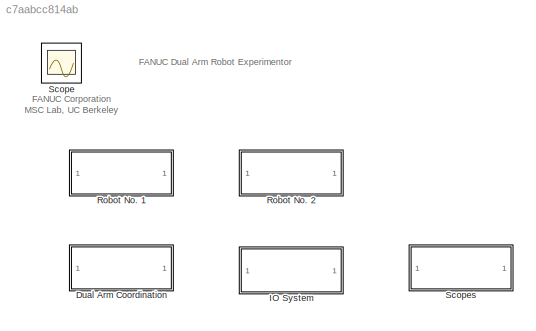
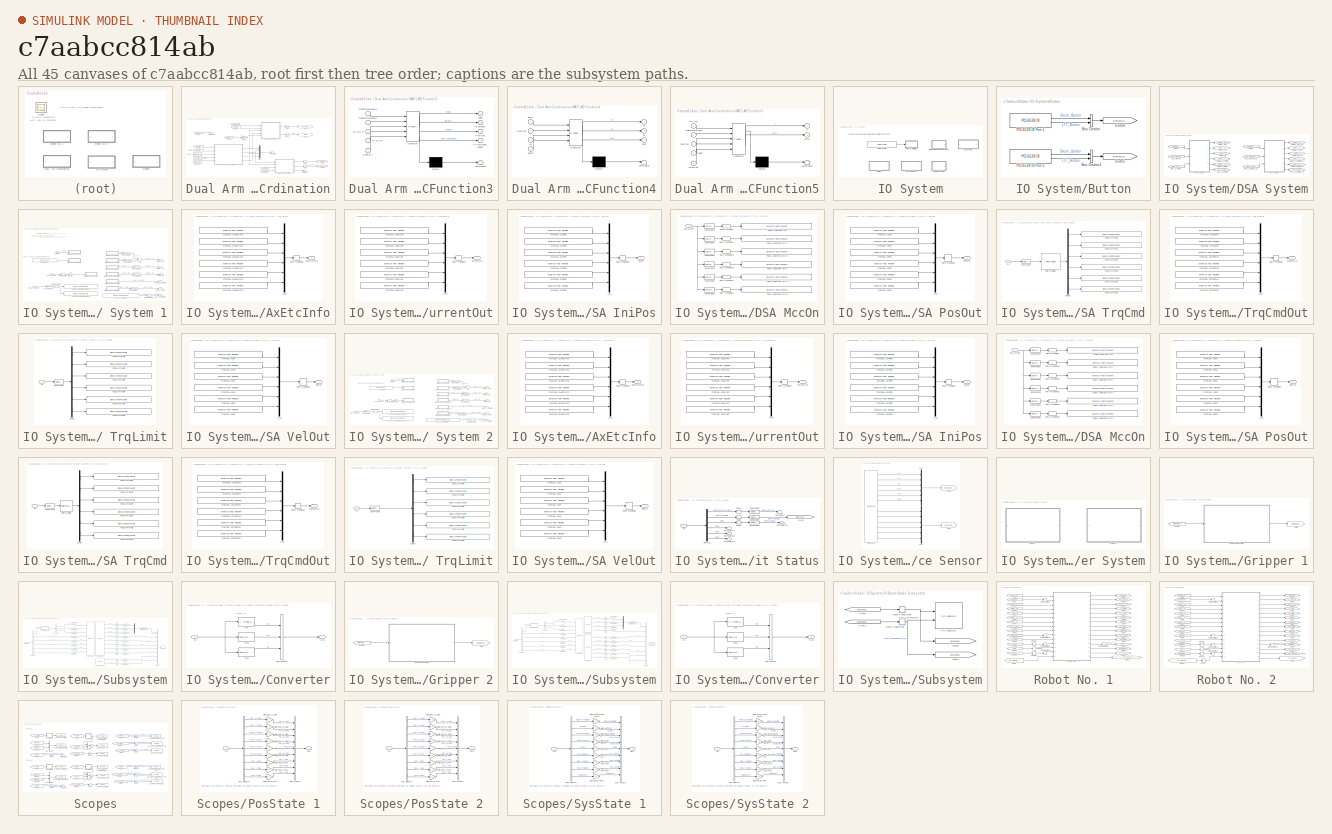
[diagram: thumbnail index - all 45 canvases of the model, root first then tree order]
MODEL slx_c7aabcc814ab
KIND model
CONFIG AbsTol = 1e-5
CONFIG FixedStep = si.SolverTimeStep
CONFIG MaxStep = auto
CONFIG MinStep = auto
CONFIG RelTol = 1e-3
CONFIG SampleTimeConstraint = Unconstrained
CONFIG Solver = FixedStepDiscrete
CONFIG SolverMode = Auto
CONFIG SolverName = FixedStepDiscrete
CONFIG StartTime = 0.0
CONFIG StopTime = inf
BLOCK [SubSystem] Dual Arm Coordination
  Ports = []
  RequestExecContextInheritance = off
  Variant = off
BLOCK [Constant] Dual Arm Coordination/BASE_Z
  Value = si.BASE_Z
BLOCK [Constant] Dual Arm Coordination/Constant
  Value = si.d0
BLOCK [Constant] Dual Arm Coordination/Constant1
  Value = si.dstart
BLOCK [From] Dual Arm Coordination/From1
  GotoTag = JointPos_deg_d2
  TagVisibility = global
BLOCK [From] Dual Arm Coordination/From29
  GotoTag = TransformationM
  TagVisibility = global
BLOCK [From] Dual Arm Coordination/From30
  GotoTag = TransformationM
  TagVisibility = global
BLOCK [From] Dual Arm Coordination/From31
  GotoTag = JointPos_deg
  TagVisibility = global
BLOCK [From] Dual Arm Coordination/From36
  GotoTag = TransformationM_d2
  TagVisibility = global
BLOCK [Gain] Dual Arm Coordination/Gain19
  Gain = pi/180
  OutDataTypeStr = Inherit: Inherit via internal rule
  ParamDataTypeStr = Inherit: Inherit via internal rule
  SaturateOnIntegerOverflow = off
BLOCK [Goto] Dual Arm Coordination/Goto5
  GotoTag = RepulsiveForce1
  TagVisibility = global
BLOCK [Goto] Dual Arm Coordination/Goto6
  GotoTag = RepulsiveForce2
  TagVisibility = global
BLOCK [Goto] Dual Arm Coordination/Goto7
  GotoTag = Jacobian_pa
  TagVisibility = global
BLOCK [Goto] Dual Arm Coordination/Goto8
  GotoTag = DOF
  TagVisibility = global
BLOCK [SubSystem] Dual Arm Coordination/MATLAB Function3
  ErrorFcn = Stateflow.Translate.translate
  PermitHierarchicalResolution = ExplicitOnly
  Ports = [5, 4]
  RequestExecContextInheritance = off
  SFBlockType = MATLAB Function
  TreatAsAtomicUnit = on
  Variant = off
BLOCK [Demux] Dual Arm Coordination/MATLAB Function3/ Demux 
  Outputs = 1
  Ports = [1, 1]
BLOCK [S-Function] Dual Arm Coordination/MATLAB Function3/ SFunction 
  EnableBusSupport = on
  FunctionName = sf_sfun
  PortCounts = [5 5]
  Ports = [5, 5]
  SFunctionDeploymentMode = off
  Tag = Stateflow S-Function LRMate200Experimentor_Dual 41
BLOCK [Terminator] Dual Arm Coordination/MATLAB Function3/ Terminator 
BLOCK [Inport] Dual Arm Coordination/MATLAB Function3/BASE_Z
  IconDisplay = Port number
  Port = 3
BLOCK [Outport] Dual Arm Coordination/MATLAB Function3/CylinGround_indexs
  IconDisplay = Port number
  Port = 4
BLOCK [Outport] Dual Arm Coordination/MATLAB Function3/Distance
  IconDisplay = Port number
  Port = 2
BLOCK [Inport] Dual Arm Coordination/MATLAB Function3/OFFSET
  IconDisplay = Port number
  Port = 5
BLOCK [Outport] Dual Arm Coordination/MATLAB Function3/Position
  IconDisplay = Port number
  Port = 3
BLOCK [Inport] Dual Arm Coordination/MATLAB Function3/RADIUS
  IconDisplay = Port number
  Port = 4
BLOCK [Inport] Dual Arm Coordination/MATLAB Function3/TransformationM1
  IconDisplay = Port number
BLOCK [Inport] Dual Arm Coordination/MATLAB Function3/TransformationM2
  IconDisplay = Port number
  Port = 2
BLOCK [Outport] Dual Arm Coordination/MATLAB Function3/index
  IconDisplay = Port number
BLOCK [SubSystem] Dual Arm Coordination/MATLAB Function4
  ErrorFcn = Stateflow.Translate.translate
  PermitHierarchicalResolution = ExplicitOnly
  Ports = [4, 3]
  RequestExecContextInheritance = off
  SFBlockType = MATLAB Function
  TreatAsAtomicUnit = on
  Variant = off
BLOCK [Demux] Dual Arm Coordination/MATLAB Function4/ Demux 
  Outputs = 1
  Ports = [1, 1]
BLOCK [S-Function] Dual Arm Coordination/MATLAB Function4/ SFunction 
  EnableBusSupport = on
  FunctionName = sf_sfun
  PortCounts = [4 4]
  Ports = [4, 4]
  SFunctionDeploymentMode = off
  Tag = Stateflow S-Function LRMate200Experimentor_Dual 42
BLOCK [Terminator] Dual Arm Coordination/MATLAB Function4/ Terminator 
BLOCK [Outport] Dual Arm Coordination/MATLAB Function4/F1
  IconDisplay = Port number
BLOCK [Outport] Dual Arm Coordination/MATLAB Function4/F2
  IconDisplay = Port number
  Port = 2
BLOCK [Outport] Dual Arm Coordination/MATLAB Function4/Frep
  IconDisplay = Port number
  Port = 3
BLOCK [Inport] Dual Arm Coordination/MATLAB Function4/Position
  IconDisplay = Port number
  Port = 2
BLOCK [Inport] Dual Arm Coordination/MATLAB Function4/d0
  IconDisplay = Port number
  Port = 3
BLOCK [Inport] Dual Arm Coordination/MATLAB Function4/dmin
  IconDisplay = Port number
BLOCK [Inport] Dual Arm Coordination/MATLAB Function4/dstart
  IconDisplay = Port number
  Port = 4
BLOCK [SubSystem] Dual Arm Coordination/MATLAB Function5
  ErrorFcn = Stateflow.Translate.translate
  PermitHierarchicalResolution = ExplicitOnly
  Ports = [5, 2]
  RequestExecContextInheritance = off
  SFBlockType = MATLAB Function
  TreatAsAtomicUnit = on
  Variant = off
BLOCK [Demux] Dual Arm Coordination/MATLAB Function5/ Demux 
  Outputs = 1
  Ports = [1, 1]
BLOCK [S-Function] Dual Arm Coordination/MATLAB Function5/ SFunction 
  EnableBusSupport = on
  FunctionName = sf_sfun
  PortCounts = [5 3]
  Ports = [5, 3]
  SFunctionDeploymentMode = off
  Tag = Stateflow S-Function LRMate200Experimentor_Dual 44
BLOCK [Terminator] Dual Arm Coordination/MATLAB Function5/ Terminator 
BLOCK [Inport] Dual Arm Coordination/MATLAB Function5/DH_full
  IconDisplay = Port number
BLOCK [Outport] Dual Arm Coordination/MATLAB Function5/DOF
  IconDisplay = Port number
  Port = 2
BLOCK [Inport] Dual Arm Coordination/MATLAB Function5/Index
  IconDisplay = Port number
  Port = 4
BLOCK [Outport] Dual Arm Coordination/MATLAB Function5/J
  IconDisplay = Port number
BLOCK [Inport] Dual Arm Coordination/MATLAB Function5/JointPos
  IconDisplay = Port number
  Port = 5
BLOCK [Inport] Dual Arm Coordination/MATLAB Function5/Position
  IconDisplay = Port number
  Port = 3
BLOCK [Inport] Dual Arm Coordination/MATLAB Function5/TransformationM
  IconDisplay = Port number
  Port = 2
BLOCK [Mux] Dual Arm Coordination/Mux7
  DisplayOption = bar
  Ports = [4, 1]
BLOCK [Constant] Dual Arm Coordination/OFFSET
  Value = si.OFFSET
BLOCK [Constant] Dual Arm Coordination/PanelREC3
  Value = si.DH
BLOCK [Constant] Dual Arm Coordination/RADIUS
  Value = si.RADIUS
BLOCK [RateTransition] Dual Arm Coordination/Rate3
  OutPortSampleTime = si.itp
BLOCK [RateTransition] Dual Arm Coordination/Rate4
  OutPortSampleTime = si.itp
BLOCK [RateTransition] Dual Arm Coordination/Rate5
  OutPortSampleTime = si.itp
BLOCK [RateTransition] Dual Arm Coordination/Rate6
  OutPortSampleTime = si.itp
BLOCK [Terminator] Dual Arm Coordination/Terminator1
BLOCK [Terminator] Dual Arm Coordination/Terminator6
BLOCK [Terminator] Dual Arm Coordination/Terminator7
BLOCK [SubSystem] IO System
  Ports = []
  RequestExecContextInheritance = off
  Variant = off
BLOCK [SubSystem] IO System/Button
  Ports = []
  RequestExecContextInheritance = off
  Variant = off
BLOCK [BusCreator] IO System/Button/Bus Creator
  DisplayOption = bar
  InheritFromInputs = on
  Inputs = 2
  Ports = [2, 1]
BLOCK [BusCreator] IO System/Button/Bus Creator1
  DisplayOption = bar
  InheritFromInputs = on
  Inputs = 2
  Ports = [2, 1]
BLOCK [Goto] IO System/Button/Goto1
  GotoTag = ButtonState_d2
  TagVisibility = global
BLOCK [Goto] IO System/Button/Goto9
  GotoTag = ButtonState
  TagVisibility = global
BLOCK [Reference] IO System/Button/PCI-6528 DI Port 1  REF=xpcnilib/Digital
Input/PCI-6528 DI
  Ports = [0, 2]
  SourceBlock = xpcnilib/Digital\nInput/PCI-6528 DI
  SourceType = dinipci6528
BLOCK [Reference] IO System/Button/PCI-6528 DI Port 2  REF=xpcnilib/Digital
Input/PCI-6528 DI
  Ports = [0, 2]
  SourceBlock = xpcnilib/Digital\nInput/PCI-6528 DI
  SourceType = dinipci6528
BLOCK [SubSystem] IO System/DSA System
  Ports = []
  RequestExecContextInheritance = off
  Variant = off
BLOCK [SubSystem] IO System/DSA System/DSA System 1
  MinAlgLoopOccurrences = on
  Ports = [3, 6]
  RequestExecContextInheritance = off
  Variant = off
BLOCK [Sum] IO System/DSA System/DSA System 1/Add
  InputSameDT = off
  OutDataTypeStr = Inherit: Inherit via internal rule
  Ports = [2, 1]
  SaturateOnIntegerOverflow = off
BLOCK [Constant] IO System/DSA System/DSA System 1/Constant
  SampleTime = si.etsv
  Value = [10000 10000 10000 10000 10000 10000]
BLOCK [DataTypeConversion] IO System/DSA System/DSA System 1/Conversion
  OutDataTypeStr = double
  RndMeth = Floor
  SaturateOnIntegerOverflow = off
BLOCK [DataTypeConversion] IO System/DSA System/DSA System 1/Conversion1
  OutDataTypeStr = double
  RndMeth = Floor
  SaturateOnIntegerOverflow = off
BLOCK [DataTypeConversion] IO System/DSA System/DSA System 1/Conversion2
  OutDataTypeStr = double
  RndMeth = Floor
  SaturateOnIntegerOverflow = off
BLOCK [DataTypeConversion] IO System/DSA System/DSA System 1/Conversion3
  OutDataTypeStr = double
  RndMeth = Floor
  SaturateOnIntegerOverflow = off
BLOCK [DataTypeConversion] IO System/DSA System/DSA System 1/Conversion4
  OutDataTypeStr = uint16
  RndMeth = Floor
  SaturateOnIntegerOverflow = off
BLOCK [DataTypeConversion] IO System/DSA System/DSA System 1/Conversion5
  OutDataTypeStr = double
  RndMeth = Floor
  SaturateOnIntegerOverflow = off
BLOCK [Inport] IO System/DSA System/DSA System 1/DSA_MccOn
  IconDisplay = Port number
  Port = 2
BLOCK [Outport] IO System/DSA System/DSA System 1/DSA_SystemInfo
  IconDisplay = Port number
  Port = 6
BLOCK [Reference] IO System/DSA System/DSA System 1/DSA_SystemInfo1  REF=xpcethercatlib/EtherCAT PDO Receive
  Ports = [0, 1]
  Priority = 2
  SourceBlock = xpcethercatlib/EtherCAT PDO Receive
  SourceType = xpcethercat_rx_var
BLOCK [SubSystem] IO System/DSA System/DSA System 1/EtherCAT DSA AxEtcInfo
  Ports = [0, 1]
  RequestExecContextInheritance = off
  Variant = off
BLOCK [Outport] IO System/DSA System/DSA System 1/EtherCAT DSA AxEtcInfo/AxEtcInfoOut
  IconDisplay = Port number
BLOCK [Reference] IO System/DSA System/DSA System 1/EtherCAT DSA AxEtcInfo/FromDSA J1AxEtcInfo  REF=xpcethercatlib/EtherCAT PDO Receive
  Ports = [0, 1]
  Priority = 2
  SourceBlock = xpcethercatlib/EtherCAT PDO Receive
  SourceType = xpcethercat_rx_var
BLOCK [Reference] IO System/DSA System/DSA System 1/EtherCAT DSA AxEtcInfo/FromDSA J2AxEtcInfo  REF=xpcethercatlib/EtherCAT PDO Receive
  Ports = [0, 1]
  Priority = 2
  SourceBlock = xpcethercatlib/EtherCAT PDO Receive
  SourceType = xpcethercat_rx_var
BLOCK [Reference] IO System/DSA System/DSA System 1/EtherCAT DSA AxEtcInfo/FromDSA J3AxEtcInfo  REF=xpcethercatlib/EtherCAT PDO Receive
  Ports = [0, 1]
  Priority = 2
  SourceBlock = xpcethercatlib/EtherCAT PDO Receive
  SourceType = xpcethercat_rx_var
BLOCK [Reference] IO System/DSA System/DSA System 1/EtherCAT DSA AxEtcInfo/FromDSA J4AxEtcInfo  REF=xpcethercatlib/EtherCAT PDO Receive
  Ports = [0, 1]
  Priority = 2
  SourceBlock = xpcethercatlib/EtherCAT PDO Receive
  SourceType = xpcethercat_rx_var
BLOCK [Reference] IO System/DSA System/DSA System 1/EtherCAT DSA AxEtcInfo/FromDSA J5AxEtcInfo  REF=xpcethercatlib/EtherCAT PDO Receive
  Ports = [0, 1]
  Priority = 2
  SourceBlock = xpcethercatlib/EtherCAT PDO Receive
  SourceType = xpcethercat_rx_var
BLOCK [Reference] IO System/DSA System/DSA System 1/EtherCAT DSA AxEtcInfo/FromDSA J6AxEtcInfo  REF=xpcethercatlib/EtherCAT PDO Receive
  Ports = [0, 1]
  Priority = 2
  SourceBlock = xpcethercatlib/EtherCAT PDO Receive
  SourceType = xpcethercat_rx_var
BLOCK [Mux] IO System/DSA System/DSA System 1/EtherCAT DSA AxEtcInfo/Mux
  DisplayOption = bar
  Inputs = 6
  Ports = [6, 1]
BLOCK [RateTransition] IO System/DSA System/DSA System 1/EtherCAT DSA AxEtcInfo/Rate Transition
  OutPortSampleTime = si.tsv
BLOCK [SubSystem] IO System/DSA System/DSA System 1/EtherCAT DSA CurrentOut
  Ports = [0, 1]
  RequestExecContextInheritance = off
  Variant = off
BLOCK [Outport] IO System/DSA System/DSA System 1/EtherCAT DSA CurrentOut/CurrentOut
  IconDisplay = Port number
BLOCK [Reference] IO System/DSA System/DSA System 1/EtherCAT DSA CurrentOut/FromDSA J1Current  REF=xpcethercatlib/EtherCAT PDO Receive
  Ports = [0, 1]
  Priority = 2
  SourceBlock = xpcethercatlib/EtherCAT PDO Receive
  SourceType = xpcethercat_rx_var
BLOCK [Reference] IO System/DSA System/DSA System 1/EtherCAT DSA CurrentOut/FromDSA J2Current  REF=xpcethercatlib/EtherCAT PDO Receive
  Ports = [0, 1]
  Priority = 2
  SourceBlock = xpcethercatlib/EtherCAT PDO Receive
  SourceType = xpcethercat_rx_var
BLOCK [Reference] IO System/DSA System/DSA System 1/EtherCAT DSA CurrentOut/FromDSA J3Current  REF=xpcethercatlib/EtherCAT PDO Receive
  Ports = [0, 1]
  Priority = 2
  SourceBlock = xpcethercatlib/EtherCAT PDO Receive
  SourceType = xpcethercat_rx_var
BLOCK [Reference] IO System/DSA System/DSA System 1/EtherCAT DSA CurrentOut/FromDSA J4Current  REF=xpcethercatlib/EtherCAT PDO Receive
  Ports = [0, 1]
  Priority = 2
  SourceBlock = xpcethercatlib/EtherCAT PDO Receive
  SourceType = xpcethercat_rx_var
BLOCK [Reference] IO System/DSA System/DSA System 1/EtherCAT DSA CurrentOut/FromDSA J5Current  REF=xpcethercatlib/EtherCAT PDO Receive
  Ports = [0, 1]
  Priority = 2
  SourceBlock = xpcethercatlib/EtherCAT PDO Receive
  SourceType = xpcethercat_rx_var
BLOCK [Reference] IO System/DSA System/DSA System 1/EtherCAT DSA CurrentOut/FromDSA J6Current  REF=xpcethercatlib/EtherCAT PDO Receive
  Ports = [0, 1]
  Priority = 2
  SourceBlock = xpcethercatlib/EtherCAT PDO Receive
  SourceType = xpcethercat_rx_var
BLOCK [Mux] IO System/DSA System/DSA System 1/EtherCAT DSA CurrentOut/Mux
  DisplayOption = bar
  Inputs = 6
  Ports = [6, 1]
BLOCK [RateTransition] IO System/DSA System/DSA System 1/EtherCAT DSA CurrentOut/Rate Transition
  OutPortSampleTime = si.tsv
BLOCK [SubSystem] IO System/DSA System/DSA System 1/EtherCAT DSA IniPos
  Ports = [0, 1]
  RequestExecContextInheritance = off
  Variant = off
BLOCK [Reference] IO System/DSA System/DSA System 1/EtherCAT DSA IniPos/FromDSA J1IniPos  REF=xpcethercatlib/EtherCAT PDO Receive
  Ports = [0, 1]
  Priority = 2
  SourceBlock = xpcethercatlib/EtherCAT PDO Receive
  SourceType = xpcethercat_rx_var
BLOCK [Reference] IO System/DSA System/DSA System 1/EtherCAT DSA IniPos/FromDSA J2IniPos  REF=xpcethercatlib/EtherCAT PDO Receive
  Ports = [0, 1]
  Priority = 2
  SourceBlock = xpcethercatlib/EtherCAT PDO Receive
  SourceType = xpcethercat_rx_var
BLOCK [Reference] IO System/DSA System/DSA System 1/EtherCAT DSA IniPos/FromDSA J3IniPos  REF=xpcethercatlib/EtherCAT PDO Receive
  Ports = [0, 1]
  Priority = 2
  SourceBlock = xpcethercatlib/EtherCAT PDO Receive
  SourceType = xpcethercat_rx_var
BLOCK [Reference] IO System/DSA System/DSA System 1/EtherCAT DSA IniPos/FromDSA J4IniPos  REF=xpcethercatlib/EtherCAT PDO Receive
  Ports = [0, 1]
  Priority = 2
  SourceBlock = xpcethercatlib/EtherCAT PDO Receive
  SourceType = xpcethercat_rx_var
BLOCK [Reference] IO System/DSA System/DSA System 1/EtherCAT DSA IniPos/FromDSA J5IniPos  REF=xpcethercatlib/EtherCAT PDO Receive
  Ports = [0, 1]
  Priority = 2
  SourceBlock = xpcethercatlib/EtherCAT PDO Receive
  SourceType = xpcethercat_rx_var
BLOCK [Reference] IO System/DSA System/DSA System 1/EtherCAT DSA IniPos/FromDSA J6IniPos  REF=xpcethercatlib/EtherCAT PDO Receive
  Ports = [0, 1]
  Priority = 2
  SourceBlock = xpcethercatlib/EtherCAT PDO Receive
  SourceType = xpcethercat_rx_var
BLOCK [Mux] IO System/DSA System/DSA System 1/EtherCAT DSA IniPos/Mux
  DisplayOption = bar
  Inputs = 6
  Ports = [6, 1]
BLOCK [RateTransition] IO System/DSA System/DSA System 1/EtherCAT DSA IniPos/Rate Transition
  OutPortSampleTime = si.tsv
BLOCK [Outport] IO System/DSA System/DSA System 1/EtherCAT DSA IniPos/ini_pos
  IconDisplay = Port number
BLOCK [SubSystem] IO System/DSA System/DSA System 1/EtherCAT DSA MccOn
  Ports = [1]
  RequestExecContextInheritance = off
  Variant = off
BLOCK [DataTypeConversion] IO System/DSA System/DSA System 1/EtherCAT DSA MccOn/Conversion1
  RndMeth = Floor
  SaturateOnIntegerOverflow = off
BLOCK [DataTypeConversion] IO System/DSA System/DSA System 1/EtherCAT DSA MccOn/Conversion2
  RndMeth = Floor
  SaturateOnIntegerOverflow = off
BLOCK [DataTypeConversion] IO System/DSA System/DSA System 1/EtherCAT DSA MccOn/Conversion3
  RndMeth = Floor
  SaturateOnIntegerOverflow = off
BLOCK [DataTypeConversion] IO System/DSA System/DSA System 1/EtherCAT DSA MccOn/Conversion4
  RndMeth = Floor
  SaturateOnIntegerOverflow = off
BLOCK [DataTypeConversion] IO System/DSA System/DSA System 1/EtherCAT DSA MccOn/Conversion5
  RndMeth = Floor
  SaturateOnIntegerOverflow = off
BLOCK [DataTypeConversion] IO System/DSA System/DSA System 1/EtherCAT DSA MccOn/Conversion6
  RndMeth = Floor
  SaturateOnIntegerOverflow = off
BLOCK [Inport] IO System/DSA System/DSA System 1/EtherCAT DSA MccOn/DSA_MccOn
  IconDisplay = Port number
BLOCK [RateTransition] IO System/DSA System/DSA System 1/EtherCAT DSA MccOn/Rate Transition
BLOCK [RateTransition] IO System/DSA System/DSA System 1/EtherCAT DSA MccOn/Rate Transition1
BLOCK [RateTransition] IO System/DSA System/DSA System 1/EtherCAT DSA MccOn/Rate Transition2
BLOCK [RateTransition] IO System/DSA System/DSA System 1/EtherCAT DSA MccOn/Rate Transition3
BLOCK [RateTransition] IO System/DSA System/DSA System 1/EtherCAT DSA MccOn/Rate Transition4
BLOCK [RateTransition] IO System/DSA System/DSA System 1/EtherCAT DSA MccOn/Rate Transition5
BLOCK [Reference] IO System/DSA System/DSA System 1/EtherCAT DSA MccOn/ToDSA J1Setting Info   REF=xpcethercatlib/EtherCAT PDO Transmit 
  Ports = [1]
  Priority = 3
  SourceBlock = xpcethercatlib/EtherCAT PDO Transmit
  SourceType = xpcethercat_tx_var
BLOCK [Reference] IO System/DSA System/DSA System 1/EtherCAT DSA MccOn/ToDSA J2Setting Info 1  REF=xpcethercatlib/EtherCAT PDO Transmit 
  Ports = [1]
  Priority = 3
  SourceBlock = xpcethercatlib/EtherCAT PDO Transmit
  SourceType = xpcethercat_tx_var
BLOCK [Reference] IO System/DSA System/DSA System 1/EtherCAT DSA MccOn/ToDSA J3Setting Info 2  REF=xpcethercatlib/EtherCAT PDO Transmit 
  Ports = [1]
  Priority = 3
  SourceBlock = xpcethercatlib/EtherCAT PDO Transmit
  SourceType = xpcethercat_tx_var
BLOCK [Reference] IO System/DSA System/DSA System 1/EtherCAT DSA MccOn/ToDSA J4Setting Info 3  REF=xpcethercatlib/EtherCAT PDO Transmit 
  Ports = [1]
  Priority = 3
  SourceBlock = xpcethercatlib/EtherCAT PDO Transmit
  SourceType = xpcethercat_tx_var
BLOCK [Reference] IO System/DSA System/DSA System 1/EtherCAT DSA MccOn/ToDSA J5Setting Info 4  REF=xpcethercatlib/EtherCAT PDO Transmit 
  Ports = [1]
  Priority = 3
  SourceBlock = xpcethercatlib/EtherCAT PDO Transmit
  SourceType = xpcethercat_tx_var
BLOCK [Reference] IO System/DSA System/DSA System 1/EtherCAT DSA MccOn/ToDSA J6Setting Info 5  REF=xpcethercatlib/EtherCAT PDO Transmit 
  Ports = [1]
  Priority = 3
  SourceBlock = xpcethercatlib/EtherCAT PDO Transmit
  SourceType = xpcethercat_tx_var
BLOCK [SubSystem] IO System/DSA System/DSA System 1/EtherCAT DSA PosOut
  Ports = [0, 1]
  RequestExecContextInheritance = off
  Variant = off
BLOCK [Reference] IO System/DSA System/DSA System 1/EtherCAT DSA PosOut/FromDSA J1Pos  REF=xpcethercatlib/EtherCAT PDO Receive
  Ports = [0, 1]
  Priority = 2
  SourceBlock = xpcethercatlib/EtherCAT PDO Receive
  SourceType = xpcethercat_rx_var
BLOCK [Reference] IO System/DSA System/DSA System 1/EtherCAT DSA PosOut/FromDSA J2Pos  REF=xpcethercatlib/EtherCAT PDO Receive
  Ports = [0, 1]
  Priority = 2
  SourceBlock = xpcethercatlib/EtherCAT PDO Receive
  SourceType = xpcethercat_rx_var
BLOCK [Reference] IO System/DSA System/DSA System 1/EtherCAT DSA PosOut/FromDSA J3Pos  REF=xpcethercatlib/EtherCAT PDO Receive
  Ports = [0, 1]
  Priority = 2
  SourceBlock = xpcethercatlib/EtherCAT PDO Receive
  SourceType = xpcethercat_rx_var
BLOCK [Reference] IO System/DSA System/DSA System 1/EtherCAT DSA PosOut/FromDSA J4Pos  REF=xpcethercatlib/EtherCAT PDO Receive
  Ports = [0, 1]
  Priority = 2
  SourceBlock = xpcethercatlib/EtherCAT PDO Receive
  SourceType = xpcethercat_rx_var
BLOCK [Reference] IO System/DSA System/DSA System 1/EtherCAT DSA PosOut/FromDSA J5Pos  REF=xpcethercatlib/EtherCAT PDO Receive
  Ports = [0, 1]
  Priority = 2
  SourceBlock = xpcethercatlib/EtherCAT PDO Receive
  SourceType = xpcethercat_rx_var
BLOCK [Reference] IO System/DSA System/DSA System 1/EtherCAT DSA PosOut/FromDSA J6Pos  REF=xpcethercatlib/EtherCAT PDO Receive
  Ports = [0, 1]
  Priority = 2
  SourceBlock = xpcethercatlib/EtherCAT PDO Receive
  SourceType = xpcethercat_rx_var
BLOCK [Mux] IO System/DSA System/DSA System 1/EtherCAT DSA PosOut/Mux
  DisplayOption = bar
  Inputs = 6
  Ports = [6, 1]
BLOCK [Outport] IO System/DSA System/DSA System 1/EtherCAT DSA PosOut/PosOut
  IconDisplay = Port number
BLOCK [RateTransition] IO System/DSA System/DSA System 1/EtherCAT DSA PosOut/Rate Transition
  OutPortSampleTime = si.tsv
BLOCK [SubSystem] IO System/DSA System/DSA System 1/EtherCAT DSA TrqCmd
  Ports = [1]
  RequestExecContextInheritance = off
  Variant = off
BLOCK [DataTypeConversion] IO System/DSA System/DSA System 1/EtherCAT DSA TrqCmd/Conversion7
  RndMeth = Floor
  SaturateOnIntegerOverflow = off
BLOCK [Demux] IO System/DSA System/DSA System 1/EtherCAT DSA TrqCmd/Demux
  DisplayOption = bar
  Outputs = 6
  Ports = [1, 6]
BLOCK [Inport] IO System/DSA System/DSA System 1/EtherCAT DSA TrqCmd/In1
  IconDisplay = Port number
BLOCK [RateTransition] IO System/DSA System/DSA System 1/EtherCAT DSA TrqCmd/Rate Transition6
BLOCK [Reference] IO System/DSA System/DSA System 1/EtherCAT DSA TrqCmd/ToDSA J1TrqCmd   REF=xpcethercatlib/EtherCAT PDO Transmit 
  Ports = [1]
  Priority = 3
  SourceBlock = xpcethercatlib/EtherCAT PDO Transmit
  SourceType = xpcethercat_tx_var
BLOCK [Reference] IO System/DSA System/DSA System 1/EtherCAT DSA TrqCmd/ToDSA J2TrqCmd  REF=xpcethercatlib/EtherCAT PDO Transmit 
  Ports = [1]
  Priority = 3
  SourceBlock = xpcethercatlib/EtherCAT PDO Transmit
  SourceType = xpcethercat_tx_var
BLOCK [Reference] IO System/DSA System/DSA System 1/EtherCAT DSA TrqCmd/ToDSA J3TrqCmd  REF=xpcethercatlib/EtherCAT PDO Transmit 
  Ports = [1]
  Priority = 3
  SourceBlock = xpcethercatlib/EtherCAT PDO Transmit
  SourceType = xpcethercat_tx_var
BLOCK [Reference] IO System/DSA System/DSA System 1/EtherCAT DSA TrqCmd/ToDSA J4TrqCmd  REF=xpcethercatlib/EtherCAT PDO Transmit 
  Ports = [1]
  Priority = 3
  SourceBlock = xpcethercatlib/EtherCAT PDO Transmit
  SourceType = xpcethercat_tx_var
BLOCK [Reference] IO System/DSA System/DSA System 1/EtherCAT DSA TrqCmd/ToDSA J5TrqCmd  REF=xpcethercatlib/EtherCAT PDO Transmit 
  Ports = [1]
  Priority = 3
  SourceBlock = xpcethercatlib/EtherCAT PDO Transmit
  SourceType = xpcethercat_tx_var
BLOCK [Reference] IO System/DSA System/DSA System 1/EtherCAT DSA TrqCmd/ToDSA J6TrqCmd  REF=xpcethercatlib/EtherCAT PDO Transmit 
  Ports = [1]
  Priority = 3
  SourceBlock = xpcethercatlib/EtherCAT PDO Transmit
  SourceType = xpcethercat_tx_var
BLOCK [SubSystem] IO System/DSA System/DSA System 1/EtherCAT DSA TrqCmdOut
  Ports = [0, 1]
  RequestExecContextInheritance = off
  Variant = off
BLOCK [Reference] IO System/DSA System/DSA System 1/EtherCAT DSA TrqCmdOut/FromDSA J1TrqCmd  REF=xpcethercatlib/EtherCAT PDO Receive
  Ports = [0, 1]
  Priority = 2
  SourceBlock = xpcethercatlib/EtherCAT PDO Receive
  SourceType = xpcethercat_rx_var
BLOCK [Reference] IO System/DSA System/DSA System 1/EtherCAT DSA TrqCmdOut/FromDSA J2TrqCmd  REF=xpcethercatlib/EtherCAT PDO Receive
  Ports = [0, 1]
  Priority = 2
  SourceBlock = xpcethercatlib/EtherCAT PDO Receive
  SourceType = xpcethercat_rx_var
BLOCK [Reference] IO System/DSA System/DSA System 1/EtherCAT DSA TrqCmdOut/FromDSA J3TrqCmd2  REF=xpcethercatlib/EtherCAT PDO Receive
  Ports = [0, 1]
  Priority = 2
  SourceBlock = xpcethercatlib/EtherCAT PDO Receive
  SourceType = xpcethercat_rx_var
BLOCK [Reference] IO System/DSA System/DSA System 1/EtherCAT DSA TrqCmdOut/FromDSA J4TrqCmd3  REF=xpcethercatlib/EtherCAT PDO Receive
  Ports = [0, 1]
  Priority = 2
  SourceBlock = xpcethercatlib/EtherCAT PDO Receive
  SourceType = xpcethercat_rx_var
BLOCK [Reference] IO System/DSA System/DSA System 1/EtherCAT DSA TrqCmdOut/FromDSA J5TrqCmd4  REF=xpcethercatlib/EtherCAT PDO Receive
  Ports = [0, 1]
  Priority = 2
  SourceBlock = xpcethercatlib/EtherCAT PDO Receive
  SourceType = xpcethercat_rx_var
BLOCK [Reference] IO System/DSA System/DSA System 1/EtherCAT DSA TrqCmdOut/FromDSA J6TrqCmd5  REF=xpcethercatlib/EtherCAT PDO Receive
  Ports = [0, 1]
  Priority = 2
  SourceBlock = xpcethercatlib/EtherCAT PDO Receive
  SourceType = xpcethercat_rx_var
BLOCK [Mux] IO System/DSA System/DSA System 1/EtherCAT DSA TrqCmdOut/Mux
  DisplayOption = bar
  Inputs = 6
  Ports = [6, 1]
BLOCK [RateTransition] IO System/DSA System/DSA System 1/EtherCAT DSA TrqCmdOut/Rate Transition
  OutPortSampleTime = si.tsv
BLOCK [Outport] IO System/DSA System/DSA System 1/EtherCAT DSA TrqCmdOut/TrqCmdOut
  IconDisplay = Port number
BLOCK [SubSystem] IO System/DSA System/DSA System 1/EtherCAT DSA TrqLimit
  Ports = [1]
  RequestExecContextInheritance = off
  Variant = off
BLOCK [DataTypeConversion] IO System/DSA System/DSA System 1/EtherCAT DSA TrqLimit/Conversion7
  RndMeth = Floor
  SaturateOnIntegerOverflow = off
BLOCK [Demux] IO System/DSA System/DSA System 1/EtherCAT DSA TrqLimit/Demux
  DisplayOption = bar
  Outputs = 6
  Ports = [1, 6]
BLOCK [Inport] IO System/DSA System/DSA System 1/EtherCAT DSA TrqLimit/In1
  IconDisplay = Port number
BLOCK [Reference] IO System/DSA System/DSA System 1/EtherCAT DSA TrqLimit/ToDSA J1TrqLimit   REF=xpcethercatlib/EtherCAT PDO Transmit 
  Ports = [1]
  Priority = 3
  SourceBlock = xpcethercatlib/EtherCAT PDO Transmit
  SourceType = xpcethercat_tx_var
BLOCK [Reference] IO System/DSA System/DSA System 1/EtherCAT DSA TrqLimit/ToDSA J2TrqLimit  REF=xpcethercatlib/EtherCAT PDO Transmit 
  Ports = [1]
  Priority = 3
  SourceBlock = xpcethercatlib/EtherCAT PDO Transmit
  SourceType = xpcethercat_tx_var
BLOCK [Reference] IO System/DSA System/DSA System 1/EtherCAT DSA TrqLimit/ToDSA J3TrqLimit  REF=xpcethercatlib/EtherCAT PDO Transmit 
  Ports = [1]
  Priority = 3
  SourceBlock = xpcethercatlib/EtherCAT PDO Transmit
  SourceType = xpcethercat_tx_var
BLOCK [Reference] IO System/DSA System/DSA System 1/EtherCAT DSA TrqLimit/ToDSA J4TrqLimit  REF=xpcethercatlib/EtherCAT PDO Transmit 
  Ports = [1]
  Priority = 3
  SourceBlock = xpcethercatlib/EtherCAT PDO Transmit
  SourceType = xpcethercat_tx_var
BLOCK [Reference] IO System/DSA System/DSA System 1/EtherCAT DSA TrqLimit/ToDSA J5TrqLimit  REF=xpcethercatlib/EtherCAT PDO Transmit 
  Ports = [1]
  Priority = 3
  SourceBlock = xpcethercatlib/EtherCAT PDO Transmit
  SourceType = xpcethercat_tx_var
BLOCK [Reference] IO System/DSA System/DSA System 1/EtherCAT DSA TrqLimit/ToDSA J6TrqLimit  REF=xpcethercatlib/EtherCAT PDO Transmit 
  Ports = [1]
  Priority = 3
  SourceBlock = xpcethercatlib/EtherCAT PDO Transmit
  SourceType = xpcethercat_tx_var
BLOCK [SubSystem] IO System/DSA System/DSA System 1/EtherCAT DSA VelOut
  Ports = [0, 1]
  RequestExecContextInheritance = off
  Variant = off
BLOCK [Reference] IO System/DSA System/DSA System 1/EtherCAT DSA VelOut/FromDSA J1Vel  REF=xpcethercatlib/EtherCAT PDO Receive
  Ports = [0, 1]
  Priority = 2
  SourceBlock = xpcethercatlib/EtherCAT PDO Receive
  SourceType = xpcethercat_rx_var
BLOCK [Reference] IO System/DSA System/DSA System 1/EtherCAT DSA VelOut/FromDSA J2Vel  REF=xpcethercatlib/EtherCAT PDO Receive
  Ports = [0, 1]
  Priority = 2
  SourceBlock = xpcethercatlib/EtherCAT PDO Receive
  SourceType = xpcethercat_rx_var
BLOCK [Reference] IO System/DSA System/DSA System 1/EtherCAT DSA VelOut/FromDSA J3Vel  REF=xpcethercatlib/EtherCAT PDO Receive
  Ports = [0, 1]
  Priority = 2
  SourceBlock = xpcethercatlib/EtherCAT PDO Receive
  SourceType = xpcethercat_rx_var
BLOCK [Reference] IO System/DSA System/DSA System 1/EtherCAT DSA VelOut/FromDSA J4Vel  REF=xpcethercatlib/EtherCAT PDO Receive
  Ports = [0, 1]
  Priority = 2
  SourceBlock = xpcethercatlib/EtherCAT PDO Receive
  SourceType = xpcethercat_rx_var
BLOCK [Reference] IO System/DSA System/DSA System 1/EtherCAT DSA VelOut/FromDSA J5Vel  REF=xpcethercatlib/EtherCAT PDO Receive
  Ports = [0, 1]
  Priority = 2
  SourceBlock = xpcethercatlib/EtherCAT PDO Receive
  SourceType = xpcethercat_rx_var
BLOCK [Reference] IO System/DSA System/DSA System 1/EtherCAT DSA VelOut/FromDSA J6Vel  REF=xpcethercatlib/EtherCAT PDO Receive
  Ports = [0, 1]
  Priority = 2
  SourceBlock = xpcethercatlib/EtherCAT PDO Receive
  SourceType = xpcethercat_rx_var
BLOCK [Mux] IO System/DSA System/DSA System 1/EtherCAT DSA VelOut/Mux
  DisplayOption = bar
  Inputs = 6
  Ports = [6, 1]
BLOCK [RateTransition] IO System/DSA System/DSA System 1/EtherCAT DSA VelOut/Rate Transition
  OutPortSampleTime = si.tsv
BLOCK [Outport] IO System/DSA System/DSA System 1/EtherCAT DSA VelOut/VelOut
  IconDisplay = Port number
BLOCK [Memory] IO System/DSA System/DSA System 1/Memory
BLOCK [RateTransition] IO System/DSA System/DSA System 1/Rate Transition
BLOCK [RateTransition] IO System/DSA System/DSA System 1/Rate Transition1
  OutPortSampleTime = si.tsv
BLOCK [RateTransition] IO System/DSA System/DSA System 1/Rate Transition2
BLOCK [Reference] IO System/DSA System/DSA System 1/To  DSA SystemInfo2 On Box2  REF=xpcethercatlib/EtherCAT PDO Transmit 
  Ports = [1]
  Priority = 3
  SourceBlock = xpcethercatlib/EtherCAT PDO Transmit
  SourceType = xpcethercat_tx_var
BLOCK [Reference] IO System/DSA System/DSA System 1/To DSA SystemInfo2 On Box1  REF=xpcethercatlib/EtherCAT PDO Transmit 
  Ports = [1]
  Priority = 3
  SourceBlock = xpcethercatlib/EtherCAT PDO Transmit
  SourceType = xpcethercat_tx_var
BLOCK [Inport] IO System/DSA System/DSA System 1/TrqCmd
  IconDisplay = Port number
BLOCK [Outport] IO System/DSA System/DSA System 1/outDSA_AxEtcInfo
  IconDisplay = Port number
  Port = 4
BLOCK [Outport] IO System/DSA System/DSA System 1/outDSA_current
  IconDisplay = Port number
  Port = 5
BLOCK [Outport] IO System/DSA System/DSA System 1/outDSA_pos
  IconDisplay = Port number
BLOCK [Outport] IO System/DSA System/DSA System 1/outDSA_trq
  IconDisplay = Port number
  Port = 3
BLOCK [Outport] IO System/DSA System/DSA System 1/outDSA_vel
  IconDisplay = Port number
  Port = 2
BLOCK [Inport] IO System/DSA System/DSA System 1/tDSA_SysInfo2
  IconDisplay = Port number
  Port = 3
BLOCK [SubSystem] IO System/DSA System/DSA System 2
  MinAlgLoopOccurrences = on
  Ports = [3, 6]
  RequestExecContextInheritance = off
  TreatAsAtomicUnit = on
  Variant = off
BLOCK [Sum] IO System/DSA System/DSA System 2/Add
  InputSameDT = off
  OutDataTypeStr = Inherit: Inherit via internal rule
  Ports = [2, 1]
  SaturateOnIntegerOverflow = off
BLOCK [Constant] IO System/DSA System/DSA System 2/Constant1
  SampleTime = si.etsv
  Value = [10000 10000 10000 10000 10000 10000]
BLOCK [DataTypeConversion] IO System/DSA System/DSA System 2/Conversion
  OutDataTypeStr = double
  RndMeth = Floor
  SaturateOnIntegerOverflow = off
BLOCK [DataTypeConversion] IO System/DSA System/DSA System 2/Conversion1
  OutDataTypeStr = double
  RndMeth = Floor
  SaturateOnIntegerOverflow = off
BLOCK [DataTypeConversion] IO System/DSA System/DSA System 2/Conversion2
  OutDataTypeStr = double
  RndMeth = Floor
  SaturateOnIntegerOverflow = off
BLOCK [DataTypeConversion] IO System/DSA System/DSA System 2/Conversion3
  OutDataTypeStr = double
  RndMeth = Floor
  SaturateOnIntegerOverflow = off
BLOCK [DataTypeConversion] IO System/DSA System/DSA System 2/Conversion4
  OutDataTypeStr = uint16
  RndMeth = Floor
  SaturateOnIntegerOverflow = off
BLOCK [DataTypeConversion] IO System/DSA System/DSA System 2/Conversion5
  OutDataTypeStr = double
  RndMeth = Floor
  SaturateOnIntegerOverflow = off
BLOCK [Inport] IO System/DSA System/DSA System 2/DSA_MccOn
  IconDisplay = Port number
  Port = 2
BLOCK [Outport] IO System/DSA System/DSA System 2/DSA_SystemInfo
  IconDisplay = Port number
  Port = 6
BLOCK [Reference] IO System/DSA System/DSA System 2/DSA_SystemInfo1  REF=xpcethercatlib/EtherCAT PDO Receive
  Ports = [0, 1]
  Priority = 2
  SourceBlock = xpcethercatlib/EtherCAT PDO Receive
  SourceType = xpcethercat_rx_var
BLOCK [SubSystem] IO System/DSA System/DSA System 2/EtherCAT DSA AxEtcInfo
  Ports = [0, 1]
  RequestExecContextInheritance = off
  Variant = off
BLOCK [Outport] IO System/DSA System/DSA System 2/EtherCAT DSA AxEtcInfo/AxEtcInfoOut
  IconDisplay = Port number
BLOCK [Reference] IO System/DSA System/DSA System 2/EtherCAT DSA AxEtcInfo/FromDSA J1AxEtcInfo  REF=xpcethercatlib/EtherCAT PDO Receive
  Ports = [0, 1]
  Priority = 2
  SourceBlock = xpcethercatlib/EtherCAT PDO Receive
  SourceType = xpcethercat_rx_var
BLOCK [Reference] IO System/DSA System/DSA System 2/EtherCAT DSA AxEtcInfo/FromDSA J2AxEtcInfo  REF=xpcethercatlib/EtherCAT PDO Receive
  Ports = [0, 1]
  Priority = 2
  SourceBlock = xpcethercatlib/EtherCAT PDO Receive
  SourceType = xpcethercat_rx_var
BLOCK [Reference] IO System/DSA System/DSA System 2/EtherCAT DSA AxEtcInfo/FromDSA J3AxEtcInfo  REF=xpcethercatlib/EtherCAT PDO Receive
  Ports = [0, 1]
  Priority = 2
  SourceBlock = xpcethercatlib/EtherCAT PDO Receive
  SourceType = xpcethercat_rx_var
BLOCK [Reference] IO System/DSA System/DSA System 2/EtherCAT DSA AxEtcInfo/FromDSA J4AxEtcInfo  REF=xpcethercatlib/EtherCAT PDO Receive
  Ports = [0, 1]
  Priority = 2
  SourceBlock = xpcethercatlib/EtherCAT PDO Receive
  SourceType = xpcethercat_rx_var
BLOCK [Reference] IO System/DSA System/DSA System 2/EtherCAT DSA AxEtcInfo/FromDSA J5AxEtcInfo  REF=xpcethercatlib/EtherCAT PDO Receive
  Ports = [0, 1]
  Priority = 2
  SourceBlock = xpcethercatlib/EtherCAT PDO Receive
  SourceType = xpcethercat_rx_var
BLOCK [Reference] IO System/DSA System/DSA System 2/EtherCAT DSA AxEtcInfo/FromDSA J6AxEtcInfo  REF=xpcethercatlib/EtherCAT PDO Receive
  Ports = [0, 1]
  Priority = 2
  SourceBlock = xpcethercatlib/EtherCAT PDO Receive
  SourceType = xpcethercat_rx_var
BLOCK [Mux] IO System/DSA System/DSA System 2/EtherCAT DSA AxEtcInfo/Mux
  DisplayOption = bar
  Inputs = 6
  Ports = [6, 1]
BLOCK [RateTransition] IO System/DSA System/DSA System 2/EtherCAT DSA AxEtcInfo/Rate Transition
  OutPortSampleTime = si.tsv
BLOCK [SubSystem] IO System/DSA System/DSA System 2/EtherCAT DSA CurrentOut
  Ports = [0, 1]
  RequestExecContextInheritance = off
  Variant = off
BLOCK [Outport] IO System/DSA System/DSA System 2/EtherCAT DSA CurrentOut/CurrentOut
  IconDisplay = Port number
BLOCK [Reference] IO System/DSA System/DSA System 2/EtherCAT DSA CurrentOut/FromDSA J1Current  REF=xpcethercatlib/EtherCAT PDO Receive
  Ports = [0, 1]
  Priority = 2
  SourceBlock = xpcethercatlib/EtherCAT PDO Receive
  SourceType = xpcethercat_rx_var
BLOCK [Reference] IO System/DSA System/DSA System 2/EtherCAT DSA CurrentOut/FromDSA J2Current  REF=xpcethercatlib/EtherCAT PDO Receive
  Ports = [0, 1]
  Priority = 2
  SourceBlock = xpcethercatlib/EtherCAT PDO Receive
  SourceType = xpcethercat_rx_var
BLOCK [Reference] IO System/DSA System/DSA System 2/EtherCAT DSA CurrentOut/FromDSA J3Current  REF=xpcethercatlib/EtherCAT PDO Receive
  Ports = [0, 1]
  Priority = 2
  SourceBlock = xpcethercatlib/EtherCAT PDO Receive
  SourceType = xpcethercat_rx_var
BLOCK [Reference] IO System/DSA System/DSA System 2/EtherCAT DSA CurrentOut/FromDSA J4Current  REF=xpcethercatlib/EtherCAT PDO Receive
  Ports = [0, 1]
  Priority = 2
  SourceBlock = xpcethercatlib/EtherCAT PDO Receive
  SourceType = xpcethercat_rx_var
BLOCK [Reference] IO System/DSA System/DSA System 2/EtherCAT DSA CurrentOut/FromDSA J5Current  REF=xpcethercatlib/EtherCAT PDO Receive
  Ports = [0, 1]
  Priority = 2
  SourceBlock = xpcethercatlib/EtherCAT PDO Receive
  SourceType = xpcethercat_rx_var
BLOCK [Reference] IO System/DSA System/DSA System 2/EtherCAT DSA CurrentOut/FromDSA J6Current  REF=xpcethercatlib/EtherCAT PDO Receive
  Ports = [0, 1]
  Priority = 2
  SourceBlock = xpcethercatlib/EtherCAT PDO Receive
  SourceType = xpcethercat_rx_var
BLOCK [Mux] IO System/DSA System/DSA System 2/EtherCAT DSA CurrentOut/Mux
  DisplayOption = bar
  Inputs = 6
  Ports = [6, 1]
BLOCK [RateTransition] IO System/DSA System/DSA System 2/EtherCAT DSA CurrentOut/Rate Transition
  OutPortSampleTime = si.tsv
BLOCK [SubSystem] IO System/DSA System/DSA System 2/EtherCAT DSA IniPos
  Ports = [0, 1]
  RequestExecContextInheritance = off
  Variant = off
BLOCK [Reference] IO System/DSA System/DSA System 2/EtherCAT DSA IniPos/FromDSA J1IniPos  REF=xpcethercatlib/EtherCAT PDO Receive
  Ports = [0, 1]
  Priority = 2
  SourceBlock = xpcethercatlib/EtherCAT PDO Receive
  SourceType = xpcethercat_rx_var
BLOCK [Reference] IO System/DSA System/DSA System 2/EtherCAT DSA IniPos/FromDSA J2IniPos  REF=xpcethercatlib/EtherCAT PDO Receive
  Ports = [0, 1]
  Priority = 2
  SourceBlock = xpcethercatlib/EtherCAT PDO Receive
  SourceType = xpcethercat_rx_var
BLOCK [Reference] IO System/DSA System/DSA System 2/EtherCAT DSA IniPos/FromDSA J3IniPos  REF=xpcethercatlib/EtherCAT PDO Receive
  Ports = [0, 1]
  Priority = 2
  SourceBlock = xpcethercatlib/EtherCAT PDO Receive
  SourceType = xpcethercat_rx_var
BLOCK [Reference] IO System/DSA System/DSA System 2/EtherCAT DSA IniPos/FromDSA J4IniPos  REF=xpcethercatlib/EtherCAT PDO Receive
  Ports = [0, 1]
  Priority = 2
  SourceBlock = xpcethercatlib/EtherCAT PDO Receive
  SourceType = xpcethercat_rx_var
BLOCK [Reference] IO System/DSA System/DSA System 2/EtherCAT DSA IniPos/FromDSA J5IniPos  REF=xpcethercatlib/EtherCAT PDO Receive
  Ports = [0, 1]
  Priority = 2
  SourceBlock = xpcethercatlib/EtherCAT PDO Receive
  SourceType = xpcethercat_rx_var
BLOCK [Reference] IO System/DSA System/DSA System 2/EtherCAT DSA IniPos/FromDSA J6IniPos  REF=xpcethercatlib/EtherCAT PDO Receive
  Ports = [0, 1]
  Priority = 2
  SourceBlock = xpcethercatlib/EtherCAT PDO Receive
  SourceType = xpcethercat_rx_var
BLOCK [Mux] IO System/DSA System/DSA System 2/EtherCAT DSA IniPos/Mux
  DisplayOption = bar
  Inputs = 6
  Ports = [6, 1]
BLOCK [RateTransition] IO System/DSA System/DSA System 2/EtherCAT DSA IniPos/Rate Transition
  OutPortSampleTime = si.tsv
BLOCK [Outport] IO System/DSA System/DSA System 2/EtherCAT DSA IniPos/ini_pos
  IconDisplay = Port number
BLOCK [SubSystem] IO System/DSA System/DSA System 2/EtherCAT DSA MccOn
  Ports = [1]
  RequestExecContextInheritance = off
  Variant = off
BLOCK [DataTypeConversion] IO System/DSA System/DSA System 2/EtherCAT DSA MccOn/Conversion1
  RndMeth = Floor
  SaturateOnIntegerOverflow = off
BLOCK [DataTypeConversion] IO System/DSA System/DSA System 2/EtherCAT DSA MccOn/Conversion2
  RndMeth = Floor
  SaturateOnIntegerOverflow = off
BLOCK [DataTypeConversion] IO System/DSA System/DSA System 2/EtherCAT DSA MccOn/Conversion3
  RndMeth = Floor
  SaturateOnIntegerOverflow = off
BLOCK [DataTypeConversion] IO System/DSA System/DSA System 2/EtherCAT DSA MccOn/Conversion4
  RndMeth = Floor
  SaturateOnIntegerOverflow = off
BLOCK [DataTypeConversion] IO System/DSA System/DSA System 2/EtherCAT DSA MccOn/Conversion5
  RndMeth = Floor
  SaturateOnIntegerOverflow = off
BLOCK [DataTypeConversion] IO System/DSA System/DSA System 2/EtherCAT DSA MccOn/Conversion6
  RndMeth = Floor
  SaturateOnIntegerOverflow = off
BLOCK [Inport] IO System/DSA System/DSA System 2/EtherCAT DSA MccOn/DSA_MccOn
  IconDisplay = Port number
BLOCK [RateTransition] IO System/DSA System/DSA System 2/EtherCAT DSA MccOn/Rate Transition
BLOCK [RateTransition] IO System/DSA System/DSA System 2/EtherCAT DSA MccOn/Rate Transition1
BLOCK [RateTransition] IO System/DSA System/DSA System 2/EtherCAT DSA MccOn/Rate Transition2
BLOCK [RateTransition] IO System/DSA System/DSA System 2/EtherCAT DSA MccOn/Rate Transition3
BLOCK [RateTransition] IO System/DSA System/DSA System 2/EtherCAT DSA MccOn/Rate Transition4
BLOCK [RateTransition] IO System/DSA System/DSA System 2/EtherCAT DSA MccOn/Rate Transition5
BLOCK [Reference] IO System/DSA System/DSA System 2/EtherCAT DSA MccOn/ToDSA J1Setting Info   REF=xpcethercatlib/EtherCAT PDO Transmit 
  Ports = [1]
  Priority = 3
  SourceBlock = xpcethercatlib/EtherCAT PDO Transmit
  SourceType = xpcethercat_tx_var
BLOCK [Reference] IO System/DSA System/DSA System 2/EtherCAT DSA MccOn/ToDSA J2Setting Info 1  REF=xpcethercatlib/EtherCAT PDO Transmit 
  Ports = [1]
  Priority = 3
  SourceBlock = xpcethercatlib/EtherCAT PDO Transmit
  SourceType = xpcethercat_tx_var
BLOCK [Reference] IO System/DSA System/DSA System 2/EtherCAT DSA MccOn/ToDSA J3Setting Info 2  REF=xpcethercatlib/EtherCAT PDO Transmit 
  Ports = [1]
  Priority = 3
  SourceBlock = xpcethercatlib/EtherCAT PDO Transmit
  SourceType = xpcethercat_tx_var
BLOCK [Reference] IO System/DSA System/DSA System 2/EtherCAT DSA MccOn/ToDSA J4Setting Info 3  REF=xpcethercatlib/EtherCAT PDO Transmit 
  Ports = [1]
  Priority = 3
  SourceBlock = xpcethercatlib/EtherCAT PDO Transmit
  SourceType = xpcethercat_tx_var
BLOCK [Reference] IO System/DSA System/DSA System 2/EtherCAT DSA MccOn/ToDSA J5Setting Info 4  REF=xpcethercatlib/EtherCAT PDO Transmit 
  Ports = [1]
  Priority = 3
  SourceBlock = xpcethercatlib/EtherCAT PDO Transmit
  SourceType = xpcethercat_tx_var
BLOCK [Reference] IO System/DSA System/DSA System 2/EtherCAT DSA MccOn/ToDSA J6Setting Info 5  REF=xpcethercatlib/EtherCAT PDO Transmit 
  Ports = [1]
  Priority = 3
  SourceBlock = xpcethercatlib/EtherCAT PDO Transmit
  SourceType = xpcethercat_tx_var
BLOCK [SubSystem] IO System/DSA System/DSA System 2/EtherCAT DSA PosOut
  Ports = [0, 1]
  RequestExecContextInheritance = off
  Variant = off
BLOCK [Reference] IO System/DSA System/DSA System 2/EtherCAT DSA PosOut/FromDSA J1Pos  REF=xpcethercatlib/EtherCAT PDO Receive
  Ports = [0, 1]
  Priority = 2
  SourceBlock = xpcethercatlib/EtherCAT PDO Receive
  SourceType = xpcethercat_rx_var
BLOCK [Reference] IO System/DSA System/DSA System 2/EtherCAT DSA PosOut/FromDSA J2Pos  REF=xpcethercatlib/EtherCAT PDO Receive
  Ports = [0, 1]
  Priority = 2
  SourceBlock = xpcethercatlib/EtherCAT PDO Receive
  SourceType = xpcethercat_rx_var
BLOCK [Reference] IO System/DSA System/DSA System 2/EtherCAT DSA PosOut/FromDSA J3Pos  REF=xpcethercatlib/EtherCAT PDO Receive
  Ports = [0, 1]
  Priority = 2
  SourceBlock = xpcethercatlib/EtherCAT PDO Receive
  SourceType = xpcethercat_rx_var
BLOCK [Reference] IO System/DSA System/DSA System 2/EtherCAT DSA PosOut/FromDSA J4Pos  REF=xpcethercatlib/EtherCAT PDO Receive
  Ports = [0, 1]
  Priority = 2
  SourceBlock = xpcethercatlib/EtherCAT PDO Receive
  SourceType = xpcethercat_rx_var
BLOCK [Reference] IO System/DSA System/DSA System 2/EtherCAT DSA PosOut/FromDSA J5Pos  REF=xpcethercatlib/EtherCAT PDO Receive
  Ports = [0, 1]
  Priority = 2
  SourceBlock = xpcethercatlib/EtherCAT PDO Receive
  SourceType = xpcethercat_rx_var
BLOCK [Reference] IO System/DSA System/DSA System 2/EtherCAT DSA PosOut/FromDSA J6Pos  REF=xpcethercatlib/EtherCAT PDO Receive
  Ports = [0, 1]
  Priority = 2
  SourceBlock = xpcethercatlib/EtherCAT PDO Receive
  SourceType = xpcethercat_rx_var
BLOCK [Mux] IO System/DSA System/DSA System 2/EtherCAT DSA PosOut/Mux
  DisplayOption = bar
  Inputs = 6
  Ports = [6, 1]
BLOCK [Outport] IO System/DSA System/DSA System 2/EtherCAT DSA PosOut/PosOut
  IconDisplay = Port number
BLOCK [RateTransition] IO System/DSA System/DSA System 2/EtherCAT DSA PosOut/Rate Transition
  OutPortSampleTime = si.tsv
BLOCK [SubSystem] IO System/DSA System/DSA System 2/EtherCAT DSA TrqCmd
  Ports = [1]
  RequestExecContextInheritance = off
  Variant = off
BLOCK [DataTypeConversion] IO System/DSA System/DSA System 2/EtherCAT DSA TrqCmd/Conversion1
  RndMeth = Floor
  SaturateOnIntegerOverflow = off
BLOCK [Demux] IO System/DSA System/DSA System 2/EtherCAT DSA TrqCmd/Demux
  DisplayOption = bar
  Outputs = 6
  Ports = [1, 6]
BLOCK [Inport] IO System/DSA System/DSA System 2/EtherCAT DSA TrqCmd/In1
  IconDisplay = Port number
BLOCK [RateTransition] IO System/DSA System/DSA System 2/EtherCAT DSA TrqCmd/Rate Transition
BLOCK [Reference] IO System/DSA System/DSA System 2/EtherCAT DSA TrqCmd/ToDSA J1TrqCmd   REF=xpcethercatlib/EtherCAT PDO Transmit 
  Ports = [1]
  Priority = 3
  SourceBlock = xpcethercatlib/EtherCAT PDO Transmit
  SourceType = xpcethercat_tx_var
BLOCK [Reference] IO System/DSA System/DSA System 2/EtherCAT DSA TrqCmd/ToDSA J2TrqCmd  REF=xpcethercatlib/EtherCAT PDO Transmit 
  Ports = [1]
  Priority = 3
  SourceBlock = xpcethercatlib/EtherCAT PDO Transmit
  SourceType = xpcethercat_tx_var
BLOCK [Reference] IO System/DSA System/DSA System 2/EtherCAT DSA TrqCmd/ToDSA J3TrqCmd  REF=xpcethercatlib/EtherCAT PDO Transmit 
  Ports = [1]
  Priority = 3
  SourceBlock = xpcethercatlib/EtherCAT PDO Transmit
  SourceType = xpcethercat_tx_var
BLOCK [Reference] IO System/DSA System/DSA System 2/EtherCAT DSA TrqCmd/ToDSA J4TrqCmd  REF=xpcethercatlib/EtherCAT PDO Transmit 
  Ports = [1]
  Priority = 3
  SourceBlock = xpcethercatlib/EtherCAT PDO Transmit
  SourceType = xpcethercat_tx_var
BLOCK [Reference] IO System/DSA System/DSA System 2/EtherCAT DSA TrqCmd/ToDSA J5TrqCmd  REF=xpcethercatlib/EtherCAT PDO Transmit 
  Ports = [1]
  Priority = 3
  SourceBlock = xpcethercatlib/EtherCAT PDO Transmit
  SourceType = xpcethercat_tx_var
BLOCK [Reference] IO System/DSA System/DSA System 2/EtherCAT DSA TrqCmd/ToDSA J6TrqCmd  REF=xpcethercatlib/EtherCAT PDO Transmit 
  Ports = [1]
  Priority = 3
  SourceBlock = xpcethercatlib/EtherCAT PDO Transmit
  SourceType = xpcethercat_tx_var
BLOCK [SubSystem] IO System/DSA System/DSA System 2/EtherCAT DSA TrqCmdOut
  Ports = [0, 1]
  RequestExecContextInheritance = off
  Variant = off
BLOCK [Reference] IO System/DSA System/DSA System 2/EtherCAT DSA TrqCmdOut/FromDSA J1TrqCmd  REF=xpcethercatlib/EtherCAT PDO Receive
  Ports = [0, 1]
  Priority = 2
  SourceBlock = xpcethercatlib/EtherCAT PDO Receive
  SourceType = xpcethercat_rx_var
BLOCK [Reference] IO System/DSA System/DSA System 2/EtherCAT DSA TrqCmdOut/FromDSA J2TrqCmd  REF=xpcethercatlib/EtherCAT PDO Receive
  Ports = [0, 1]
  Priority = 2
  SourceBlock = xpcethercatlib/EtherCAT PDO Receive
  SourceType = xpcethercat_rx_var
BLOCK [Reference] IO System/DSA System/DSA System 2/EtherCAT DSA TrqCmdOut/FromDSA J3TrqCmd2  REF=xpcethercatlib/EtherCAT PDO Receive
  Ports = [0, 1]
  Priority = 2
  SourceBlock = xpcethercatlib/EtherCAT PDO Receive
  SourceType = xpcethercat_rx_var
BLOCK [Reference] IO System/DSA System/DSA System 2/EtherCAT DSA TrqCmdOut/FromDSA J4TrqCmd3  REF=xpcethercatlib/EtherCAT PDO Receive
  Ports = [0, 1]
  Priority = 2
  SourceBlock = xpcethercatlib/EtherCAT PDO Receive
  SourceType = xpcethercat_rx_var
BLOCK [Reference] IO System/DSA System/DSA System 2/EtherCAT DSA TrqCmdOut/FromDSA J5TrqCmd4  REF=xpcethercatlib/EtherCAT PDO Receive
  Ports = [0, 1]
  Priority = 2
  SourceBlock = xpcethercatlib/EtherCAT PDO Receive
  SourceType = xpcethercat_rx_var
BLOCK [Reference] IO System/DSA System/DSA System 2/EtherCAT DSA TrqCmdOut/FromDSA J6TrqCmd5  REF=xpcethercatlib/EtherCAT PDO Receive
  Ports = [0, 1]
  Priority = 2
  SourceBlock = xpcethercatlib/EtherCAT PDO Receive
  SourceType = xpcethercat_rx_var
BLOCK [Mux] IO System/DSA System/DSA System 2/EtherCAT DSA TrqCmdOut/Mux
  DisplayOption = bar
  Inputs = 6
  Ports = [6, 1]
BLOCK [RateTransition] IO System/DSA System/DSA System 2/EtherCAT DSA TrqCmdOut/Rate Transition
  OutPortSampleTime = si.tsv
BLOCK [Outport] IO System/DSA System/DSA System 2/EtherCAT DSA TrqCmdOut/TrqCmdOut
  IconDisplay = Port number
BLOCK [SubSystem] IO System/DSA System/DSA System 2/EtherCAT DSA TrqLimit
  Ports = [1]
  RequestExecContextInheritance = off
  Variant = off
BLOCK [DataTypeConversion] IO System/DSA System/DSA System 2/EtherCAT DSA TrqLimit/Conversion1
  RndMeth = Floor
  SaturateOnIntegerOverflow = off
BLOCK [Demux] IO System/DSA System/DSA System 2/EtherCAT DSA TrqLimit/Demux
  DisplayOption = bar
  Outputs = 6
  Ports = [1, 6]
BLOCK [Inport] IO System/DSA System/DSA System 2/EtherCAT DSA TrqLimit/In1
  IconDisplay = Port number
BLOCK [Reference] IO System/DSA System/DSA System 2/EtherCAT DSA TrqLimit/ToDSA J1TrqLimit   REF=xpcethercatlib/EtherCAT PDO Transmit 
  Ports = [1]
  Priority = 3
  SourceBlock = xpcethercatlib/EtherCAT PDO Transmit
  SourceType = xpcethercat_tx_var
BLOCK [Reference] IO System/DSA System/DSA System 2/EtherCAT DSA TrqLimit/ToDSA J2TrqLimit  REF=xpcethercatlib/EtherCAT PDO Transmit 
  Ports = [1]
  Priority = 3
  SourceBlock = xpcethercatlib/EtherCAT PDO Transmit
  SourceType = xpcethercat_tx_var
BLOCK [Reference] IO System/DSA System/DSA System 2/EtherCAT DSA TrqLimit/ToDSA J3TrqLimit  REF=xpcethercatlib/EtherCAT PDO Transmit 
  Ports = [1]
  Priority = 3
  SourceBlock = xpcethercatlib/EtherCAT PDO Transmit
  SourceType = xpcethercat_tx_var
BLOCK [Reference] IO System/DSA System/DSA System 2/EtherCAT DSA TrqLimit/ToDSA J4TrqLimit  REF=xpcethercatlib/EtherCAT PDO Transmit 
  Ports = [1]
  Priority = 3
  SourceBlock = xpcethercatlib/EtherCAT PDO Transmit
  SourceType = xpcethercat_tx_var
BLOCK [Reference] IO System/DSA System/DSA System 2/EtherCAT DSA TrqLimit/ToDSA J5TrqLimit  REF=xpcethercatlib/EtherCAT PDO Transmit 
  Ports = [1]
  Priority = 3
  SourceBlock = xpcethercatlib/EtherCAT PDO Transmit
  SourceType = xpcethercat_tx_var
BLOCK [Reference] IO System/DSA System/DSA System 2/EtherCAT DSA TrqLimit/ToDSA J6TrqLimit  REF=xpcethercatlib/EtherCAT PDO Transmit 
  Ports = [1]
  Priority = 3
  SourceBlock = xpcethercatlib/EtherCAT PDO Transmit
  SourceType = xpcethercat_tx_var
BLOCK [SubSystem] IO System/DSA System/DSA System 2/EtherCAT DSA VelOut
  Ports = [0, 1]
  RequestExecContextInheritance = off
  Variant = off
BLOCK [Reference] IO System/DSA System/DSA System 2/EtherCAT DSA VelOut/FromDSA J1Vel  REF=xpcethercatlib/EtherCAT PDO Receive
  Ports = [0, 1]
  Priority = 2
  SourceBlock = xpcethercatlib/EtherCAT PDO Receive
  SourceType = xpcethercat_rx_var
BLOCK [Reference] IO System/DSA System/DSA System 2/EtherCAT DSA VelOut/FromDSA J2Vel  REF=xpcethercatlib/EtherCAT PDO Receive
  Ports = [0, 1]
  Priority = 2
  SourceBlock = xpcethercatlib/EtherCAT PDO Receive
  SourceType = xpcethercat_rx_var
BLOCK [Reference] IO System/DSA System/DSA System 2/EtherCAT DSA VelOut/FromDSA J3Vel  REF=xpcethercatlib/EtherCAT PDO Receive
  Ports = [0, 1]
  Priority = 2
  SourceBlock = xpcethercatlib/EtherCAT PDO Receive
  SourceType = xpcethercat_rx_var
BLOCK [Reference] IO System/DSA System/DSA System 2/EtherCAT DSA VelOut/FromDSA J4Vel  REF=xpcethercatlib/EtherCAT PDO Receive
  Ports = [0, 1]
  Priority = 2
  SourceBlock = xpcethercatlib/EtherCAT PDO Receive
  SourceType = xpcethercat_rx_var
BLOCK [Reference] IO System/DSA System/DSA System 2/EtherCAT DSA VelOut/FromDSA J5Vel  REF=xpcethercatlib/EtherCAT PDO Receive
  Ports = [0, 1]
  Priority = 2
  SourceBlock = xpcethercatlib/EtherCAT PDO Receive
  SourceType = xpcethercat_rx_var
BLOCK [Reference] IO System/DSA System/DSA System 2/EtherCAT DSA VelOut/FromDSA J6Vel  REF=xpcethercatlib/EtherCAT PDO Receive
  Ports = [0, 1]
  Priority = 2
  SourceBlock = xpcethercatlib/EtherCAT PDO Receive
  SourceType = xpcethercat_rx_var
BLOCK [Mux] IO System/DSA System/DSA System 2/EtherCAT DSA VelOut/Mux
  DisplayOption = bar
  Inputs = 6
  Ports = [6, 1]
BLOCK [RateTransition] IO System/DSA System/DSA System 2/EtherCAT DSA VelOut/Rate Transition
  OutPortSampleTime = si.tsv
BLOCK [Outport] IO System/DSA System/DSA System 2/EtherCAT DSA VelOut/VelOut
  IconDisplay = Port number
BLOCK [Memory] IO System/DSA System/DSA System 2/Memory
BLOCK [RateTransition] IO System/DSA System/DSA System 2/Rate Transition
BLOCK [RateTransition] IO System/DSA System/DSA System 2/Rate Transition1
  OutPortSampleTime = si.tsv
BLOCK [RateTransition] IO System/DSA System/DSA System 2/Rate Transition2
BLOCK [Reference] IO System/DSA System/DSA System 2/To  DSA SystemInfo2 On Box4  REF=xpcethercatlib/EtherCAT PDO Transmit 
  Ports = [1]
  Priority = 3
  SourceBlock = xpcethercatlib/EtherCAT PDO Transmit
  SourceType = xpcethercat_tx_var
BLOCK [Reference] IO System/DSA System/DSA System 2/To DSA SystemInfo2 On Box3  REF=xpcethercatlib/EtherCAT PDO Transmit 
  Ports = [1]
  Priority = 3
  SourceBlock = xpcethercatlib/EtherCAT PDO Transmit
  SourceType = xpcethercat_tx_var
BLOCK [Inport] IO System/DSA System/DSA System 2/TrqCmd
  IconDisplay = Port number
BLOCK [Outport] IO System/DSA System/DSA System 2/outDSA_AxEtcInfo
  IconDisplay = Port number
  Port = 4
BLOCK [Outport] IO System/DSA System/DSA System 2/outDSA_current
  IconDisplay = Port number
  Port = 5
BLOCK [Outport] IO System/DSA System/DSA System 2/outDSA_pos
  IconDisplay = Port number
BLOCK [Outport] IO System/DSA System/DSA System 2/outDSA_trq
  IconDisplay = Port number
  Port = 3
BLOCK [Outport] IO System/DSA System/DSA System 2/outDSA_vel
  IconDisplay = Port number
  Port = 2
BLOCK [Inport] IO System/DSA System/DSA System 2/tDSA_SysInfo2
  IconDisplay = Port number
  Port = 3
BLOCK [From] IO System/DSA System/DSA_MccOn
  GotoTag = DSA_MccOn
  TagVisibility = global
BLOCK [From] IO System/DSA System/DSA_MccOn_d2
  GotoTag = DSA_MccOn_d2
  TagVisibility = global
BLOCK [Goto] IO System/DSA System/DSA_SystemInfo
  GotoTag = DSA_SystemInfo
  TagVisibility = global
BLOCK [Goto] IO System/DSA System/DSA_SystemInfo_d2
  GotoTag = DSA_SystemInfo_d2
  TagVisibility = global
BLOCK [From] IO System/DSA System/From3
  GotoTag = MotorTrqCmd_DSA
  TagVisibility = global
BLOCK [From] IO System/DSA System/From5
  GotoTag = MotorTrqCmd_DSA_d2
  TagVisibility = global
BLOCK [Goto] IO System/DSA System/outDSA_AxEtcInfo
  GotoTag = outDSA_AxEtcInfo
  TagVisibility = global
BLOCK [Goto] IO System/DSA System/outDSA_AxEtcInfo_d2
  GotoTag = outDSA_AxEtcInfo_d2
  TagVisibility = global
BLOCK [Goto] IO System/DSA System/outDSA_current
  GotoTag = outDSA_current
  TagVisibility = global
BLOCK [Goto] IO System/DSA System/outDSA_current_d2
  GotoTag = outDSA_current_d2
  TagVisibility = global
BLOCK [Goto] IO System/DSA System/outDSA_pos
  GotoTag = outDSA_pos
  TagVisibility = global
BLOCK [Goto] IO System/DSA System/outDSA_pos_d2
  GotoTag = outDSA_pos_d2
  TagVisibility = global
BLOCK [Goto] IO System/DSA System/outDSA_trq
  GotoTag = outDSA_trq
  TagVisibility = global
BLOCK [Goto] IO System/DSA System/outDSA_trq_d2
  GotoTag = outDSA_trq_d2
  TagVisibility = global
BLOCK [Goto] IO System/DSA System/outDSA_vel
  GotoTag = outDSA_vel
  TagVisibility = global
BLOCK [Goto] IO System/DSA System/outDSA_vel_d2
  GotoTag = outDSA_vel_d2
  TagVisibility = global
BLOCK [From] IO System/DSA System/tDSA_SysInfo2
  GotoTag = tDSA_SysInfo2
  TagVisibility = global
BLOCK [From] IO System/DSA System/tDSA_SysInfo2_d2
  GotoTag = tDSA_SysInfo2_d2
  TagVisibility = global
BLOCK [Reference] IO System/EtherCAT Init   REF=xpcethercatlib/EtherCAT Init 
  Ports = [0, 1]
  Priority = 0
  SourceBlock = xpcethercatlib/EtherCAT Init
  SourceType = xpcethercatinit
BLOCK [SubSystem] IO System/EtherCAT Init Status
  Ports = [1]
  RequestExecContextInheritance = off
  Variant = off
BLOCK [DataTypeConversion] IO System/EtherCAT Init Status/Conversion
  OutDataTypeStr = double
  RndMeth = Floor
  SaturateOnIntegerOverflow = off
BLOCK [DataTypeConversion] IO System/EtherCAT Init Status/Conversion1
  OutDataTypeStr = double
  RndMeth = Floor
  SaturateOnIntegerOverflow = off
BLOCK [DataTypeConversion] IO System/EtherCAT Init Status/Conversion2
  OutDataTypeStr = double
  RndMeth = Floor
  SaturateOnIntegerOverflow = off
BLOCK [Demux] IO System/EtherCAT Init Status/Demux1
  DisplayOption = bar
  Outputs = 6
  Ports = [1, 6]
BLOCK [Goto] IO System/EtherCAT Init Status/Goto
  GotoTag = EtherCATOpState
  TagVisibility = global
BLOCK [Inport] IO System/EtherCAT Init Status/In1
  IconDisplay = Port number
BLOCK [RateTransition] IO System/EtherCAT Init Status/Rate
  OutPortSampleTime = si.itp
BLOCK [RateTransition] IO System/EtherCAT Init Status/Rate1
  OutPortSampleTime = si.itp
BLOCK [RateTransition] IO System/EtherCAT Init Status/Rate3
  OutPortSampleTime = si.itp
BLOCK [Terminator] IO System/EtherCAT Init Status/Terminator
BLOCK [Terminator] IO System/EtherCAT Init Status/Terminator2
BLOCK [Terminator] IO System/EtherCAT Init Status/Terminator7
BLOCK [Terminator] IO System/EtherCAT Init Status/Terminator8
BLOCK [Terminator] IO System/EtherCAT Init Status/Terminator9
BLOCK [SubSystem] IO System/Force Sensor
  Ports = []
  RequestExecContextInheritance = off
  Variant = off
BLOCK [Goto] IO System/Force Sensor/Goto1
  GotoTag = ATI_Force_raw_d2
  TagVisibility = global
BLOCK [Goto] IO System/Force Sensor/Goto2
  GotoTag = ATI_Force_raw
  TagVisibility = global
BLOCK [Mux] IO System/Force Sensor/Mux1
  DisplayOption = bar
  Inputs = 6
  Ports = [6, 1]
BLOCK [Mux] IO System/Force Sensor/Mux2
  DisplayOption = bar
  Inputs = 6
  Ports = [6, 1]
BLOCK [Reference] IO System/Force Sensor/PCI-6259 AD  REF=xpcnilib/A//D/M Series/PCI-6259 AD
  Ports = [0, 12]
  SourceBlock = xpcnilib/A//D/M Series/PCI-6259 AD
  SourceType = adnipci6259
BLOCK [SubSystem] IO System/Gripper System
  Ports = []
  RequestExecContextInheritance = off
  Variant = off
BLOCK [SubSystem] IO System/Gripper System/Gripper 1
  Ports = []
  RequestExecContextInheritance = off
  Variant = off
BLOCK [From] IO System/Gripper System/Gripper 1/From3
  GotoTag = GripperCmd
  TagVisibility = global
BLOCK [Goto] IO System/Gripper System/Gripper 1/Goto
  GotoTag = GripperStatus
  TagVisibility = global
BLOCK [SubSystem] IO System/Gripper System/Gripper 1/Gripper Subsystem
  Ports = [1, 1]
  RequestExecContextInheritance = off
  Variant = off
BLOCK [Fcn] IO System/Gripper System/Gripper 1/Gripper Subsystem/Bit to Integer Converter
  Expr = u(1)+u(2)*2+u(3)*4
BLOCK [BusCreator] IO System/Gripper System/Gripper 1/Gripper Subsystem/Bus Creator
  DisplayOption = bar
  InheritFromInputs = on
  Inputs = 8
  Ports = [8, 1]
BLOCK [BusSelector] IO System/Gripper System/Gripper 1/Gripper Subsystem/Bus Selector
  OutputSignals = GPR_MODE,SETUP,HOLD,DRIVE,RESET,SVON
  Ports = [1, 6]
BLOCK [BusSelector] IO System/Gripper System/Gripper 1/Gripper Subsystem/Bus Selector1
  OutputSignals = IN0,IN1,IN2
  Ports = [1, 3]
BLOCK [Gain] IO System/Gripper System/Gripper 1/Gripper Subsystem/Gain10
  OutDataTypeStr = Inherit: Inherit via internal rule
  ParamDataTypeStr = Inherit: Inherit via internal rule
  SaturateOnIntegerOverflow = off
BLOCK [Gain] IO System/Gripper System/Gripper 1/Gripper Subsystem/Gain11
  OutDataTypeStr = Inherit: Inherit via internal rule
  ParamDataTypeStr = Inherit: Inherit via internal rule
  SaturateOnIntegerOverflow = off
BLOCK [Gain] IO System/Gripper System/Gripper 1/Gripper Subsystem/Gain12
  OutDataTypeStr = Inherit: Inherit via internal rule
  ParamDataTypeStr = Inherit: Inherit via internal rule
  SaturateOnIntegerOverflow = off
BLOCK [Gain] IO System/Gripper System/Gripper 1/Gripper Subsystem/Gain3
  OutDataTypeStr = Inherit: Inherit via internal rule
  ParamDataTypeStr = Inherit: Inherit via internal rule
  SaturateOnIntegerOverflow = off
BLOCK [Gain] IO System/Gripper System/Gripper 1/Gripper Subsystem/Gain4
  OutDataTypeStr = Inherit: Inherit via internal rule
  ParamDataTypeStr = Inherit: Inherit via internal rule
  SaturateOnIntegerOverflow = off
BLOCK [Gain] IO System/Gripper System/Gripper 1/Gripper Subsystem/Gain5
  OutDataTypeStr = Inherit: Inherit via internal rule
  ParamDataTypeStr = Inherit: Inherit via internal rule
  SaturateOnIntegerOverflow = off
BLOCK [Gain] IO System/Gripper System/Gripper 1/Gripper Subsystem/Gain6
  OutDataTypeStr = Inherit: Inherit via internal rule
  ParamDataTypeStr = Inherit: Inherit via internal rule
  SaturateOnIntegerOverflow = off
BLOCK [Gain] IO System/Gripper System/Gripper 1/Gripper Subsystem/Gain7
  OutDataTypeStr = Inherit: Inherit via internal rule
  ParamDataTypeStr = Inherit: Inherit via internal rule
  SaturateOnIntegerOverflow = off
BLOCK [Gain] IO System/Gripper System/Gripper 1/Gripper Subsystem/Gain8
  OutDataTypeStr = Inherit: Inherit via internal rule
  ParamDataTypeStr = Inherit: Inherit via internal rule
  SaturateOnIntegerOverflow = off
BLOCK [Gain] IO System/Gripper System/Gripper 1/Gripper Subsystem/Gain9
  OutDataTypeStr = Inherit: Inherit via internal rule
  ParamDataTypeStr = Inherit: Inherit via internal rule
  SaturateOnIntegerOverflow = off
BLOCK [Inport] IO System/Gripper System/Gripper 1/Gripper Subsystem/GripperInput
  IconDisplay = Port number
BLOCK [Outport] IO System/Gripper System/Gripper 1/Gripper Subsystem/GripperOutput
  IconDisplay = Port number
BLOCK [SubSystem] IO System/Gripper System/Gripper 1/Gripper Subsystem/Integer to Bit Converter
  Ports = [1, 1]
  RequestExecContextInheritance = off
  TreatAsAtomicUnit = on
  Variant = off
BLOCK [BusCreator] IO System/Gripper System/Gripper 1/Gripper Subsystem/Integer to Bit Converter/Bus Creator
  DisplayOption = bar
  InheritFromInputs = on
  Inputs = 3
  Ports = [3, 1]
BLOCK [Fcn] IO System/Gripper System/Gripper 1/Gripper Subsystem/Integer to Bit Converter/Fcn
  Expr = u - 2*floor(u/2)
BLOCK [Fcn] IO System/Gripper System/Gripper 1/Gripper Subsystem/Integer to Bit Converter/Fcn1
  Expr = floor(u/2) - 2*floor(floor(u/2)/2)
BLOCK [Fcn] IO System/Gripper System/Gripper 1/Gripper Subsystem/Integer to Bit Converter/Fcn2
  Expr = floor(u/4) - 2*floor(floor(u/4)/2)
BLOCK [Inport] IO System/Gripper System/Gripper 1/Gripper Subsystem/Integer to Bit Converter/In1
  IconDisplay = Port number
BLOCK [Outport] IO System/Gripper System/Gripper 1/Gripper Subsystem/Integer to Bit Converter/Out1
  IconDisplay = Port number
BLOCK [Mux] IO System/Gripper System/Gripper 1/Gripper Subsystem/Mux
  DisplayOption = bar
  Inputs = 3
  Ports = [3, 1]
BLOCK [Reference] IO System/Gripper System/Gripper 1/Gripper Subsystem/PCI-6528 DI Port 1  REF=xpcnilib/Digital
Input/PCI-6528 DI
  Ports = [0, 2]
  SourceBlock = xpcnilib/Digital\nInput/PCI-6528 DI
  SourceType = dinipci6528
BLOCK [Reference] IO System/Gripper System/Gripper 1/Gripper Subsystem/PCI-6528 DI Port 2  REF=xpcnilib/Digital
Input/PCI-6528 DI
  Ports = [0, 8]
  SourceBlock = xpcnilib/Digital\nInput/PCI-6528 DI
  SourceType = dinipci6528
BLOCK [Reference] IO System/Gripper System/Gripper 1/Gripper Subsystem/PCI-6528 DO Port 5  REF=xpcnilib/Digital
Output/PCI-6528 DO
  Ports = [8]
  SourceBlock = xpcnilib/Digital\nOutput/PCI-6528 DO
  SourceType = donipci6528
BLOCK [RateTransition] IO System/Gripper System/Gripper 1/Gripper Subsystem/Rate Transition1
  OutPortSampleTime = si.tsv
BLOCK [RateTransition] IO System/Gripper System/Gripper 1/Gripper Subsystem/Rate Transition10
  OutPortSampleTime = si.tsv
BLOCK [RateTransition] IO System/Gripper System/Gripper 1/Gripper Subsystem/Rate Transition11
  OutPortSampleTime = si.tsv
BLOCK [RateTransition] IO System/Gripper System/Gripper 1/Gripper Subsystem/Rate Transition12
  OutPortSampleTime = si.tsv
BLOCK [RateTransition] IO System/Gripper System/Gripper 1/Gripper Subsystem/Rate Transition13
  OutPortSampleTime = si.tsv
BLOCK [RateTransition] IO System/Gripper System/Gripper 1/Gripper Subsystem/Rate Transition14
  OutPortSampleTime = si.tsv
BLOCK [RateTransition] IO System/Gripper System/Gripper 1/Gripper Subsystem/Rate Transition15
  OutPortSampleTime = si.tsv
BLOCK [RateTransition] IO System/Gripper System/Gripper 1/Gripper Subsystem/Rate Transition16
  OutPortSampleTime = si.tsv
BLOCK [RateTransition] IO System/Gripper System/Gripper 1/Gripper Subsystem/Rate Transition17
  OutPortSampleTime = si.tsv
BLOCK [RateTransition] IO System/Gripper System/Gripper 1/Gripper Subsystem/Rate Transition18
  OutPortSampleTime = si.tsv
BLOCK [RateTransition] IO System/Gripper System/Gripper 1/Gripper Subsystem/Rate Transition19
  OutPortSampleTime = si.tsv
BLOCK [RateTransition] IO System/Gripper System/Gripper 1/Gripper Subsystem/Rate Transition2
  OutPortSampleTime = si.tsv
BLOCK [RateTransition] IO System/Gripper System/Gripper 1/Gripper Subsystem/Rate Transition20
  OutPortSampleTime = si.tsv
BLOCK [RateTransition] IO System/Gripper System/Gripper 1/Gripper Subsystem/Rate Transition24
  OutPortSampleTime = si.tsv
BLOCK [RateTransition] IO System/Gripper System/Gripper 1/Gripper Subsystem/Rate Transition3
  OutPortSampleTime = si.tsv
BLOCK [RateTransition] IO System/Gripper System/Gripper 1/Gripper Subsystem/Rate Transition4
  OutPortSampleTime = si.tsv
BLOCK [RateTransition] IO System/Gripper System/Gripper 1/Gripper Subsystem/Rate Transition5
  OutPortSampleTime = si.tsv
BLOCK [RateTransition] IO System/Gripper System/Gripper 1/Gripper Subsystem/Rate Transition9
  OutPortSampleTime = si.tsv
BLOCK [SubSystem] IO System/Gripper System/Gripper 2
  Ports = []
  RequestExecContextInheritance = off
  Variant = off
BLOCK [From] IO System/Gripper System/Gripper 2/From3
  GotoTag = GripperCmd_d2
  TagVisibility = global
BLOCK [Goto] IO System/Gripper System/Gripper 2/Goto
  GotoTag = GripperStatus_d2
  TagVisibility = global
BLOCK [SubSystem] IO System/Gripper System/Gripper 2/Gripper Subsystem
  Ports = [1, 1]
  RequestExecContextInheritance = off
  Variant = off
BLOCK [Fcn] IO System/Gripper System/Gripper 2/Gripper Subsystem/Bit to Integer Converter
  Expr = u(1)+u(2)*2+u(3)*4
BLOCK [BusCreator] IO System/Gripper System/Gripper 2/Gripper Subsystem/Bus Creator
  DisplayOption = bar
  InheritFromInputs = on
  Inputs = 8
  Ports = [8, 1]
BLOCK [BusSelector] IO System/Gripper System/Gripper 2/Gripper Subsystem/Bus Selector
  OutputSignals = GPR_MODE,SETUP,HOLD,DRIVE,RESET,SVON
  Ports = [1, 6]
BLOCK [BusSelector] IO System/Gripper System/Gripper 2/Gripper Subsystem/Bus Selector1
  OutputSignals = IN0,IN1,IN2
  Ports = [1, 3]
BLOCK [Gain] IO System/Gripper System/Gripper 2/Gripper Subsystem/Gain10
  OutDataTypeStr = Inherit: Inherit via internal rule
  ParamDataTypeStr = Inherit: Inherit via internal rule
  SaturateOnIntegerOverflow = off
BLOCK [Gain] IO System/Gripper System/Gripper 2/Gripper Subsystem/Gain11
  OutDataTypeStr = Inherit: Inherit via internal rule
  ParamDataTypeStr = Inherit: Inherit via internal rule
  SaturateOnIntegerOverflow = off
BLOCK [Gain] IO System/Gripper System/Gripper 2/Gripper Subsystem/Gain12
  OutDataTypeStr = Inherit: Inherit via internal rule
  ParamDataTypeStr = Inherit: Inherit via internal rule
  SaturateOnIntegerOverflow = off
BLOCK [Gain] IO System/Gripper System/Gripper 2/Gripper Subsystem/Gain3
  OutDataTypeStr = Inherit: Inherit via internal rule
  ParamDataTypeStr = Inherit: Inherit via internal rule
  SaturateOnIntegerOverflow = off
BLOCK [Gain] IO System/Gripper System/Gripper 2/Gripper Subsystem/Gain4
  OutDataTypeStr = Inherit: Inherit via internal rule
  ParamDataTypeStr = Inherit: Inherit via internal rule
  SaturateOnIntegerOverflow = off
BLOCK [Gain] IO System/Gripper System/Gripper 2/Gripper Subsystem/Gain5
  OutDataTypeStr = Inherit: Inherit via internal rule
  ParamDataTypeStr = Inherit: Inherit via internal rule
  SaturateOnIntegerOverflow = off
BLOCK [Gain] IO System/Gripper System/Gripper 2/Gripper Subsystem/Gain6
  OutDataTypeStr = Inherit: Inherit via internal rule
  ParamDataTypeStr = Inherit: Inherit via internal rule
  SaturateOnIntegerOverflow = off
BLOCK [Gain] IO System/Gripper System/Gripper 2/Gripper Subsystem/Gain7
  OutDataTypeStr = Inherit: Inherit via internal rule
  ParamDataTypeStr = Inherit: Inherit via internal rule
  SaturateOnIntegerOverflow = off
BLOCK [Gain] IO System/Gripper System/Gripper 2/Gripper Subsystem/Gain8
  OutDataTypeStr = Inherit: Inherit via internal rule
  ParamDataTypeStr = Inherit: Inherit via internal rule
  SaturateOnIntegerOverflow = off
BLOCK [Gain] IO System/Gripper System/Gripper 2/Gripper Subsystem/Gain9
  OutDataTypeStr = Inherit: Inherit via internal rule
  ParamDataTypeStr = Inherit: Inherit via internal rule
  SaturateOnIntegerOverflow = off
BLOCK [Inport] IO System/Gripper System/Gripper 2/Gripper Subsystem/GripperInput
  IconDisplay = Port number
BLOCK [Outport] IO System/Gripper System/Gripper 2/Gripper Subsystem/GripperOutput
  IconDisplay = Port number
BLOCK [SubSystem] IO System/Gripper System/Gripper 2/Gripper Subsystem/Integer to Bit Converter
  Ports = [1, 1]
  RequestExecContextInheritance = off
  TreatAsAtomicUnit = on
  Variant = off
BLOCK [BusCreator] IO System/Gripper System/Gripper 2/Gripper Subsystem/Integer to Bit Converter/Bus Creator
  DisplayOption = bar
  InheritFromInputs = on
  Inputs = 3
  Ports = [3, 1]
BLOCK [Fcn] IO System/Gripper System/Gripper 2/Gripper Subsystem/Integer to Bit Converter/Fcn
  Expr = u - 2*floor(u/2)
BLOCK [Fcn] IO System/Gripper System/Gripper 2/Gripper Subsystem/Integer to Bit Converter/Fcn1
  Expr = floor(u/2) - 2*floor(floor(u/2)/2)
BLOCK [Fcn] IO System/Gripper System/Gripper 2/Gripper Subsystem/Integer to Bit Converter/Fcn2
  Expr = floor(u/4) - 2*floor(floor(u/4)/2)
BLOCK [Inport] IO System/Gripper System/Gripper 2/Gripper Subsystem/Integer to Bit Converter/In1
  IconDisplay = Port number
BLOCK [Outport] IO System/Gripper System/Gripper 2/Gripper Subsystem/Integer to Bit Converter/Out1
  IconDisplay = Port number
BLOCK [Mux] IO System/Gripper System/Gripper 2/Gripper Subsystem/Mux
  DisplayOption = bar
  Inputs = 3
  Ports = [3, 1]
BLOCK [Reference] IO System/Gripper System/Gripper 2/Gripper Subsystem/PCI-6528 DI Port 1  REF=xpcnilib/Digital
Input/PCI-6528 DI
  Ports = [0, 6]
  SourceBlock = xpcnilib/Digital\nInput/PCI-6528 DI
  SourceType = dinipci6528
BLOCK [Reference] IO System/Gripper System/Gripper 2/Gripper Subsystem/PCI-6528 DI Port 2  REF=xpcnilib/Digital
Input/PCI-6528 DI
  Ports = [0, 4]
  SourceBlock = xpcnilib/Digital\nInput/PCI-6528 DI
  SourceType = dinipci6528
BLOCK [Reference] IO System/Gripper System/Gripper 2/Gripper Subsystem/PCI-6528 DO Port 5  REF=xpcnilib/Digital
Output/PCI-6528 DO
  Ports = [8]
  SourceBlock = xpcnilib/Digital\nOutput/PCI-6528 DO
  SourceType = donipci6528
BLOCK [RateTransition] IO System/Gripper System/Gripper 2/Gripper Subsystem/Rate Transition1
  OutPortSampleTime = si.tsv
BLOCK [RateTransition] IO System/Gripper System/Gripper 2/Gripper Subsystem/Rate Transition10
  OutPortSampleTime = si.tsv
BLOCK [RateTransition] IO System/Gripper System/Gripper 2/Gripper Subsystem/Rate Transition11
  OutPortSampleTime = si.tsv
BLOCK [RateTransition] IO System/Gripper System/Gripper 2/Gripper Subsystem/Rate Transition12
  OutPortSampleTime = si.tsv
BLOCK [RateTransition] IO System/Gripper System/Gripper 2/Gripper Subsystem/Rate Transition13
  OutPortSampleTime = si.tsv
BLOCK [RateTransition] IO System/Gripper System/Gripper 2/Gripper Subsystem/Rate Transition14
  OutPortSampleTime = si.tsv
BLOCK [RateTransition] IO System/Gripper System/Gripper 2/Gripper Subsystem/Rate Transition15
  OutPortSampleTime = si.tsv
BLOCK [RateTransition] IO System/Gripper System/Gripper 2/Gripper Subsystem/Rate Transition16
  OutPortSampleTime = si.tsv
BLOCK [RateTransition] IO System/Gripper System/Gripper 2/Gripper Subsystem/Rate Transition17
  OutPortSampleTime = si.tsv
BLOCK [RateTransition] IO System/Gripper System/Gripper 2/Gripper Subsystem/Rate Transition18
  OutPortSampleTime = si.tsv
BLOCK [RateTransition] IO System/Gripper System/Gripper 2/Gripper Subsystem/Rate Transition19
  OutPortSampleTime = si.tsv
BLOCK [RateTransition] IO System/Gripper System/Gripper 2/Gripper Subsystem/Rate Transition2
  OutPortSampleTime = si.tsv
BLOCK [RateTransition] IO System/Gripper System/Gripper 2/Gripper Subsystem/Rate Transition20
  OutPortSampleTime = si.tsv
BLOCK [RateTransition] IO System/Gripper System/Gripper 2/Gripper Subsystem/Rate Transition24
  OutPortSampleTime = si.tsv
BLOCK [RateTransition] IO System/Gripper System/Gripper 2/Gripper Subsystem/Rate Transition3
  OutPortSampleTime = si.tsv
BLOCK [RateTransition] IO System/Gripper System/Gripper 2/Gripper Subsystem/Rate Transition4
  OutPortSampleTime = si.tsv
BLOCK [RateTransition] IO System/Gripper System/Gripper 2/Gripper Subsystem/Rate Transition5
  OutPortSampleTime = si.tsv
BLOCK [RateTransition] IO System/Gripper System/Gripper 2/Gripper Subsystem/Rate Transition9
  OutPortSampleTime = si.tsv
BLOCK [SubSystem] IO System/IO Board Brake Subsystem
  Ports = []
  RequestExecContextInheritance = off
  Variant = off
BLOCK [From] IO System/IO Board Brake Subsystem/From
  GotoTag = DSAbrakeCmd
  TagVisibility = global
BLOCK [From] IO System/IO Board Brake Subsystem/From1
  GotoTag = DSAbrakeCmd_d2
  TagVisibility = global
BLOCK [Goto] IO System/IO Board Brake Subsystem/Goto1
  GotoTag = DSAbrakeStatus_d2
  TagVisibility = global
BLOCK [Goto] IO System/IO Board Brake Subsystem/Goto8
  GotoTag = DSAbrakeStatus
  TagVisibility = global
BLOCK [Reference] IO System/IO Board Brake Subsystem/PCI-6528 DO  REF=xpcnilib/Digital
Output/PCI-6528 DO
  Ports = [2]
  SourceBlock = xpcnilib/Digital\nOutput/PCI-6528 DO
  SourceType = donipci6528
BLOCK [RateTransition] IO System/IO Board Brake Subsystem/Rate Transition1
  OutPortSampleTime = si.tsv
BLOCK [RateTransition] IO System/IO Board Brake Subsystem/Rate Transition2
  OutPortSampleTime = si.tsv
BLOCK [SubSystem] Robot No. 1
  Ports = []
  RequestExecContextInheritance = off
  Variant = off
BLOCK [From] Robot No. 1/From
  GotoTag = DSAbrakeStatus
  TagVisibility = global
BLOCK [From] Robot No. 1/From1
  GotoTag = outDSA_pos
  TagVisibility = global
BLOCK [From] Robot No. 1/From14
  GotoTag = outDSA_vel
  TagVisibility = global
BLOCK [From] Robot No. 1/From15
  GotoTag = ATI_Force_raw
  TagVisibility = global
BLOCK [From] Robot No. 1/From16
  GotoTag = Jacobian_pa
  TagVisibility = global
BLOCK [From] Robot No. 1/From17
  GotoTag = DOF
  TagVisibility = global
BLOCK [From] Robot No. 1/From18
  GotoTag = RepulsiveForce2
  TagVisibility = global
BLOCK [From] Robot No. 1/From2
  GotoTag = ButtonState
  TagVisibility = global
BLOCK [From] Robot No. 1/From3
  GotoTag = EtherCATOpState
  TagVisibility = global
BLOCK [From] Robot No. 1/From4
  GotoTag = outDSA_trq
  TagVisibility = global
BLOCK [From] Robot No. 1/From5
  GotoTag = outDSA_AxEtcInfo
  TagVisibility = global
BLOCK [From] Robot No. 1/From6
  GotoTag = GripperStatus
  TagVisibility = global
BLOCK [From] Robot No. 1/From7
  GotoTag = outDSA_current
  TagVisibility = global
BLOCK [From] Robot No. 1/From8
  GotoTag = DSA_SystemInfo
  TagVisibility = global
BLOCK [From] Robot No. 1/From9
  GotoTag = LTT_Record_Flag_Robot2
  TagVisibility = global
BLOCK [Goto] Robot No. 1/Goto1
  GotoTag = SysState
  TagVisibility = global
BLOCK [Goto] Robot No. 1/Goto10
  GotoTag = LTT_Record_Data
  TagVisibility = global
BLOCK [Goto] Robot No. 1/Goto11
  GotoTag = tDSA_SysInfo2
  TagVisibility = global
BLOCK [Goto] Robot No. 1/Goto12
  GotoTag = DSAbrakeCmd
  TagVisibility = global
BLOCK [Goto] Robot No. 1/Goto13
  GotoTag = MotorTrqCmd_DSA
  TagVisibility = global
BLOCK [Goto] Robot No. 1/Goto14
  GotoTag = DSA_MccOn
  TagVisibility = global
BLOCK [Goto] Robot No. 1/Goto15
  GotoTag = LTT_Record_Flag_Robot1
  TagVisibility = global
BLOCK [Goto] Robot No. 1/Goto2
  GotoTag = PosState
  TagVisibility = global
BLOCK [Goto] Robot No. 1/Goto3
  GotoTag = JointVelCmd_degs
  TagVisibility = global
BLOCK [Goto] Robot No. 1/Goto4
  GotoTag = MotorTrqCmd_Nm
  TagVisibility = global
BLOCK [Goto] Robot No. 1/Goto5
  GotoTag = FF_MotorTrqCmd_Nm
  TagVisibility = global
BLOCK [Goto] Robot No. 1/Goto6
  GotoTag = GripperCmd
  TagVisibility = global
BLOCK [Goto] Robot No. 1/Goto7
  GotoTag = ATI_Force
  TagVisibility = global
BLOCK [Goto] Robot No. 1/Goto8
  GotoTag = TransformationM
  TagVisibility = global
BLOCK [Goto] Robot No. 1/Goto9
  GotoTag = JointPos_deg
  TagVisibility = global
BLOCK [Memory] Robot No. 1/Memory1
  InheritSampleTime = on
BLOCK [Memory] Robot No. 1/Memory2
  InheritSampleTime = on
BLOCK [Memory] Robot No. 1/Memory3
  InheritSampleTime = on
BLOCK [RateTransition] Robot No. 1/Rate Transition1
BLOCK [RateTransition] Robot No. 1/Rate Transition2
BLOCK [RateTransition] Robot No. 1/Rate Transition3
BLOCK [RateTransition] Robot No. 1/Rate Transition4
BLOCK [RateTransition] Robot No. 1/Rate Transition5
  OutPortSampleTime = si.tsv
BLOCK [ModelReference] Robot No. 1/Robot System
  CopyOfModelName = LRMate200Experimentor_Robot.slx
  ModelNameDialog = LRMate200Experimentor_Robot.slx
  ModelReferenceVersion = 1.702
  ParameterArgumentNames = rsi
  ParameterArgumentValues = si.ri{1}
  Ports = [15, 15]
  Variant = off
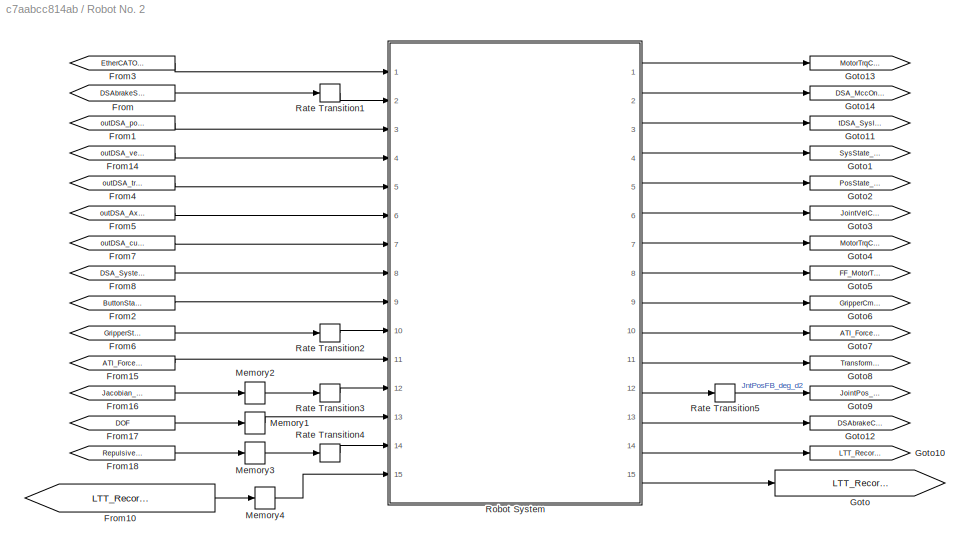
BLOCK [SubSystem] Robot No. 2
  Ports = []
  RequestExecContextInheritance = off
  Variant = off
BLOCK [From] Robot No. 2/From
  GotoTag = DSAbrakeStatus_d2
  TagVisibility = global
BLOCK [From] Robot No. 2/From1
  GotoTag = outDSA_pos_d2
  TagVisibility = global
BLOCK [From] Robot No. 2/From10
  GotoTag = LTT_Record_Flag_Robot1
BLOCK [From] Robot No. 2/From14
  GotoTag = outDSA_vel_d2
  TagVisibility = global
BLOCK [From] Robot No. 2/From15
  GotoTag = ATI_Force_raw_d2
  TagVisibility = global
BLOCK [From] Robot No. 2/From16
  GotoTag = Jacobian_pa
  TagVisibility = global
BLOCK [From] Robot No. 2/From17
  GotoTag = DOF
  TagVisibility = global
BLOCK [From] Robot No. 2/From18
  GotoTag = RepulsiveForce1
  TagVisibility = global
BLOCK [From] Robot No. 2/From2
  GotoTag = ButtonState_d2
  TagVisibility = global
BLOCK [From] Robot No. 2/From3
  GotoTag = EtherCATOpState
  TagVisibility = global
BLOCK [From] Robot No. 2/From4
  GotoTag = outDSA_trq_d2
  TagVisibility = global
BLOCK [From] Robot No. 2/From5
  GotoTag = outDSA_AxEtcInfo_d2
  TagVisibility = global
BLOCK [From] Robot No. 2/From6
  GotoTag = GripperStatus_d2
  TagVisibility = global
BLOCK [From] Robot No. 2/From7
  GotoTag = outDSA_current_d2
  TagVisibility = global
BLOCK [From] Robot No. 2/From8
  GotoTag = DSA_SystemInfo_d2
  TagVisibility = global
BLOCK [Goto] Robot No. 2/Goto
  GotoTag = LTT_Record_Flag_Robot2
  TagVisibility = global
BLOCK [Goto] Robot No. 2/Goto1
  GotoTag = SysState_d2
  TagVisibility = global
BLOCK [Goto] Robot No. 2/Goto10
  GotoTag = LTT_Record_Data_d2
  TagVisibility = global
BLOCK [Goto] Robot No. 2/Goto11
  GotoTag = tDSA_SysInfo2_d2
  TagVisibility = global
BLOCK [Goto] Robot No. 2/Goto12
  GotoTag = DSAbrakeCmd_d2
  TagVisibility = global
BLOCK [Goto] Robot No. 2/Goto13
  GotoTag = MotorTrqCmd_DSA_d2
  TagVisibility = global
BLOCK [Goto] Robot No. 2/Goto14
  GotoTag = DSA_MccOn_d2
  TagVisibility = global
BLOCK [Goto] Robot No. 2/Goto2
  GotoTag = PosState_d2
  TagVisibility = global
BLOCK [Goto] Robot No. 2/Goto3
  GotoTag = JointVelCmd_degs_d2
  TagVisibility = global
BLOCK [Goto] Robot No. 2/Goto4
  GotoTag = MotorTrqCmd_Nm_d2
  TagVisibility = global
BLOCK [Goto] Robot No. 2/Goto5
  GotoTag = FF_MotorTrqCmd_Nm_d2
  TagVisibility = global
BLOCK [Goto] Robot No. 2/Goto6
  GotoTag = GripperCmd_d2
  TagVisibility = global
BLOCK [Goto] Robot No. 2/Goto7
  GotoTag = ATI_Force_d2
  TagVisibility = global
BLOCK [Goto] Robot No. 2/Goto8
  GotoTag = TransformationM_d2
  TagVisibility = global
BLOCK [Goto] Robot No. 2/Goto9
  GotoTag = JointPos_deg_d2
  TagVisibility = global
BLOCK [Memory] Robot No. 2/Memory1
  InheritSampleTime = on
BLOCK [Memory] Robot No. 2/Memory2
  InheritSampleTime = on
BLOCK [Memory] Robot No. 2/Memory3
  InheritSampleTime = on
BLOCK [Memory] Robot No. 2/Memory4
  InheritSampleTime = on
BLOCK [RateTransition] Robot No. 2/Rate Transition1
BLOCK [RateTransition] Robot No. 2/Rate Transition2
BLOCK [RateTransition] Robot No. 2/Rate Transition3
BLOCK [RateTransition] Robot No. 2/Rate Transition4
BLOCK [RateTransition] Robot No. 2/Rate Transition5
  OutPortSampleTime = si.tsv
BLOCK [ModelReference] Robot No. 2/Robot System
  CopyOfModelName = LRMate200Experimentor_Robot_Copy.slx
  ModelNameDialog = LRMate200Experimentor_Robot_Copy.slx
  ModelReferenceVersion = 1.702
  ParameterArgumentNames = rsi
  ParameterArgumentValues = si.ri{2}
  Ports = [15, 15]
  Variant = off
BLOCK [Scope] Scope
  IOType = viewer
  Ports = []
  ScopeSpecificationString = C++SS(StrPVP('Location','[1230, 134, 1554, 373]'),StrPVP('Open','off'),MxPVP('AxesTitles',24,'struct(''axes1'',''%<SignalLabel>'')'),StrPVP('ShowLegends','off'),StrPVP('YMin','-0.075'),StrPVP('YMax','0.075'),StrPVP('MaxDataPoints','7500'),StrPVP('BlockParamSampleTime','0'),StrPVP('ScrollMode','off'),StrPVP('LimitDataPoints','on'),StrPVP('DataFormat','Array'),StrPVP('Decimation','1'),StrPVP('BlockP...<+24ch>
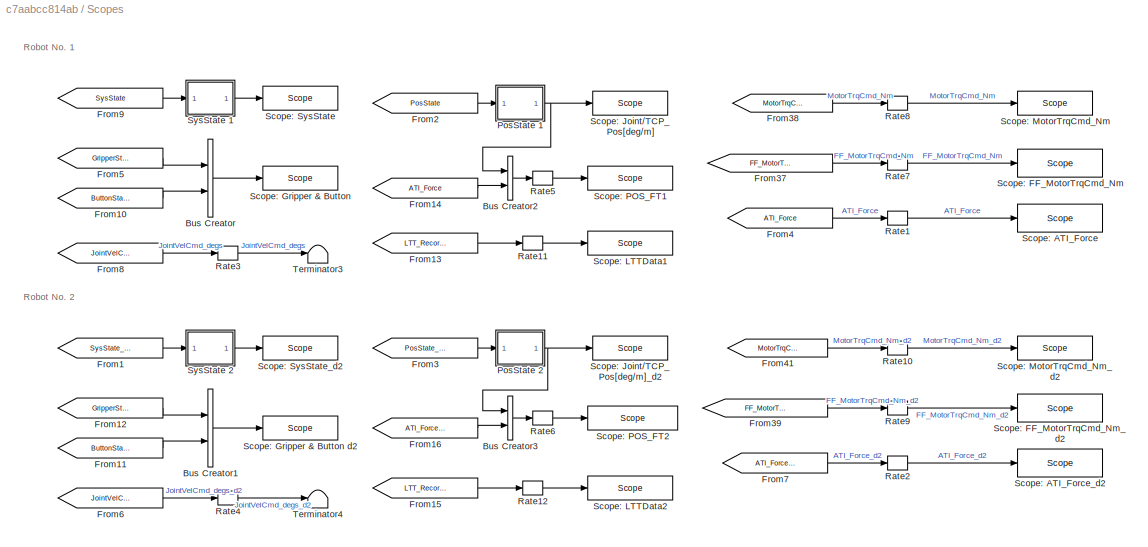
BLOCK [SubSystem] Scopes
  Ports = []
  RequestExecContextInheritance = off
  Variant = off
BLOCK [BusCreator] Scopes/Bus Creator
  DisplayOption = bar
  InheritFromInputs = on
  Inputs = 2
  Ports = [2, 1]
BLOCK [BusCreator] Scopes/Bus Creator1
  DisplayOption = bar
  InheritFromInputs = on
  Inputs = 2
  Ports = [2, 1]
BLOCK [BusCreator] Scopes/Bus Creator2
  DisplayOption = bar
  InheritFromInputs = on
  Inputs = 2
  Ports = [2, 1]
BLOCK [BusCreator] Scopes/Bus Creator3
  DisplayOption = bar
  InheritFromInputs = on
  Inputs = 2
  Ports = [2, 1]
BLOCK [From] Scopes/From1
  GotoTag = SysState_d2
  TagVisibility = global
BLOCK [From] Scopes/From10
  GotoTag = ButtonState
  TagVisibility = global
BLOCK [From] Scopes/From11
  GotoTag = ButtonState_d2
  TagVisibility = global
BLOCK [From] Scopes/From12
  GotoTag = GripperStatus_d2
  TagVisibility = global
BLOCK [From] Scopes/From13
  GotoTag = LTT_Record_Data
  TagVisibility = global
BLOCK [From] Scopes/From14
  GotoTag = ATI_Force
  TagVisibility = global
BLOCK [From] Scopes/From15
  GotoTag = LTT_Record_Data_d2
  TagVisibility = global
BLOCK [From] Scopes/From16
  GotoTag = ATI_Force_d2
  TagVisibility = global
BLOCK [From] Scopes/From2
  GotoTag = PosState
  TagVisibility = global
BLOCK [From] Scopes/From3
  GotoTag = PosState_d2
  TagVisibility = global
BLOCK [From] Scopes/From37
  GotoTag = FF_MotorTrqCmd_Nm
  TagVisibility = global
BLOCK [From] Scopes/From38
  GotoTag = MotorTrqCmd_Nm
  TagVisibility = global
BLOCK [From] Scopes/From39
  GotoTag = FF_MotorTrqCmd_Nm_d2
  TagVisibility = global
BLOCK [From] Scopes/From4
  GotoTag = ATI_Force
  TagVisibility = global
BLOCK [From] Scopes/From41
  GotoTag = MotorTrqCmd_Nm_d2
  TagVisibility = global
BLOCK [From] Scopes/From5
  GotoTag = GripperStatus
  TagVisibility = global
BLOCK [From] Scopes/From6
  GotoTag = JointVelCmd_degs_d2
  TagVisibility = global
BLOCK [From] Scopes/From7
  GotoTag = ATI_Force_d2
  TagVisibility = global
BLOCK [From] Scopes/From8
  GotoTag = JointVelCmd_degs
  TagVisibility = global
BLOCK [From] Scopes/From9
  GotoTag = SysState
  TagVisibility = global
BLOCK [SubSystem] Scopes/PosState 1
  Ports = [1, 1]
  RequestExecContextInheritance = off
  Variant = off
BLOCK [BusCreator] Scopes/PosState 1/Bus Creator
  DisplayOption = bar
  InheritFromInputs = on
  Inputs = 9
  Ports = [9, 1]
BLOCK [BusSelector] Scopes/PosState 1/Bus Selector
  OutputSignals = Pos_J1_deg,Pos_J2_deg,Pos_J3_deg,Pos_J4_deg,Pos_J5_deg,Pos_J6_deg,Pos_X_mm,Pos_Y_mm,Pos_Z_mm
  Ports = [1, 9]
BLOCK [Gain] Scopes/PosState 1/Gain_Pos_J1_deg
  OutDataTypeStr = Inherit: Inherit via internal rule
  ParamDataTypeStr = Inherit: Inherit via internal rule
  SaturateOnIntegerOverflow = off
BLOCK [Gain] Scopes/PosState 1/Gain_Pos_J2_deg
  OutDataTypeStr = Inherit: Inherit via internal rule
  ParamDataTypeStr = Inherit: Inherit via internal rule
  SaturateOnIntegerOverflow = off
BLOCK [Gain] Scopes/PosState 1/Gain_Pos_J3_deg
  OutDataTypeStr = Inherit: Inherit via internal rule
  ParamDataTypeStr = Inherit: Inherit via internal rule
  SaturateOnIntegerOverflow = off
BLOCK [Gain] Scopes/PosState 1/Gain_Pos_J4_deg
  OutDataTypeStr = Inherit: Inherit via internal rule
  ParamDataTypeStr = Inherit: Inherit via internal rule
  SaturateOnIntegerOverflow = off
BLOCK [Gain] Scopes/PosState 1/Gain_Pos_J5_deg
  OutDataTypeStr = Inherit: Inherit via internal rule
  ParamDataTypeStr = Inherit: Inherit via internal rule
  SaturateOnIntegerOverflow = off
BLOCK [Gain] Scopes/PosState 1/Gain_Pos_J6_deg
  OutDataTypeStr = Inherit: Inherit via internal rule
  ParamDataTypeStr = Inherit: Inherit via internal rule
  SaturateOnIntegerOverflow = off
BLOCK [Gain] Scopes/PosState 1/Gain_Pos_X_mm
  OutDataTypeStr = Inherit: Inherit via internal rule
  ParamDataTypeStr = Inherit: Inherit via internal rule
  SaturateOnIntegerOverflow = off
BLOCK [Gain] Scopes/PosState 1/Gain_Pos_Y_mm
  OutDataTypeStr = Inherit: Inherit via internal rule
  ParamDataTypeStr = Inherit: Inherit via internal rule
  SaturateOnIntegerOverflow = off
BLOCK [Gain] Scopes/PosState 1/Gain_Pos_Z_mm
  OutDataTypeStr = Inherit: Inherit via internal rule
  ParamDataTypeStr = Inherit: Inherit via internal rule
  SaturateOnIntegerOverflow = off
BLOCK [Inport] Scopes/PosState 1/In1
  IconDisplay = Port number
BLOCK [Outport] Scopes/PosState 1/Out1
  IconDisplay = Port number
BLOCK [SubSystem] Scopes/PosState 2
  Ports = [1, 1]
  RequestExecContextInheritance = off
  Variant = off
BLOCK [BusCreator] Scopes/PosState 2/Bus Creator
  DisplayOption = bar
  InheritFromInputs = on
  Inputs = 9
  Ports = [9, 1]
BLOCK [BusSelector] Scopes/PosState 2/Bus Selector
  OutputSignals = Pos_J1_deg,Pos_J2_deg,Pos_J3_deg,Pos_J4_deg,Pos_J5_deg,Pos_J6_deg,Pos_X_mm,Pos_Y_mm,Pos_Z_mm
  Ports = [1, 9]
BLOCK [Gain] Scopes/PosState 2/Gain_Pos_J1_deg
  OutDataTypeStr = Inherit: Inherit via internal rule
  ParamDataTypeStr = Inherit: Inherit via internal rule
  SaturateOnIntegerOverflow = off
BLOCK [Gain] Scopes/PosState 2/Gain_Pos_J2_deg
  OutDataTypeStr = Inherit: Inherit via internal rule
  ParamDataTypeStr = Inherit: Inherit via internal rule
  SaturateOnIntegerOverflow = off
BLOCK [Gain] Scopes/PosState 2/Gain_Pos_J3_deg
  OutDataTypeStr = Inherit: Inherit via internal rule
  ParamDataTypeStr = Inherit: Inherit via internal rule
  SaturateOnIntegerOverflow = off
BLOCK [Gain] Scopes/PosState 2/Gain_Pos_J4_deg
  OutDataTypeStr = Inherit: Inherit via internal rule
  ParamDataTypeStr = Inherit: Inherit via internal rule
  SaturateOnIntegerOverflow = off
BLOCK [Gain] Scopes/PosState 2/Gain_Pos_J5_deg
  OutDataTypeStr = Inherit: Inherit via internal rule
  ParamDataTypeStr = Inherit: Inherit via internal rule
  SaturateOnIntegerOverflow = off
BLOCK [Gain] Scopes/PosState 2/Gain_Pos_J6_deg
  OutDataTypeStr = Inherit: Inherit via internal rule
  ParamDataTypeStr = Inherit: Inherit via internal rule
  SaturateOnIntegerOverflow = off
BLOCK [Gain] Scopes/PosState 2/Gain_Pos_X_mm
  OutDataTypeStr = Inherit: Inherit via internal rule
  ParamDataTypeStr = Inherit: Inherit via internal rule
  SaturateOnIntegerOverflow = off
BLOCK [Gain] Scopes/PosState 2/Gain_Pos_Y_mm
  OutDataTypeStr = Inherit: Inherit via internal rule
  ParamDataTypeStr = Inherit: Inherit via internal rule
  SaturateOnIntegerOverflow = off
BLOCK [Gain] Scopes/PosState 2/Gain_Pos_Z_mm
  OutDataTypeStr = Inherit: Inherit via internal rule
  ParamDataTypeStr = Inherit: Inherit via internal rule
  SaturateOnIntegerOverflow = off
BLOCK [Inport] Scopes/PosState 2/In1
  IconDisplay = Port number
BLOCK [Outport] Scopes/PosState 2/Out1
  IconDisplay = Port number
BLOCK [RateTransition] Scopes/Rate1
  OutPortSampleTime = si.tsv
BLOCK [RateTransition] Scopes/Rate10
  OutPortSampleTime = si.tsv
BLOCK [RateTransition] Scopes/Rate11
  OutPortSampleTime = si.tsv
BLOCK [RateTransition] Scopes/Rate12
  OutPortSampleTime = si.tsv
BLOCK [RateTransition] Scopes/Rate2
  OutPortSampleTime = si.tsv
BLOCK [RateTransition] Scopes/Rate3
  OutPortSampleTime = si.tsv
BLOCK [RateTransition] Scopes/Rate4
  OutPortSampleTime = si.tsv
BLOCK [RateTransition] Scopes/Rate5
  OutPortSampleTime = si.tsv
BLOCK [RateTransition] Scopes/Rate6
  OutPortSampleTime = si.tsv
BLOCK [RateTransition] Scopes/Rate7
  OutPortSampleTime = si.tsv
BLOCK [RateTransition] Scopes/Rate8
  OutPortSampleTime = si.tsv
BLOCK [RateTransition] Scopes/Rate9
  OutPortSampleTime = si.tsv
BLOCK [Reference] Scopes/Scope: ATI_Force  REF=slrtlib/Displays and
Logging/Scope 
  Ports = [1]
  SourceBlock = slrtlib/Displays and\nLogging/Scope
  SourceType = xpcscopeblock
BLOCK [Reference] Scopes/Scope: ATI_Force_d2  REF=slrtlib/Displays and
Logging/Scope 
  Ports = [1]
  SourceBlock = slrtlib/Displays and\nLogging/Scope
  SourceType = xpcscopeblock
BLOCK [Reference] Scopes/Scope: FF_MotorTrqCmd_Nm  REF=slrtlib/Displays and
Logging/Scope 
  Commented = on
  Ports = [1]
  SourceBlock = slrtlib/Displays and\nLogging/Scope
  SourceType = xpcscopeblock
BLOCK [Reference] Scopes/Scope: FF_MotorTrqCmd_Nm_d2  REF=slrtlib/Displays and
Logging/Scope 
  Commented = on
  Ports = [1]
  SourceBlock = slrtlib/Displays and\nLogging/Scope
  SourceType = xpcscopeblock
BLOCK [Reference] Scopes/Scope: Gripper & Button  REF=slrtlib/Displays and
Logging/Scope 
  Ports = [1]
  SourceBlock = slrtlib/Displays and\nLogging/Scope
  SourceType = xpcscopeblock
BLOCK [Reference] Scopes/Scope: Gripper & Button d2  REF=slrtlib/Displays and
Logging/Scope 
  Ports = [1]
  SourceBlock = slrtlib/Displays and\nLogging/Scope
  SourceType = xpcscopeblock
BLOCK [Reference] Scopes/Scope: Joint//TCP_Pos[deg//m]  REF=slrtlib/Displays and
Logging/Scope 
  Ports = [1]
  SourceBlock = slrtlib/Displays and\nLogging/Scope
  SourceType = xpcscopeblock
BLOCK [Reference] Scopes/Scope: Joint//TCP_Pos[deg//m]_d2  REF=slrtlib/Displays and
Logging/Scope 
  Ports = [1]
  SourceBlock = slrtlib/Displays and\nLogging/Scope
  SourceType = xpcscopeblock
BLOCK [Reference] Scopes/Scope: LTTData1  REF=slrtlib/Displays and
Logging/Scope 
  Ports = [1]
  SourceBlock = slrtlib/Displays and\nLogging/Scope
  SourceType = xpcscopeblock
BLOCK [Reference] Scopes/Scope: LTTData2  REF=slrtlib/Displays and
Logging/Scope 
  Ports = [1]
  SourceBlock = slrtlib/Displays and\nLogging/Scope
  SourceType = xpcscopeblock
BLOCK [Reference] Scopes/Scope: MotorTrqCmd_Nm  REF=slrtlib/Displays and
Logging/Scope 
  Commented = on
  Ports = [1]
  SourceBlock = slrtlib/Displays and\nLogging/Scope
  SourceType = xpcscopeblock
BLOCK [Reference] Scopes/Scope: MotorTrqCmd_Nm_d2  REF=slrtlib/Displays and
Logging/Scope 
  Commented = on
  Ports = [1]
  SourceBlock = slrtlib/Displays and\nLogging/Scope
  SourceType = xpcscopeblock
BLOCK [Reference] Scopes/Scope: POS_FT1  REF=slrtlib/Displays and
Logging/Scope 
  Ports = [1]
  SourceBlock = slrtlib/Displays and\nLogging/Scope
  SourceType = xpcscopeblock
BLOCK [Reference] Scopes/Scope: POS_FT2  REF=slrtlib/Displays and
Logging/Scope 
  Ports = [1]
  SourceBlock = slrtlib/Displays and\nLogging/Scope
  SourceType = xpcscopeblock
BLOCK [Reference] Scopes/Scope: SysState  REF=slrtlib/Displays and
Logging/Scope 
  Ports = [1]
  SourceBlock = slrtlib/Displays and\nLogging/Scope
  SourceType = xpcscopeblock
BLOCK [Reference] Scopes/Scope: SysState_d2  REF=slrtlib/Displays and
Logging/Scope 
  Ports = [1]
  SourceBlock = slrtlib/Displays and\nLogging/Scope
  SourceType = xpcscopeblock
BLOCK [SubSystem] Scopes/SysState 1
  Ports = [1, 1]
  RequestExecContextInheritance = off
  Variant = off
BLOCK [BusCreator] Scopes/SysState 1/Bus Creator
  DisplayOption = bar
  InheritFromInputs = on
  Inputs = 9
  Ports = [9, 1]
BLOCK [BusSelector] Scopes/SysState 1/Bus Selector
  OutputSignals = EtherCATOpState,M_State,DSAbrakeCmd,DSAin_MccOn,VRDY,DSAAxEtcInfoJ1,tDSA_SysInfo2,fDSA_SysInfo1,SafetyOver
  Ports = [1, 9]
BLOCK [Gain] Scopes/SysState 1/Gain_DSAAxEtcInfoJ1
  OutDataTypeStr = Inherit: Inherit via internal rule
  ParamDataTypeStr = Inherit: Inherit via internal rule
  SaturateOnIntegerOverflow = off
BLOCK [Gain] Scopes/SysState 1/Gain_DSAbrakeCmd
  OutDataTypeStr = Inherit: Inherit via internal rule
  ParamDataTypeStr = Inherit: Inherit via internal rule
  SaturateOnIntegerOverflow = off
BLOCK [Gain] Scopes/SysState 1/Gain_DSAin_MccOn
  OutDataTypeStr = Inherit: Inherit via internal rule
  ParamDataTypeStr = Inherit: Inherit via internal rule
  SaturateOnIntegerOverflow = off
BLOCK [Gain] Scopes/SysState 1/Gain_EtherCATOpState
  OutDataTypeStr = Inherit: Inherit via internal rule
  ParamDataTypeStr = Inherit: Inherit via internal rule
  SaturateOnIntegerOverflow = off
BLOCK [Gain] Scopes/SysState 1/Gain_M_State
  OutDataTypeStr = Inherit: Inherit via internal rule
  ParamDataTypeStr = Inherit: Inherit via internal rule
  SaturateOnIntegerOverflow = off
BLOCK [Gain] Scopes/SysState 1/Gain_SafetyOver
  OutDataTypeStr = Inherit: Inherit via internal rule
  ParamDataTypeStr = Inherit: Inherit via internal rule
  SaturateOnIntegerOverflow = off
BLOCK [Gain] Scopes/SysState 1/Gain_VRDY
  OutDataTypeStr = Inherit: Inherit via internal rule
  ParamDataTypeStr = Inherit: Inherit via internal rule
  SaturateOnIntegerOverflow = off
BLOCK [Gain] Scopes/SysState 1/Gain_fDSA_SysInfo1
  OutDataTypeStr = Inherit: Inherit via internal rule
  ParamDataTypeStr = Inherit: Inherit via internal rule
  SaturateOnIntegerOverflow = off
BLOCK [Gain] Scopes/SysState 1/Gain_tDSA_SysInfo2
  OutDataTypeStr = Inherit: Inherit via internal rule
  ParamDataTypeStr = Inherit: Inherit via internal rule
  SaturateOnIntegerOverflow = off
BLOCK [Inport] Scopes/SysState 1/In1
  IconDisplay = Port number
BLOCK [Outport] Scopes/SysState 1/Out1
  IconDisplay = Port number
BLOCK [SubSystem] Scopes/SysState 2
  Ports = [1, 1]
  RequestExecContextInheritance = off
  Variant = off
BLOCK [BusCreator] Scopes/SysState 2/Bus Creator
  DisplayOption = bar
  InheritFromInputs = on
  Inputs = 9
  Ports = [9, 1]
BLOCK [BusSelector] Scopes/SysState 2/Bus Selector
  OutputSignals = EtherCATOpState,M_State,DSAbrakeCmd,DSAin_MccOn,VRDY,DSAAxEtcInfoJ1,tDSA_SysInfo2,fDSA_SysInfo1,SafetyOver
  Ports = [1, 9]
BLOCK [Gain] Scopes/SysState 2/Gain_DSAAxEtcInfoJ1
  OutDataTypeStr = Inherit: Inherit via internal rule
  ParamDataTypeStr = Inherit: Inherit via internal rule
  SaturateOnIntegerOverflow = off
BLOCK [Gain] Scopes/SysState 2/Gain_DSAbrakeCmd
  OutDataTypeStr = Inherit: Inherit via internal rule
  ParamDataTypeStr = Inherit: Inherit via internal rule
  SaturateOnIntegerOverflow = off
BLOCK [Gain] Scopes/SysState 2/Gain_DSAin_MccOn
  OutDataTypeStr = Inherit: Inherit via internal rule
  ParamDataTypeStr = Inherit: Inherit via internal rule
  SaturateOnIntegerOverflow = off
BLOCK [Gain] Scopes/SysState 2/Gain_EtherCATOpState
  OutDataTypeStr = Inherit: Inherit via internal rule
  ParamDataTypeStr = Inherit: Inherit via internal rule
  SaturateOnIntegerOverflow = off
BLOCK [Gain] Scopes/SysState 2/Gain_M_State
  OutDataTypeStr = Inherit: Inherit via internal rule
  ParamDataTypeStr = Inherit: Inherit via internal rule
  SaturateOnIntegerOverflow = off
BLOCK [Gain] Scopes/SysState 2/Gain_SafetyOver
  OutDataTypeStr = Inherit: Inherit via internal rule
  ParamDataTypeStr = Inherit: Inherit via internal rule
  SaturateOnIntegerOverflow = off
BLOCK [Gain] Scopes/SysState 2/Gain_VRDY
  OutDataTypeStr = Inherit: Inherit via internal rule
  ParamDataTypeStr = Inherit: Inherit via internal rule
  SaturateOnIntegerOverflow = off
BLOCK [Gain] Scopes/SysState 2/Gain_fDSA_SysInfo1
  OutDataTypeStr = Inherit: Inherit via internal rule
  ParamDataTypeStr = Inherit: Inherit via internal rule
  SaturateOnIntegerOverflow = off
BLOCK [Gain] Scopes/SysState 2/Gain_tDSA_SysInfo2
  OutDataTypeStr = Inherit: Inherit via internal rule
  ParamDataTypeStr = Inherit: Inherit via internal rule
  SaturateOnIntegerOverflow = off
BLOCK [Inport] Scopes/SysState 2/In1
  IconDisplay = Port number
BLOCK [Outport] Scopes/SysState 2/Out1
  IconDisplay = Port number
BLOCK [Terminator] Scopes/Terminator3
BLOCK [Terminator] Scopes/Terminator4
ANNOTATION (root): FANUC Corporation MSC Lab, UC Berkeley
ANNOTATION (root): FANUC Dual Arm Robot Experimentor
ANNOTATION IO System: The Board Bus/Slot Number might be different in different TargetPC
ANNOTATION IO System/DSA System/DSA System 1: Always 10000 in case of DSA torqure mode
ANNOTATION IO System/DSA System/DSA System 1: R-30iB化（EtherCAT）にするあたり、以下のように考える。 DSAmodeCmdとDssaBrakeCmdはリンクせず、パラにかんがえればよい。 それぞれのコマンドに応じてそれぞれの処理を行うだけ。
ANNOTATION IO System/DSA System/DSA System 2: Always 10000 in case of DSA torqure mode
ANNOTATION IO System/Gripper System/Gripper 1/Gripper Subsystem/Integer to Bit Converter: mod(u, 2)
ANNOTATION IO System/Gripper System/Gripper 2/Gripper Subsystem/Integer to Bit Converter: mod(u, 2)
ANNOTATION Scopes: Robot No. 1
ANNOTATION Scopes: Robot No. 2
ANNOTATION Scopes/PosState 1: Gain blocks are necessary because otherwise the signals (names) are not observable in the Simulink Real-Time Scope.
ANNOTATION Scopes/PosState 2: Gain blocks are necessary because otherwise the signals (names) are not observable in the Simulink Real-Time Scope.
ANNOTATION Scopes/SysState 1: Gain blocks are necessary because otherwise the signals (names) are not observable in the Simulink Real-Time Scope.
ANNOTATION Scopes/SysState 2: Gain blocks are necessary because otherwise the signals (names) are not observable in the Simulink Real-Time Scope.
LINE Dual Arm Coordination/BASE_Z:1 -> Dual Arm Coordination/MATLAB Function3:3
LINE Dual Arm Coordination/Constant1:1 -> Dual Arm Coordination/MATLAB Function4:4
LINE Dual Arm Coordination/Constant:1 -> Dual Arm Coordination/MATLAB Function4:3
LINE Dual Arm Coordination/From1:1 -> Dual Arm Coordination/Terminator1:1
LINE Dual Arm Coordination/From29:1 -> Dual Arm Coordination/MATLAB Function3:1
LINE Dual Arm Coordination/From30:1 -> Dual Arm Coordination/MATLAB Function5:2
LINE Dual Arm Coordination/From31:1 -> Dual Arm Coordination/Gain19:1
LINE Dual Arm Coordination/From36:1 -> Dual Arm Coordination/MATLAB Function3:2
LINE Dual Arm Coordination/Gain19:1 -> Dual Arm Coordination/MATLAB Function5:5
LINE Dual Arm Coordination/MATLAB Function3:1 -> Dual Arm Coordination/Mux7:1
NET Dual Arm Coordination/MATLAB Function3:2 -> Dual Arm Coordination/MATLAB Function4:1, Dual Arm Coordination/Mux7:2
NET Dual Arm Coordination/MATLAB Function3:3 -> Dual Arm Coordination/MATLAB Function4:2, Dual Arm Coordination/MATLAB Function5:3, Dual Arm Coordination/Mux7:3
NET Dual Arm Coordination/MATLAB Function3:4 -> Dual Arm Coordination/MATLAB Function5:4, Dual Arm Coordination/Mux7:4
LINE Dual Arm Coordination/MATLAB Function4:1 -> Dual Arm Coordination/Rate4:1
LINE Dual Arm Coordination/MATLAB Function4:2 -> Dual Arm Coordination/Rate6:1
LINE Dual Arm Coordination/MATLAB Function4:3 -> Dual Arm Coordination/Terminator7:1
LINE Dual Arm Coordination/MATLAB Function5:1 -> Dual Arm Coordination/Rate5:1
LINE Dual Arm Coordination/MATLAB Function5:2 -> Dual Arm Coordination/Rate3:1
LINE Dual Arm Coordination/Mux7:1 -> Dual Arm Coordination/Terminator6:1
LINE Dual Arm Coordination/OFFSET:1 -> Dual Arm Coordination/MATLAB Function3:5
LINE Dual Arm Coordination/PanelREC3:1 -> Dual Arm Coordination/MATLAB Function5:1
LINE Dual Arm Coordination/RADIUS:1 -> Dual Arm Coordination/MATLAB Function3:4
LINE Dual Arm Coordination/Rate3:1 -> Dual Arm Coordination/Goto8:1
LINE Dual Arm Coordination/Rate4:1 -> Dual Arm Coordination/Goto5:1
LINE Dual Arm Coordination/Rate5:1 -> Dual Arm Coordination/Goto7:1
LINE Dual Arm Coordination/Rate6:1 -> Dual Arm Coordination/Goto6:1
LINE IO System/Button/Bus Creator1:1 -> IO System/Button/Goto1:1
LINE IO System/Button/Bus Creator:1 -> IO System/Button/Goto9:1
LINE IO System/Button/PCI-6528 DI Port 1:1 -> IO System/Button/Bus Creator:1
LINE IO System/Button/PCI-6528 DI Port 1:2 -> IO System/Button/Bus Creator:2
LINE IO System/Button/PCI-6528 DI Port 2:1 -> IO System/Button/Bus Creator1:1
LINE IO System/Button/PCI-6528 DI Port 2:2 -> IO System/Button/Bus Creator1:2
LINE IO System/DSA System/DSA System 1/Add:1 -> IO System/DSA System/DSA System 1/outDSA_pos:1
LINE IO System/DSA System/DSA System 1/Constant:1 -> IO System/DSA System/DSA System 1/EtherCAT DSA TrqLimit:1
LINE IO System/DSA System/DSA System 1/Conversion1:1 -> IO System/DSA System/DSA System 1/outDSA_vel:1
LINE IO System/DSA System/DSA System 1/Conversion2:1 -> IO System/DSA System/DSA System 1/outDSA_trq:1
LINE IO System/DSA System/DSA System 1/Conversion3:1 -> IO System/DSA System/DSA System 1/outDSA_current:1
LINE IO System/DSA System/DSA System 1/Conversion4:1 -> IO System/DSA System/DSA System 1/Rate Transition2:1
LINE IO System/DSA System/DSA System 1/Conversion5:1 -> IO System/DSA System/DSA System 1/Add:1
LINE IO System/DSA System/DSA System 1/Conversion:1 -> IO System/DSA System/DSA System 1/Add:2
LINE IO System/DSA System/DSA System 1/DSA_MccOn:1 -> IO System/DSA System/DSA System 1/Rate Transition:1
LINE IO System/DSA System/DSA System 1/DSA_SystemInfo1:1 -> IO System/DSA System/DSA System 1/Rate Transition1:1
LINE IO System/DSA System/DSA System 1/EtherCAT DSA AxEtcInfo/FromDSA J1AxEtcInfo:1 -> IO System/DSA System/DSA System 1/EtherCAT DSA AxEtcInfo/Mux:1
LINE IO System/DSA System/DSA System 1/EtherCAT DSA AxEtcInfo/FromDSA J2AxEtcInfo:1 -> IO System/DSA System/DSA System 1/EtherCAT DSA AxEtcInfo/Mux:2
LINE IO System/DSA System/DSA System 1/EtherCAT DSA AxEtcInfo/FromDSA J3AxEtcInfo:1 -> IO System/DSA System/DSA System 1/EtherCAT DSA AxEtcInfo/Mux:3
LINE IO System/DSA System/DSA System 1/EtherCAT DSA AxEtcInfo/FromDSA J4AxEtcInfo:1 -> IO System/DSA System/DSA System 1/EtherCAT DSA AxEtcInfo/Mux:4
LINE IO System/DSA System/DSA System 1/EtherCAT DSA AxEtcInfo/FromDSA J5AxEtcInfo:1 -> IO System/DSA System/DSA System 1/EtherCAT DSA AxEtcInfo/Mux:5
LINE IO System/DSA System/DSA System 1/EtherCAT DSA AxEtcInfo/FromDSA J6AxEtcInfo:1 -> IO System/DSA System/DSA System 1/EtherCAT DSA AxEtcInfo/Mux:6
LINE IO System/DSA System/DSA System 1/EtherCAT DSA AxEtcInfo/Mux:1 -> IO System/DSA System/DSA System 1/EtherCAT DSA AxEtcInfo/Rate Transition:1
LINE IO System/DSA System/DSA System 1/EtherCAT DSA AxEtcInfo/Rate Transition:1 -> IO System/DSA System/DSA System 1/EtherCAT DSA AxEtcInfo/AxEtcInfoOut:1
LINE IO System/DSA System/DSA System 1/EtherCAT DSA AxEtcInfo:1 -> IO System/DSA System/DSA System 1/outDSA_AxEtcInfo:1
LINE IO System/DSA System/DSA System 1/EtherCAT DSA CurrentOut/FromDSA J1Current:1 -> IO System/DSA System/DSA System 1/EtherCAT DSA CurrentOut/Mux:1
LINE IO System/DSA System/DSA System 1/EtherCAT DSA CurrentOut/FromDSA J2Current:1 -> IO System/DSA System/DSA System 1/EtherCAT DSA CurrentOut/Mux:2
LINE IO System/DSA System/DSA System 1/EtherCAT DSA CurrentOut/FromDSA J3Current:1 -> IO System/DSA System/DSA System 1/EtherCAT DSA CurrentOut/Mux:3
LINE IO System/DSA System/DSA System 1/EtherCAT DSA CurrentOut/FromDSA J4Current:1 -> IO System/DSA System/DSA System 1/EtherCAT DSA CurrentOut/Mux:4
LINE IO System/DSA System/DSA System 1/EtherCAT DSA CurrentOut/FromDSA J5Current:1 -> IO System/DSA System/DSA System 1/EtherCAT DSA CurrentOut/Mux:5
LINE IO System/DSA System/DSA System 1/EtherCAT DSA CurrentOut/FromDSA J6Current:1 -> IO System/DSA System/DSA System 1/EtherCAT DSA CurrentOut/Mux:6
LINE IO System/DSA System/DSA System 1/EtherCAT DSA CurrentOut/Mux:1 -> IO System/DSA System/DSA System 1/EtherCAT DSA CurrentOut/Rate Transition:1
LINE IO System/DSA System/DSA System 1/EtherCAT DSA CurrentOut/Rate Transition:1 -> IO System/DSA System/DSA System 1/EtherCAT DSA CurrentOut/CurrentOut:1
LINE IO System/DSA System/DSA System 1/EtherCAT DSA CurrentOut:1 -> IO System/DSA System/DSA System 1/Conversion3:1
LINE IO System/DSA System/DSA System 1/EtherCAT DSA IniPos/FromDSA J1IniPos:1 -> IO System/DSA System/DSA System 1/EtherCAT DSA IniPos/Mux:1
LINE IO System/DSA System/DSA System 1/EtherCAT DSA IniPos/FromDSA J2IniPos:1 -> IO System/DSA System/DSA System 1/EtherCAT DSA IniPos/Mux:2
LINE IO System/DSA System/DSA System 1/EtherCAT DSA IniPos/FromDSA J3IniPos:1 -> IO System/DSA System/DSA System 1/EtherCAT DSA IniPos/Mux:3
LINE IO System/DSA System/DSA System 1/EtherCAT DSA IniPos/FromDSA J4IniPos:1 -> IO System/DSA System/DSA System 1/EtherCAT DSA IniPos/Mux:4
LINE IO System/DSA System/DSA System 1/EtherCAT DSA IniPos/FromDSA J5IniPos:1 -> IO System/DSA System/DSA System 1/EtherCAT DSA IniPos/Mux:5
LINE IO System/DSA System/DSA System 1/EtherCAT DSA IniPos/FromDSA J6IniPos:1 -> IO System/DSA System/DSA System 1/EtherCAT DSA IniPos/Mux:6
LINE IO System/DSA System/DSA System 1/EtherCAT DSA IniPos/Mux:1 -> IO System/DSA System/DSA System 1/EtherCAT DSA IniPos/Rate Transition:1
LINE IO System/DSA System/DSA System 1/EtherCAT DSA IniPos/Rate Transition:1 -> IO System/DSA System/DSA System 1/EtherCAT DSA IniPos/ini_pos:1
LINE IO System/DSA System/DSA System 1/EtherCAT DSA IniPos:1 -> IO System/DSA System/DSA System 1/Conversion5:1
LINE IO System/DSA System/DSA System 1/EtherCAT DSA MccOn/Conversion1:1 -> IO System/DSA System/DSA System 1/EtherCAT DSA MccOn/Rate Transition1:1
LINE IO System/DSA System/DSA System 1/EtherCAT DSA MccOn/Conversion2:1 -> IO System/DSA System/DSA System 1/EtherCAT DSA MccOn/Rate Transition2:1
LINE IO System/DSA System/DSA System 1/EtherCAT DSA MccOn/Conversion3:1 -> IO System/DSA System/DSA System 1/EtherCAT DSA MccOn/Rate Transition3:1
LINE IO System/DSA System/DSA System 1/EtherCAT DSA MccOn/Conversion4:1 -> IO System/DSA System/DSA System 1/EtherCAT DSA MccOn/Rate Transition:1
LINE IO System/DSA System/DSA System 1/EtherCAT DSA MccOn/Conversion5:1 -> IO System/DSA System/DSA System 1/EtherCAT DSA MccOn/Rate Transition4:1
LINE IO System/DSA System/DSA System 1/EtherCAT DSA MccOn/Conversion6:1 -> IO System/DSA System/DSA System 1/EtherCAT DSA MccOn/Rate Transition5:1
NET IO System/DSA System/DSA System 1/EtherCAT DSA MccOn/DSA_MccOn:1 -> IO System/DSA System/DSA System 1/EtherCAT DSA MccOn/Conversion1:1, IO System/DSA System/DSA System 1/EtherCAT DSA MccOn/Conversion2:1, IO System/DSA System/DSA System 1/EtherCAT DSA MccOn/Conversion3:1, IO System/DSA System/DSA System 1/EtherCAT DSA MccOn/Conversion4:1, IO System/DSA System/DSA System 1/EtherCAT DSA MccOn/Conversion5:1, IO System/DSA System/DSA System 1/EtherCAT DSA MccOn/Conversion6:1
LINE IO System/DSA System/DSA System 1/EtherCAT DSA MccOn/Rate Transition1:1 -> IO System/DSA System/DSA System 1/EtherCAT DSA MccOn/ToDSA J2Setting Info 1:1
LINE IO System/DSA System/DSA System 1/EtherCAT DSA MccOn/Rate Transition2:1 -> IO System/DSA System/DSA System 1/EtherCAT DSA MccOn/ToDSA J3Setting Info 2:1
LINE IO System/DSA System/DSA System 1/EtherCAT DSA MccOn/Rate Transition3:1 -> IO System/DSA System/DSA System 1/EtherCAT DSA MccOn/ToDSA J4Setting Info 3:1
LINE IO System/DSA System/DSA System 1/EtherCAT DSA MccOn/Rate Transition4:1 -> IO System/DSA System/DSA System 1/EtherCAT DSA MccOn/ToDSA J5Setting Info 4:1
LINE IO System/DSA System/DSA System 1/EtherCAT DSA MccOn/Rate Transition5:1 -> IO System/DSA System/DSA System 1/EtherCAT DSA MccOn/ToDSA J6Setting Info 5:1
LINE IO System/DSA System/DSA System 1/EtherCAT DSA MccOn/Rate Transition:1 -> IO System/DSA System/DSA System 1/EtherCAT DSA MccOn/ToDSA J1Setting Info :1
LINE IO System/DSA System/DSA System 1/EtherCAT DSA PosOut/FromDSA J1Pos:1 -> IO System/DSA System/DSA System 1/EtherCAT DSA PosOut/Mux:1
LINE IO System/DSA System/DSA System 1/EtherCAT DSA PosOut/FromDSA J2Pos:1 -> IO System/DSA System/DSA System 1/EtherCAT DSA PosOut/Mux:2
LINE IO System/DSA System/DSA System 1/EtherCAT DSA PosOut/FromDSA J3Pos:1 -> IO System/DSA System/DSA System 1/EtherCAT DSA PosOut/Mux:3
LINE IO System/DSA System/DSA System 1/EtherCAT DSA PosOut/FromDSA J4Pos:1 -> IO System/DSA System/DSA System 1/EtherCAT DSA PosOut/Mux:4
LINE IO System/DSA System/DSA System 1/EtherCAT DSA PosOut/FromDSA J5Pos:1 -> IO System/DSA System/DSA System 1/EtherCAT DSA PosOut/Mux:5
LINE IO System/DSA System/DSA System 1/EtherCAT DSA PosOut/FromDSA J6Pos:1 -> IO System/DSA System/DSA System 1/EtherCAT DSA PosOut/Mux:6
LINE IO System/DSA System/DSA System 1/EtherCAT DSA PosOut/Mux:1 -> IO System/DSA System/DSA System 1/EtherCAT DSA PosOut/Rate Transition:1
LINE IO System/DSA System/DSA System 1/EtherCAT DSA PosOut/Rate Transition:1 -> IO System/DSA System/DSA System 1/EtherCAT DSA PosOut/PosOut:1
LINE IO System/DSA System/DSA System 1/EtherCAT DSA PosOut:1 -> IO System/DSA System/DSA System 1/Conversion:1
LINE IO System/DSA System/DSA System 1/EtherCAT DSA TrqCmd/Conversion7:1 -> IO System/DSA System/DSA System 1/EtherCAT DSA TrqCmd/Rate Transition6:1
LINE IO System/DSA System/DSA System 1/EtherCAT DSA TrqCmd/Demux:1 -> IO System/DSA System/DSA System 1/EtherCAT DSA TrqCmd/ToDSA J1TrqCmd :1
LINE IO System/DSA System/DSA System 1/EtherCAT DSA TrqCmd/Demux:2 -> IO System/DSA System/DSA System 1/EtherCAT DSA TrqCmd/ToDSA J2TrqCmd:1
LINE IO System/DSA System/DSA System 1/EtherCAT DSA TrqCmd/Demux:3 -> IO System/DSA System/DSA System 1/EtherCAT DSA TrqCmd/ToDSA J3TrqCmd:1
LINE IO System/DSA System/DSA System 1/EtherCAT DSA TrqCmd/Demux:4 -> IO System/DSA System/DSA System 1/EtherCAT DSA TrqCmd/ToDSA J4TrqCmd:1
LINE IO System/DSA System/DSA System 1/EtherCAT DSA TrqCmd/Demux:5 -> IO System/DSA System/DSA System 1/EtherCAT DSA TrqCmd/ToDSA J5TrqCmd:1
LINE IO System/DSA System/DSA System 1/EtherCAT DSA TrqCmd/Demux:6 -> IO System/DSA System/DSA System 1/EtherCAT DSA TrqCmd/ToDSA J6TrqCmd:1
LINE IO System/DSA System/DSA System 1/EtherCAT DSA TrqCmd/In1:1 -> IO System/DSA System/DSA System 1/EtherCAT DSA TrqCmd/Conversion7:1
LINE IO System/DSA System/DSA System 1/EtherCAT DSA TrqCmd/Rate Transition6:1 -> IO System/DSA System/DSA System 1/EtherCAT DSA TrqCmd/Demux:1
LINE IO System/DSA System/DSA System 1/EtherCAT DSA TrqCmdOut/FromDSA J1TrqCmd:1 -> IO System/DSA System/DSA System 1/EtherCAT DSA TrqCmdOut/Mux:1
LINE IO System/DSA System/DSA System 1/EtherCAT DSA TrqCmdOut/FromDSA J2TrqCmd:1 -> IO System/DSA System/DSA System 1/EtherCAT DSA TrqCmdOut/Mux:2
LINE IO System/DSA System/DSA System 1/EtherCAT DSA TrqCmdOut/FromDSA J3TrqCmd2:1 -> IO System/DSA System/DSA System 1/EtherCAT DSA TrqCmdOut/Mux:3
LINE IO System/DSA System/DSA System 1/EtherCAT DSA TrqCmdOut/FromDSA J4TrqCmd3:1 -> IO System/DSA System/DSA System 1/EtherCAT DSA TrqCmdOut/Mux:4
LINE IO System/DSA System/DSA System 1/EtherCAT DSA TrqCmdOut/FromDSA J5TrqCmd4:1 -> IO System/DSA System/DSA System 1/EtherCAT DSA TrqCmdOut/Mux:5
LINE IO System/DSA System/DSA System 1/EtherCAT DSA TrqCmdOut/FromDSA J6TrqCmd5:1 -> IO System/DSA System/DSA System 1/EtherCAT DSA TrqCmdOut/Mux:6
LINE IO System/DSA System/DSA System 1/EtherCAT DSA TrqCmdOut/Mux:1 -> IO System/DSA System/DSA System 1/EtherCAT DSA TrqCmdOut/Rate Transition:1
LINE IO System/DSA System/DSA System 1/EtherCAT DSA TrqCmdOut/Rate Transition:1 -> IO System/DSA System/DSA System 1/EtherCAT DSA TrqCmdOut/TrqCmdOut:1
LINE IO System/DSA System/DSA System 1/EtherCAT DSA TrqCmdOut:1 -> IO System/DSA System/DSA System 1/Conversion2:1
LINE IO System/DSA System/DSA System 1/EtherCAT DSA TrqLimit/Conversion7:1 -> IO System/DSA System/DSA System 1/EtherCAT DSA TrqLimit/Demux:1
LINE IO System/DSA System/DSA System 1/EtherCAT DSA TrqLimit/Demux:1 -> IO System/DSA System/DSA System 1/EtherCAT DSA TrqLimit/ToDSA J1TrqLimit :1
LINE IO System/DSA System/DSA System 1/EtherCAT DSA TrqLimit/Demux:2 -> IO System/DSA System/DSA System 1/EtherCAT DSA TrqLimit/ToDSA J2TrqLimit:1
LINE IO System/DSA System/DSA System 1/EtherCAT DSA TrqLimit/Demux:3 -> IO System/DSA System/DSA System 1/EtherCAT DSA TrqLimit/ToDSA J3TrqLimit:1
LINE IO System/DSA System/DSA System 1/EtherCAT DSA TrqLimit/Demux:4 -> IO System/DSA System/DSA System 1/EtherCAT DSA TrqLimit/ToDSA J4TrqLimit:1
LINE IO System/DSA System/DSA System 1/EtherCAT DSA TrqLimit/Demux:5 -> IO System/DSA System/DSA System 1/EtherCAT DSA TrqLimit/ToDSA J5TrqLimit:1
LINE IO System/DSA System/DSA System 1/EtherCAT DSA TrqLimit/Demux:6 -> IO System/DSA System/DSA System 1/EtherCAT DSA TrqLimit/ToDSA J6TrqLimit:1
LINE IO System/DSA System/DSA System 1/EtherCAT DSA TrqLimit/In1:1 -> IO System/DSA System/DSA System 1/EtherCAT DSA TrqLimit/Conversion7:1
LINE IO System/DSA System/DSA System 1/EtherCAT DSA VelOut/FromDSA J1Vel:1 -> IO System/DSA System/DSA System 1/EtherCAT DSA VelOut/Mux:1
LINE IO System/DSA System/DSA System 1/EtherCAT DSA VelOut/FromDSA J2Vel:1 -> IO System/DSA System/DSA System 1/EtherCAT DSA VelOut/Mux:2
LINE IO System/DSA System/DSA System 1/EtherCAT DSA VelOut/FromDSA J3Vel:1 -> IO System/DSA System/DSA System 1/EtherCAT DSA VelOut/Mux:3
LINE IO System/DSA System/DSA System 1/EtherCAT DSA VelOut/FromDSA J4Vel:1 -> IO System/DSA System/DSA System 1/EtherCAT DSA VelOut/Mux:4
LINE IO System/DSA System/DSA System 1/EtherCAT DSA VelOut/FromDSA J5Vel:1 -> IO System/DSA System/DSA System 1/EtherCAT DSA VelOut/Mux:5
LINE IO System/DSA System/DSA System 1/EtherCAT DSA VelOut/FromDSA J6Vel:1 -> IO System/DSA System/DSA System 1/EtherCAT DSA VelOut/Mux:6
LINE IO System/DSA System/DSA System 1/EtherCAT DSA VelOut/Mux:1 -> IO System/DSA System/DSA System 1/EtherCAT DSA VelOut/Rate Transition:1
LINE IO System/DSA System/DSA System 1/EtherCAT DSA VelOut/Rate Transition:1 -> IO System/DSA System/DSA System 1/EtherCAT DSA VelOut/VelOut:1
LINE IO System/DSA System/DSA System 1/EtherCAT DSA VelOut:1 -> IO System/DSA System/DSA System 1/Conversion1:1
LINE IO System/DSA System/DSA System 1/Memory:1 -> IO System/DSA System/DSA System 1/EtherCAT DSA MccOn:1
LINE IO System/DSA System/DSA System 1/Rate Transition1:1 -> IO System/DSA System/DSA System 1/DSA_SystemInfo:1
NET IO System/DSA System/DSA System 1/Rate Transition2:1 -> IO System/DSA System/DSA System 1/To  DSA SystemInfo2 On Box2:1, IO System/DSA System/DSA System 1/To DSA SystemInfo2 On Box1:1
LINE IO System/DSA System/DSA System 1/Rate Transition:1 -> IO System/DSA System/DSA System 1/Memory:1
LINE IO System/DSA System/DSA System 1/TrqCmd:1 -> IO System/DSA System/DSA System 1/EtherCAT DSA TrqCmd:1
LINE IO System/DSA System/DSA System 1/tDSA_SysInfo2:1 -> IO System/DSA System/DSA System 1/Conversion4:1
LINE IO System/DSA System/DSA System 1:1 -> IO System/DSA System/outDSA_pos:1
LINE IO System/DSA System/DSA System 1:2 -> IO System/DSA System/outDSA_vel:1
LINE IO System/DSA System/DSA System 1:3 -> IO System/DSA System/outDSA_trq:1
LINE IO System/DSA System/DSA System 1:4 -> IO System/DSA System/outDSA_AxEtcInfo:1
LINE IO System/DSA System/DSA System 1:5 -> IO System/DSA System/outDSA_current:1
LINE IO System/DSA System/DSA System 1:6 -> IO System/DSA System/DSA_SystemInfo:1
LINE IO System/DSA System/DSA System 2/Add:1 -> IO System/DSA System/DSA System 2/outDSA_pos:1
LINE IO System/DSA System/DSA System 2/Constant1:1 -> IO System/DSA System/DSA System 2/EtherCAT DSA TrqLimit:1
LINE IO System/DSA System/DSA System 2/Conversion1:1 -> IO System/DSA System/DSA System 2/outDSA_vel:1
LINE IO System/DSA System/DSA System 2/Conversion2:1 -> IO System/DSA System/DSA System 2/outDSA_trq:1
LINE IO System/DSA System/DSA System 2/Conversion3:1 -> IO System/DSA System/DSA System 2/outDSA_current:1
LINE IO System/DSA System/DSA System 2/Conversion4:1 -> IO System/DSA System/DSA System 2/Rate Transition2:1
LINE IO System/DSA System/DSA System 2/Conversion5:1 -> IO System/DSA System/DSA System 2/Add:1
LINE IO System/DSA System/DSA System 2/Conversion:1 -> IO System/DSA System/DSA System 2/Add:2
LINE IO System/DSA System/DSA System 2/DSA_MccOn:1 -> IO System/DSA System/DSA System 2/Rate Transition:1
LINE IO System/DSA System/DSA System 2/DSA_SystemInfo1:1 -> IO System/DSA System/DSA System 2/Rate Transition1:1
LINE IO System/DSA System/DSA System 2/EtherCAT DSA AxEtcInfo/FromDSA J1AxEtcInfo:1 -> IO System/DSA System/DSA System 2/EtherCAT DSA AxEtcInfo/Mux:1
LINE IO System/DSA System/DSA System 2/EtherCAT DSA AxEtcInfo/FromDSA J2AxEtcInfo:1 -> IO System/DSA System/DSA System 2/EtherCAT DSA AxEtcInfo/Mux:2
LINE IO System/DSA System/DSA System 2/EtherCAT DSA AxEtcInfo/FromDSA J3AxEtcInfo:1 -> IO System/DSA System/DSA System 2/EtherCAT DSA AxEtcInfo/Mux:3
LINE IO System/DSA System/DSA System 2/EtherCAT DSA AxEtcInfo/FromDSA J4AxEtcInfo:1 -> IO System/DSA System/DSA System 2/EtherCAT DSA AxEtcInfo/Mux:4
LINE IO System/DSA System/DSA System 2/EtherCAT DSA AxEtcInfo/FromDSA J5AxEtcInfo:1 -> IO System/DSA System/DSA System 2/EtherCAT DSA AxEtcInfo/Mux:5
LINE IO System/DSA System/DSA System 2/EtherCAT DSA AxEtcInfo/FromDSA J6AxEtcInfo:1 -> IO System/DSA System/DSA System 2/EtherCAT DSA AxEtcInfo/Mux:6
LINE IO System/DSA System/DSA System 2/EtherCAT DSA AxEtcInfo/Mux:1 -> IO System/DSA System/DSA System 2/EtherCAT DSA AxEtcInfo/Rate Transition:1
LINE IO System/DSA System/DSA System 2/EtherCAT DSA AxEtcInfo/Rate Transition:1 -> IO System/DSA System/DSA System 2/EtherCAT DSA AxEtcInfo/AxEtcInfoOut:1
LINE IO System/DSA System/DSA System 2/EtherCAT DSA AxEtcInfo:1 -> IO System/DSA System/DSA System 2/outDSA_AxEtcInfo:1
LINE IO System/DSA System/DSA System 2/EtherCAT DSA CurrentOut/FromDSA J1Current:1 -> IO System/DSA System/DSA System 2/EtherCAT DSA CurrentOut/Mux:1
LINE IO System/DSA System/DSA System 2/EtherCAT DSA CurrentOut/FromDSA J2Current:1 -> IO System/DSA System/DSA System 2/EtherCAT DSA CurrentOut/Mux:2
LINE IO System/DSA System/DSA System 2/EtherCAT DSA CurrentOut/FromDSA J3Current:1 -> IO System/DSA System/DSA System 2/EtherCAT DSA CurrentOut/Mux:3
LINE IO System/DSA System/DSA System 2/EtherCAT DSA CurrentOut/FromDSA J4Current:1 -> IO System/DSA System/DSA System 2/EtherCAT DSA CurrentOut/Mux:4
LINE IO System/DSA System/DSA System 2/EtherCAT DSA CurrentOut/FromDSA J5Current:1 -> IO System/DSA System/DSA System 2/EtherCAT DSA CurrentOut/Mux:5
LINE IO System/DSA System/DSA System 2/EtherCAT DSA CurrentOut/FromDSA J6Current:1 -> IO System/DSA System/DSA System 2/EtherCAT DSA CurrentOut/Mux:6
LINE IO System/DSA System/DSA System 2/EtherCAT DSA CurrentOut/Mux:1 -> IO System/DSA System/DSA System 2/EtherCAT DSA CurrentOut/Rate Transition:1
LINE IO System/DSA System/DSA System 2/EtherCAT DSA CurrentOut/Rate Transition:1 -> IO System/DSA System/DSA System 2/EtherCAT DSA CurrentOut/CurrentOut:1
LINE IO System/DSA System/DSA System 2/EtherCAT DSA CurrentOut:1 -> IO System/DSA System/DSA System 2/Conversion3:1
LINE IO System/DSA System/DSA System 2/EtherCAT DSA IniPos/FromDSA J1IniPos:1 -> IO System/DSA System/DSA System 2/EtherCAT DSA IniPos/Mux:1
LINE IO System/DSA System/DSA System 2/EtherCAT DSA IniPos/FromDSA J2IniPos:1 -> IO System/DSA System/DSA System 2/EtherCAT DSA IniPos/Mux:2
LINE IO System/DSA System/DSA System 2/EtherCAT DSA IniPos/FromDSA J3IniPos:1 -> IO System/DSA System/DSA System 2/EtherCAT DSA IniPos/Mux:3
LINE IO System/DSA System/DSA System 2/EtherCAT DSA IniPos/FromDSA J4IniPos:1 -> IO System/DSA System/DSA System 2/EtherCAT DSA IniPos/Mux:4
LINE IO System/DSA System/DSA System 2/EtherCAT DSA IniPos/FromDSA J5IniPos:1 -> IO System/DSA System/DSA System 2/EtherCAT DSA IniPos/Mux:5
LINE IO System/DSA System/DSA System 2/EtherCAT DSA IniPos/FromDSA J6IniPos:1 -> IO System/DSA System/DSA System 2/EtherCAT DSA IniPos/Mux:6
LINE IO System/DSA System/DSA System 2/EtherCAT DSA IniPos/Mux:1 -> IO System/DSA System/DSA System 2/EtherCAT DSA IniPos/Rate Transition:1
LINE IO System/DSA System/DSA System 2/EtherCAT DSA IniPos/Rate Transition:1 -> IO System/DSA System/DSA System 2/EtherCAT DSA IniPos/ini_pos:1
LINE IO System/DSA System/DSA System 2/EtherCAT DSA IniPos:1 -> IO System/DSA System/DSA System 2/Conversion5:1
LINE IO System/DSA System/DSA System 2/EtherCAT DSA MccOn/Conversion1:1 -> IO System/DSA System/DSA System 2/EtherCAT DSA MccOn/Rate Transition1:1
LINE IO System/DSA System/DSA System 2/EtherCAT DSA MccOn/Conversion2:1 -> IO System/DSA System/DSA System 2/EtherCAT DSA MccOn/Rate Transition2:1
LINE IO System/DSA System/DSA System 2/EtherCAT DSA MccOn/Conversion3:1 -> IO System/DSA System/DSA System 2/EtherCAT DSA MccOn/Rate Transition3:1
LINE IO System/DSA System/DSA System 2/EtherCAT DSA MccOn/Conversion4:1 -> IO System/DSA System/DSA System 2/EtherCAT DSA MccOn/Rate Transition:1
LINE IO System/DSA System/DSA System 2/EtherCAT DSA MccOn/Conversion5:1 -> IO System/DSA System/DSA System 2/EtherCAT DSA MccOn/Rate Transition4:1
LINE IO System/DSA System/DSA System 2/EtherCAT DSA MccOn/Conversion6:1 -> IO System/DSA System/DSA System 2/EtherCAT DSA MccOn/Rate Transition5:1
NET IO System/DSA System/DSA System 2/EtherCAT DSA MccOn/DSA_MccOn:1 -> IO System/DSA System/DSA System 2/EtherCAT DSA MccOn/Conversion1:1, IO System/DSA System/DSA System 2/EtherCAT DSA MccOn/Conversion2:1, IO System/DSA System/DSA System 2/EtherCAT DSA MccOn/Conversion3:1, IO System/DSA System/DSA System 2/EtherCAT DSA MccOn/Conversion4:1, IO System/DSA System/DSA System 2/EtherCAT DSA MccOn/Conversion5:1, IO System/DSA System/DSA System 2/EtherCAT DSA MccOn/Conversion6:1
LINE IO System/DSA System/DSA System 2/EtherCAT DSA MccOn/Rate Transition1:1 -> IO System/DSA System/DSA System 2/EtherCAT DSA MccOn/ToDSA J2Setting Info 1:1
LINE IO System/DSA System/DSA System 2/EtherCAT DSA MccOn/Rate Transition2:1 -> IO System/DSA System/DSA System 2/EtherCAT DSA MccOn/ToDSA J3Setting Info 2:1
LINE IO System/DSA System/DSA System 2/EtherCAT DSA MccOn/Rate Transition3:1 -> IO System/DSA System/DSA System 2/EtherCAT DSA MccOn/ToDSA J4Setting Info 3:1
LINE IO System/DSA System/DSA System 2/EtherCAT DSA MccOn/Rate Transition4:1 -> IO System/DSA System/DSA System 2/EtherCAT DSA MccOn/ToDSA J5Setting Info 4:1
LINE IO System/DSA System/DSA System 2/EtherCAT DSA MccOn/Rate Transition5:1 -> IO System/DSA System/DSA System 2/EtherCAT DSA MccOn/ToDSA J6Setting Info 5:1
LINE IO System/DSA System/DSA System 2/EtherCAT DSA MccOn/Rate Transition:1 -> IO System/DSA System/DSA System 2/EtherCAT DSA MccOn/ToDSA J1Setting Info :1
LINE IO System/DSA System/DSA System 2/EtherCAT DSA PosOut/FromDSA J1Pos:1 -> IO System/DSA System/DSA System 2/EtherCAT DSA PosOut/Mux:1
LINE IO System/DSA System/DSA System 2/EtherCAT DSA PosOut/FromDSA J2Pos:1 -> IO System/DSA System/DSA System 2/EtherCAT DSA PosOut/Mux:2
LINE IO System/DSA System/DSA System 2/EtherCAT DSA PosOut/FromDSA J3Pos:1 -> IO System/DSA System/DSA System 2/EtherCAT DSA PosOut/Mux:3
LINE IO System/DSA System/DSA System 2/EtherCAT DSA PosOut/FromDSA J4Pos:1 -> IO System/DSA System/DSA System 2/EtherCAT DSA PosOut/Mux:4
LINE IO System/DSA System/DSA System 2/EtherCAT DSA PosOut/FromDSA J5Pos:1 -> IO System/DSA System/DSA System 2/EtherCAT DSA PosOut/Mux:5
LINE IO System/DSA System/DSA System 2/EtherCAT DSA PosOut/FromDSA J6Pos:1 -> IO System/DSA System/DSA System 2/EtherCAT DSA PosOut/Mux:6
LINE IO System/DSA System/DSA System 2/EtherCAT DSA PosOut/Mux:1 -> IO System/DSA System/DSA System 2/EtherCAT DSA PosOut/Rate Transition:1
LINE IO System/DSA System/DSA System 2/EtherCAT DSA PosOut/Rate Transition:1 -> IO System/DSA System/DSA System 2/EtherCAT DSA PosOut/PosOut:1
LINE IO System/DSA System/DSA System 2/EtherCAT DSA PosOut:1 -> IO System/DSA System/DSA System 2/Conversion:1
LINE IO System/DSA System/DSA System 2/EtherCAT DSA TrqCmd/Conversion1:1 -> IO System/DSA System/DSA System 2/EtherCAT DSA TrqCmd/Rate Transition:1
LINE IO System/DSA System/DSA System 2/EtherCAT DSA TrqCmd/Demux:1 -> IO System/DSA System/DSA System 2/EtherCAT DSA TrqCmd/ToDSA J1TrqCmd :1
LINE IO System/DSA System/DSA System 2/EtherCAT DSA TrqCmd/Demux:2 -> IO System/DSA System/DSA System 2/EtherCAT DSA TrqCmd/ToDSA J2TrqCmd:1
LINE IO System/DSA System/DSA System 2/EtherCAT DSA TrqCmd/Demux:3 -> IO System/DSA System/DSA System 2/EtherCAT DSA TrqCmd/ToDSA J3TrqCmd:1
LINE IO System/DSA System/DSA System 2/EtherCAT DSA TrqCmd/Demux:4 -> IO System/DSA System/DSA System 2/EtherCAT DSA TrqCmd/ToDSA J4TrqCmd:1
LINE IO System/DSA System/DSA System 2/EtherCAT DSA TrqCmd/Demux:5 -> IO System/DSA System/DSA System 2/EtherCAT DSA TrqCmd/ToDSA J5TrqCmd:1
LINE IO System/DSA System/DSA System 2/EtherCAT DSA TrqCmd/Demux:6 -> IO System/DSA System/DSA System 2/EtherCAT DSA TrqCmd/ToDSA J6TrqCmd:1
LINE IO System/DSA System/DSA System 2/EtherCAT DSA TrqCmd/In1:1 -> IO System/DSA System/DSA System 2/EtherCAT DSA TrqCmd/Conversion1:1
LINE IO System/DSA System/DSA System 2/EtherCAT DSA TrqCmd/Rate Transition:1 -> IO System/DSA System/DSA System 2/EtherCAT DSA TrqCmd/Demux:1
LINE IO System/DSA System/DSA System 2/EtherCAT DSA TrqCmdOut/FromDSA J1TrqCmd:1 -> IO System/DSA System/DSA System 2/EtherCAT DSA TrqCmdOut/Mux:1
LINE IO System/DSA System/DSA System 2/EtherCAT DSA TrqCmdOut/FromDSA J2TrqCmd:1 -> IO System/DSA System/DSA System 2/EtherCAT DSA TrqCmdOut/Mux:2
LINE IO System/DSA System/DSA System 2/EtherCAT DSA TrqCmdOut/FromDSA J3TrqCmd2:1 -> IO System/DSA System/DSA System 2/EtherCAT DSA TrqCmdOut/Mux:3
LINE IO System/DSA System/DSA System 2/EtherCAT DSA TrqCmdOut/FromDSA J4TrqCmd3:1 -> IO System/DSA System/DSA System 2/EtherCAT DSA TrqCmdOut/Mux:4
LINE IO System/DSA System/DSA System 2/EtherCAT DSA TrqCmdOut/FromDSA J5TrqCmd4:1 -> IO System/DSA System/DSA System 2/EtherCAT DSA TrqCmdOut/Mux:5
LINE IO System/DSA System/DSA System 2/EtherCAT DSA TrqCmdOut/FromDSA J6TrqCmd5:1 -> IO System/DSA System/DSA System 2/EtherCAT DSA TrqCmdOut/Mux:6
LINE IO System/DSA System/DSA System 2/EtherCAT DSA TrqCmdOut/Mux:1 -> IO System/DSA System/DSA System 2/EtherCAT DSA TrqCmdOut/Rate Transition:1
LINE IO System/DSA System/DSA System 2/EtherCAT DSA TrqCmdOut/Rate Transition:1 -> IO System/DSA System/DSA System 2/EtherCAT DSA TrqCmdOut/TrqCmdOut:1
LINE IO System/DSA System/DSA System 2/EtherCAT DSA TrqCmdOut:1 -> IO System/DSA System/DSA System 2/Conversion2:1
LINE IO System/DSA System/DSA System 2/EtherCAT DSA TrqLimit/Conversion1:1 -> IO System/DSA System/DSA System 2/EtherCAT DSA TrqLimit/Demux:1
LINE IO System/DSA System/DSA System 2/EtherCAT DSA TrqLimit/Demux:1 -> IO System/DSA System/DSA System 2/EtherCAT DSA TrqLimit/ToDSA J1TrqLimit :1
LINE IO System/DSA System/DSA System 2/EtherCAT DSA TrqLimit/Demux:2 -> IO System/DSA System/DSA System 2/EtherCAT DSA TrqLimit/ToDSA J2TrqLimit:1
LINE IO System/DSA System/DSA System 2/EtherCAT DSA TrqLimit/Demux:3 -> IO System/DSA System/DSA System 2/EtherCAT DSA TrqLimit/ToDSA J3TrqLimit:1
LINE IO System/DSA System/DSA System 2/EtherCAT DSA TrqLimit/Demux:4 -> IO System/DSA System/DSA System 2/EtherCAT DSA TrqLimit/ToDSA J4TrqLimit:1
LINE IO System/DSA System/DSA System 2/EtherCAT DSA TrqLimit/Demux:5 -> IO System/DSA System/DSA System 2/EtherCAT DSA TrqLimit/ToDSA J5TrqLimit:1
LINE IO System/DSA System/DSA System 2/EtherCAT DSA TrqLimit/Demux:6 -> IO System/DSA System/DSA System 2/EtherCAT DSA TrqLimit/ToDSA J6TrqLimit:1
LINE IO System/DSA System/DSA System 2/EtherCAT DSA TrqLimit/In1:1 -> IO System/DSA System/DSA System 2/EtherCAT DSA TrqLimit/Conversion1:1
LINE IO System/DSA System/DSA System 2/EtherCAT DSA VelOut/FromDSA J1Vel:1 -> IO System/DSA System/DSA System 2/EtherCAT DSA VelOut/Mux:1
LINE IO System/DSA System/DSA System 2/EtherCAT DSA VelOut/FromDSA J2Vel:1 -> IO System/DSA System/DSA System 2/EtherCAT DSA VelOut/Mux:2
LINE IO System/DSA System/DSA System 2/EtherCAT DSA VelOut/FromDSA J3Vel:1 -> IO System/DSA System/DSA System 2/EtherCAT DSA VelOut/Mux:3
LINE IO System/DSA System/DSA System 2/EtherCAT DSA VelOut/FromDSA J4Vel:1 -> IO System/DSA System/DSA System 2/EtherCAT DSA VelOut/Mux:4
LINE IO System/DSA System/DSA System 2/EtherCAT DSA VelOut/FromDSA J5Vel:1 -> IO System/DSA System/DSA System 2/EtherCAT DSA VelOut/Mux:5
LINE IO System/DSA System/DSA System 2/EtherCAT DSA VelOut/FromDSA J6Vel:1 -> IO System/DSA System/DSA System 2/EtherCAT DSA VelOut/Mux:6
LINE IO System/DSA System/DSA System 2/EtherCAT DSA VelOut/Mux:1 -> IO System/DSA System/DSA System 2/EtherCAT DSA VelOut/Rate Transition:1
LINE IO System/DSA System/DSA System 2/EtherCAT DSA VelOut/Rate Transition:1 -> IO System/DSA System/DSA System 2/EtherCAT DSA VelOut/VelOut:1
LINE IO System/DSA System/DSA System 2/EtherCAT DSA VelOut:1 -> IO System/DSA System/DSA System 2/Conversion1:1
LINE IO System/DSA System/DSA System 2/Memory:1 -> IO System/DSA System/DSA System 2/EtherCAT DSA MccOn:1
LINE IO System/DSA System/DSA System 2/Rate Transition1:1 -> IO System/DSA System/DSA System 2/DSA_SystemInfo:1
NET IO System/DSA System/DSA System 2/Rate Transition2:1 -> IO System/DSA System/DSA System 2/To  DSA SystemInfo2 On Box4:1, IO System/DSA System/DSA System 2/To DSA SystemInfo2 On Box3:1
LINE IO System/DSA System/DSA System 2/Rate Transition:1 -> IO System/DSA System/DSA System 2/Memory:1
LINE IO System/DSA System/DSA System 2/TrqCmd:1 -> IO System/DSA System/DSA System 2/EtherCAT DSA TrqCmd:1
LINE IO System/DSA System/DSA System 2/tDSA_SysInfo2:1 -> IO System/DSA System/DSA System 2/Conversion4:1
LINE IO System/DSA System/DSA System 2:1 -> IO System/DSA System/outDSA_pos_d2:1
LINE IO System/DSA System/DSA System 2:2 -> IO System/DSA System/outDSA_vel_d2:1
LINE IO System/DSA System/DSA System 2:3 -> IO System/DSA System/outDSA_trq_d2:1
LINE IO System/DSA System/DSA System 2:4 -> IO System/DSA System/outDSA_AxEtcInfo_d2:1
LINE IO System/DSA System/DSA System 2:5 -> IO System/DSA System/outDSA_current_d2:1
LINE IO System/DSA System/DSA System 2:6 -> IO System/DSA System/DSA_SystemInfo_d2:1
LINE IO System/DSA System/DSA_MccOn:1 -> IO System/DSA System/DSA System 1:2
LINE IO System/DSA System/DSA_MccOn_d2:1 -> IO System/DSA System/DSA System 2:2
LINE IO System/DSA System/From3:1 -> IO System/DSA System/DSA System 1:1
LINE IO System/DSA System/From5:1 -> IO System/DSA System/DSA System 2:1
LINE IO System/DSA System/tDSA_SysInfo2:1 -> IO System/DSA System/DSA System 1:3
LINE IO System/DSA System/tDSA_SysInfo2_d2:1 -> IO System/DSA System/DSA System 2:3
LINE IO System/EtherCAT Init :1 -> IO System/EtherCAT Init Status:1
LINE IO System/EtherCAT Init Status/Conversion1:1 -> IO System/EtherCAT Init Status/Terminator:1
LINE IO System/EtherCAT Init Status/Conversion2:1 -> IO System/EtherCAT Init Status/Terminator2:1
LINE IO System/EtherCAT Init Status/Conversion:1 -> IO System/EtherCAT Init Status/Goto:1
LINE IO System/EtherCAT Init Status/Demux1:1 -> IO System/EtherCAT Init Status/Rate1:1
LINE IO System/EtherCAT Init Status/Demux1:2 -> IO System/EtherCAT Init Status/Rate:1
LINE IO System/EtherCAT Init Status/Demux1:3 -> IO System/EtherCAT Init Status/Rate3:1
LINE IO System/EtherCAT Init Status/Demux1:4 -> IO System/EtherCAT Init Status/Terminator7:1
LINE IO System/EtherCAT Init Status/Demux1:5 -> IO System/EtherCAT Init Status/Terminator8:1
LINE IO System/EtherCAT Init Status/Demux1:6 -> IO System/EtherCAT Init Status/Terminator9:1
LINE IO System/EtherCAT Init Status/In1:1 -> IO System/EtherCAT Init Status/Demux1:1
LINE IO System/EtherCAT Init Status/Rate1:1 -> IO System/EtherCAT Init Status/Conversion1:1
LINE IO System/EtherCAT Init Status/Rate3:1 -> IO System/EtherCAT Init Status/Conversion2:1
LINE IO System/EtherCAT Init Status/Rate:1 -> IO System/EtherCAT Init Status/Conversion:1
LINE IO System/Force Sensor/Mux1:1 -> IO System/Force Sensor/Goto2:1
LINE IO System/Force Sensor/Mux2:1 -> IO System/Force Sensor/Goto1:1
LINE IO System/Force Sensor/PCI-6259 AD:1 -> IO System/Force Sensor/Mux1:1
LINE IO System/Force Sensor/PCI-6259 AD:10 -> IO System/Force Sensor/Mux2:4
LINE IO System/Force Sensor/PCI-6259 AD:11 -> IO System/Force Sensor/Mux2:5
LINE IO System/Force Sensor/PCI-6259 AD:12 -> IO System/Force Sensor/Mux2:6
LINE IO System/Force Sensor/PCI-6259 AD:2 -> IO System/Force Sensor/Mux1:2
LINE IO System/Force Sensor/PCI-6259 AD:3 -> IO System/Force Sensor/Mux1:3
LINE IO System/Force Sensor/PCI-6259 AD:4 -> IO System/Force Sensor/Mux1:4
LINE IO System/Force Sensor/PCI-6259 AD:5 -> IO System/Force Sensor/Mux1:5
LINE IO System/Force Sensor/PCI-6259 AD:6 -> IO System/Force Sensor/Mux1:6
LINE IO System/Force Sensor/PCI-6259 AD:7 -> IO System/Force Sensor/Mux2:1
LINE IO System/Force Sensor/PCI-6259 AD:8 -> IO System/Force Sensor/Mux2:2
LINE IO System/Force Sensor/PCI-6259 AD:9 -> IO System/Force Sensor/Mux2:3
LINE IO System/Gripper System/Gripper 1/From3:1 -> IO System/Gripper System/Gripper 1/Gripper Subsystem:1
LINE IO System/Gripper System/Gripper 1/Gripper Subsystem/Bit to Integer Converter:1 -> IO System/Gripper System/Gripper 1/Gripper Subsystem/Bus Creator:1
LINE IO System/Gripper System/Gripper 1/Gripper Subsystem/Bus Creator:1 -> IO System/Gripper System/Gripper 1/Gripper Subsystem/GripperOutput:1
LINE IO System/Gripper System/Gripper 1/Gripper Subsystem/Bus Selector1:1 -> IO System/Gripper System/Gripper 1/Gripper Subsystem/Rate Transition11:1
LINE IO System/Gripper System/Gripper 1/Gripper Subsystem/Bus Selector1:2 -> IO System/Gripper System/Gripper 1/Gripper Subsystem/Rate Transition10:1
LINE IO System/Gripper System/Gripper 1/Gripper Subsystem/Bus Selector1:3 -> IO System/Gripper System/Gripper 1/Gripper Subsystem/Rate Transition9:1
LINE IO System/Gripper System/Gripper 1/Gripper Subsystem/Bus Selector:1 -> IO System/Gripper System/Gripper 1/Gripper Subsystem/Integer to Bit Converter:1
LINE IO System/Gripper System/Gripper 1/Gripper Subsystem/Bus Selector:2 -> IO System/Gripper System/Gripper 1/Gripper Subsystem/Rate Transition3:1
LINE IO System/Gripper System/Gripper 1/Gripper Subsystem/Bus Selector:3 -> IO System/Gripper System/Gripper 1/Gripper Subsystem/Rate Transition2:1
LINE IO System/Gripper System/Gripper 1/Gripper Subsystem/Bus Selector:4 -> IO System/Gripper System/Gripper 1/Gripper Subsystem/Rate Transition1:1
LINE IO System/Gripper System/Gripper 1/Gripper Subsystem/Bus Selector:5 -> IO System/Gripper System/Gripper 1/Gripper Subsystem/Rate Transition5:1
LINE IO System/Gripper System/Gripper 1/Gripper Subsystem/Bus Selector:6 -> IO System/Gripper System/Gripper 1/Gripper Subsystem/Rate Transition4:1
LINE IO System/Gripper System/Gripper 1/Gripper Subsystem/Gain10:1 -> IO System/Gripper System/Gripper 1/Gripper Subsystem/Rate Transition17:1
LINE IO System/Gripper System/Gripper 1/Gripper Subsystem/Gain11:1 -> IO System/Gripper System/Gripper 1/Gripper Subsystem/Rate Transition20:1
LINE IO System/Gripper System/Gripper 1/Gripper Subsystem/Gain12:1 -> IO System/Gripper System/Gripper 1/Gripper Subsystem/Rate Transition19:1
LINE IO System/Gripper System/Gripper 1/Gripper Subsystem/Gain3:1 -> IO System/Gripper System/Gripper 1/Gripper Subsystem/Rate Transition24:1
LINE IO System/Gripper System/Gripper 1/Gripper Subsystem/Gain4:1 -> IO System/Gripper System/Gripper 1/Gripper Subsystem/Rate Transition12:1
LINE IO System/Gripper System/Gripper 1/Gripper Subsystem/Gain5:1 -> IO System/Gripper System/Gripper 1/Gripper Subsystem/Rate Transition14:1
LINE IO System/Gripper System/Gripper 1/Gripper Subsystem/Gain6:1 -> IO System/Gripper System/Gripper 1/Gripper Subsystem/Rate Transition13:1
LINE IO System/Gripper System/Gripper 1/Gripper Subsystem/Gain7:1 -> IO System/Gripper System/Gripper 1/Gripper Subsystem/Rate Transition16:1
LINE IO System/Gripper System/Gripper 1/Gripper Subsystem/Gain8:1 -> IO System/Gripper System/Gripper 1/Gripper Subsystem/Rate Transition15:1
LINE IO System/Gripper System/Gripper 1/Gripper Subsystem/Gain9:1 -> IO System/Gripper System/Gripper 1/Gripper Subsystem/Rate Transition18:1
LINE IO System/Gripper System/Gripper 1/Gripper Subsystem/GripperInput:1 -> IO System/Gripper System/Gripper 1/Gripper Subsystem/Bus Selector:1
LINE IO System/Gripper System/Gripper 1/Gripper Subsystem/Integer to Bit Converter/Bus Creator:1 -> IO System/Gripper System/Gripper 1/Gripper Subsystem/Integer to Bit Converter/Out1:1
LINE IO System/Gripper System/Gripper 1/Gripper Subsystem/Integer to Bit Converter/Fcn1:1 -> IO System/Gripper System/Gripper 1/Gripper Subsystem/Integer to Bit Converter/Bus Creator:2
LINE IO System/Gripper System/Gripper 1/Gripper Subsystem/Integer to Bit Converter/Fcn2:1 -> IO System/Gripper System/Gripper 1/Gripper Subsystem/Integer to Bit Converter/Bus Creator:3
LINE IO System/Gripper System/Gripper 1/Gripper Subsystem/Integer to Bit Converter/Fcn:1 -> IO System/Gripper System/Gripper 1/Gripper Subsystem/Integer to Bit Converter/Bus Creator:1
NET IO System/Gripper System/Gripper 1/Gripper Subsystem/Integer to Bit Converter/In1:1 -> IO System/Gripper System/Gripper 1/Gripper Subsystem/Integer to Bit Converter/Fcn1:1, IO System/Gripper System/Gripper 1/Gripper Subsystem/Integer to Bit Converter/Fcn2:1, IO System/Gripper System/Gripper 1/Gripper Subsystem/Integer to Bit Converter/Fcn:1
LINE IO System/Gripper System/Gripper 1/Gripper Subsystem/Integer to Bit Converter:1 -> IO System/Gripper System/Gripper 1/Gripper Subsystem/Bus Selector1:1
LINE IO System/Gripper System/Gripper 1/Gripper Subsystem/Mux:1 -> IO System/Gripper System/Gripper 1/Gripper Subsystem/Bit to Integer Converter:1
LINE IO System/Gripper System/Gripper 1/Gripper Subsystem/PCI-6528 DI Port 1:1 -> IO System/Gripper System/Gripper 1/Gripper Subsystem/Gain4:1
LINE IO System/Gripper System/Gripper 1/Gripper Subsystem/PCI-6528 DI Port 1:2 -> IO System/Gripper System/Gripper 1/Gripper Subsystem/Gain3:1
LINE IO System/Gripper System/Gripper 1/Gripper Subsystem/PCI-6528 DI Port 2:1 -> IO System/Gripper System/Gripper 1/Gripper Subsystem/Gain11:1
LINE IO System/Gripper System/Gripper 1/Gripper Subsystem/PCI-6528 DI Port 2:2 -> IO System/Gripper System/Gripper 1/Gripper Subsystem/Gain12:1
LINE IO System/Gripper System/Gripper 1/Gripper Subsystem/PCI-6528 DI Port 2:3 -> IO System/Gripper System/Gripper 1/Gripper Subsystem/Gain9:1
LINE IO System/Gripper System/Gripper 1/Gripper Subsystem/PCI-6528 DI Port 2:4 -> IO System/Gripper System/Gripper 1/Gripper Subsystem/Gain10:1
LINE IO System/Gripper System/Gripper 1/Gripper Subsystem/PCI-6528 DI Port 2:5 -> IO System/Gripper System/Gripper 1/Gripper Subsystem/Gain7:1
LINE IO System/Gripper System/Gripper 1/Gripper Subsystem/PCI-6528 DI Port 2:6 -> IO System/Gripper System/Gripper 1/Gripper Subsystem/Gain8:1
LINE IO System/Gripper System/Gripper 1/Gripper Subsystem/PCI-6528 DI Port 2:7 -> IO System/Gripper System/Gripper 1/Gripper Subsystem/Gain5:1
LINE IO System/Gripper System/Gripper 1/Gripper Subsystem/PCI-6528 DI Port 2:8 -> IO System/Gripper System/Gripper 1/Gripper Subsystem/Gain6:1
LINE IO System/Gripper System/Gripper 1/Gripper Subsystem/Rate Transition10:1 -> IO System/Gripper System/Gripper 1/Gripper Subsystem/PCI-6528 DO Port 5:2
LINE IO System/Gripper System/Gripper 1/Gripper Subsystem/Rate Transition11:1 -> IO System/Gripper System/Gripper 1/Gripper Subsystem/PCI-6528 DO Port 5:1
LINE IO System/Gripper System/Gripper 1/Gripper Subsystem/Rate Transition12:1 -> IO System/Gripper System/Gripper 1/Gripper Subsystem/Bus Creator:7
LINE IO System/Gripper System/Gripper 1/Gripper Subsystem/Rate Transition13:1 -> IO System/Gripper System/Gripper 1/Gripper Subsystem/Bus Creator:6
LINE IO System/Gripper System/Gripper 1/Gripper Subsystem/Rate Transition14:1 -> IO System/Gripper System/Gripper 1/Gripper Subsystem/Bus Creator:5
LINE IO System/Gripper System/Gripper 1/Gripper Subsystem/Rate Transition15:1 -> IO System/Gripper System/Gripper 1/Gripper Subsystem/Bus Creator:4
LINE IO System/Gripper System/Gripper 1/Gripper Subsystem/Rate Transition16:1 -> IO System/Gripper System/Gripper 1/Gripper Subsystem/Bus Creator:3
LINE IO System/Gripper System/Gripper 1/Gripper Subsystem/Rate Transition17:1 -> IO System/Gripper System/Gripper 1/Gripper Subsystem/Bus Creator:2
LINE IO System/Gripper System/Gripper 1/Gripper Subsystem/Rate Transition18:1 -> IO System/Gripper System/Gripper 1/Gripper Subsystem/Mux:3
LINE IO System/Gripper System/Gripper 1/Gripper Subsystem/Rate Transition19:1 -> IO System/Gripper System/Gripper 1/Gripper Subsystem/Mux:2
LINE IO System/Gripper System/Gripper 1/Gripper Subsystem/Rate Transition1:1 -> IO System/Gripper System/Gripper 1/Gripper Subsystem/PCI-6528 DO Port 5:6
LINE IO System/Gripper System/Gripper 1/Gripper Subsystem/Rate Transition20:1 -> IO System/Gripper System/Gripper 1/Gripper Subsystem/Mux:1
LINE IO System/Gripper System/Gripper 1/Gripper Subsystem/Rate Transition24:1 -> IO System/Gripper System/Gripper 1/Gripper Subsystem/Bus Creator:8
LINE IO System/Gripper System/Gripper 1/Gripper Subsystem/Rate Transition2:1 -> IO System/Gripper System/Gripper 1/Gripper Subsystem/PCI-6528 DO Port 5:5
LINE IO System/Gripper System/Gripper 1/Gripper Subsystem/Rate Transition3:1 -> IO System/Gripper System/Gripper 1/Gripper Subsystem/PCI-6528 DO Port 5:4
LINE IO System/Gripper System/Gripper 1/Gripper Subsystem/Rate Transition4:1 -> IO System/Gripper System/Gripper 1/Gripper Subsystem/PCI-6528 DO Port 5:8
LINE IO System/Gripper System/Gripper 1/Gripper Subsystem/Rate Transition5:1 -> IO System/Gripper System/Gripper 1/Gripper Subsystem/PCI-6528 DO Port 5:7
LINE IO System/Gripper System/Gripper 1/Gripper Subsystem/Rate Transition9:1 -> IO System/Gripper System/Gripper 1/Gripper Subsystem/PCI-6528 DO Port 5:3
LINE IO System/Gripper System/Gripper 1/Gripper Subsystem:1 -> IO System/Gripper System/Gripper 1/Goto:1
LINE IO System/Gripper System/Gripper 2/From3:1 -> IO System/Gripper System/Gripper 2/Gripper Subsystem:1
LINE IO System/Gripper System/Gripper 2/Gripper Subsystem/Bit to Integer Converter:1 -> IO System/Gripper System/Gripper 2/Gripper Subsystem/Bus Creator:1
LINE IO System/Gripper System/Gripper 2/Gripper Subsystem/Bus Creator:1 -> IO System/Gripper System/Gripper 2/Gripper Subsystem/GripperOutput:1
LINE IO System/Gripper System/Gripper 2/Gripper Subsystem/Bus Selector1:1 -> IO System/Gripper System/Gripper 2/Gripper Subsystem/Rate Transition11:1
LINE IO System/Gripper System/Gripper 2/Gripper Subsystem/Bus Selector1:2 -> IO System/Gripper System/Gripper 2/Gripper Subsystem/Rate Transition10:1
LINE IO System/Gripper System/Gripper 2/Gripper Subsystem/Bus Selector1:3 -> IO System/Gripper System/Gripper 2/Gripper Subsystem/Rate Transition9:1
LINE IO System/Gripper System/Gripper 2/Gripper Subsystem/Bus Selector:1 -> IO System/Gripper System/Gripper 2/Gripper Subsystem/Integer to Bit Converter:1
LINE IO System/Gripper System/Gripper 2/Gripper Subsystem/Bus Selector:2 -> IO System/Gripper System/Gripper 2/Gripper Subsystem/Rate Transition3:1
LINE IO System/Gripper System/Gripper 2/Gripper Subsystem/Bus Selector:3 -> IO System/Gripper System/Gripper 2/Gripper Subsystem/Rate Transition2:1
LINE IO System/Gripper System/Gripper 2/Gripper Subsystem/Bus Selector:4 -> IO System/Gripper System/Gripper 2/Gripper Subsystem/Rate Transition1:1
LINE IO System/Gripper System/Gripper 2/Gripper Subsystem/Bus Selector:5 -> IO System/Gripper System/Gripper 2/Gripper Subsystem/Rate Transition5:1
LINE IO System/Gripper System/Gripper 2/Gripper Subsystem/Bus Selector:6 -> IO System/Gripper System/Gripper 2/Gripper Subsystem/Rate Transition4:1
LINE IO System/Gripper System/Gripper 2/Gripper Subsystem/Gain10:1 -> IO System/Gripper System/Gripper 2/Gripper Subsystem/Rate Transition17:1
LINE IO System/Gripper System/Gripper 2/Gripper Subsystem/Gain11:1 -> IO System/Gripper System/Gripper 2/Gripper Subsystem/Rate Transition20:1
LINE IO System/Gripper System/Gripper 2/Gripper Subsystem/Gain12:1 -> IO System/Gripper System/Gripper 2/Gripper Subsystem/Rate Transition19:1
LINE IO System/Gripper System/Gripper 2/Gripper Subsystem/Gain3:1 -> IO System/Gripper System/Gripper 2/Gripper Subsystem/Rate Transition24:1
LINE IO System/Gripper System/Gripper 2/Gripper Subsystem/Gain4:1 -> IO System/Gripper System/Gripper 2/Gripper Subsystem/Rate Transition12:1
LINE IO System/Gripper System/Gripper 2/Gripper Subsystem/Gain5:1 -> IO System/Gripper System/Gripper 2/Gripper Subsystem/Rate Transition14:1
LINE IO System/Gripper System/Gripper 2/Gripper Subsystem/Gain6:1 -> IO System/Gripper System/Gripper 2/Gripper Subsystem/Rate Transition13:1
LINE IO System/Gripper System/Gripper 2/Gripper Subsystem/Gain7:1 -> IO System/Gripper System/Gripper 2/Gripper Subsystem/Rate Transition16:1
LINE IO System/Gripper System/Gripper 2/Gripper Subsystem/Gain8:1 -> IO System/Gripper System/Gripper 2/Gripper Subsystem/Rate Transition15:1
LINE IO System/Gripper System/Gripper 2/Gripper Subsystem/Gain9:1 -> IO System/Gripper System/Gripper 2/Gripper Subsystem/Rate Transition18:1
LINE IO System/Gripper System/Gripper 2/Gripper Subsystem/GripperInput:1 -> IO System/Gripper System/Gripper 2/Gripper Subsystem/Bus Selector:1
LINE IO System/Gripper System/Gripper 2/Gripper Subsystem/Integer to Bit Converter/Bus Creator:1 -> IO System/Gripper System/Gripper 2/Gripper Subsystem/Integer to Bit Converter/Out1:1
LINE IO System/Gripper System/Gripper 2/Gripper Subsystem/Integer to Bit Converter/Fcn1:1 -> IO System/Gripper System/Gripper 2/Gripper Subsystem/Integer to Bit Converter/Bus Creator:2
LINE IO System/Gripper System/Gripper 2/Gripper Subsystem/Integer to Bit Converter/Fcn2:1 -> IO System/Gripper System/Gripper 2/Gripper Subsystem/Integer to Bit Converter/Bus Creator:3
LINE IO System/Gripper System/Gripper 2/Gripper Subsystem/Integer to Bit Converter/Fcn:1 -> IO System/Gripper System/Gripper 2/Gripper Subsystem/Integer to Bit Converter/Bus Creator:1
NET IO System/Gripper System/Gripper 2/Gripper Subsystem/Integer to Bit Converter/In1:1 -> IO System/Gripper System/Gripper 2/Gripper Subsystem/Integer to Bit Converter/Fcn1:1, IO System/Gripper System/Gripper 2/Gripper Subsystem/Integer to Bit Converter/Fcn2:1, IO System/Gripper System/Gripper 2/Gripper Subsystem/Integer to Bit Converter/Fcn:1
LINE IO System/Gripper System/Gripper 2/Gripper Subsystem/Integer to Bit Converter:1 -> IO System/Gripper System/Gripper 2/Gripper Subsystem/Bus Selector1:1
LINE IO System/Gripper System/Gripper 2/Gripper Subsystem/Mux:1 -> IO System/Gripper System/Gripper 2/Gripper Subsystem/Bit to Integer Converter:1
LINE IO System/Gripper System/Gripper 2/Gripper Subsystem/PCI-6528 DI Port 1:1 -> IO System/Gripper System/Gripper 2/Gripper Subsystem/Gain7:1
LINE IO System/Gripper System/Gripper 2/Gripper Subsystem/PCI-6528 DI Port 1:2 -> IO System/Gripper System/Gripper 2/Gripper Subsystem/Gain8:1
LINE IO System/Gripper System/Gripper 2/Gripper Subsystem/PCI-6528 DI Port 1:3 -> IO System/Gripper System/Gripper 2/Gripper Subsystem/Gain5:1
LINE IO System/Gripper System/Gripper 2/Gripper Subsystem/PCI-6528 DI Port 1:4 -> IO System/Gripper System/Gripper 2/Gripper Subsystem/Gain6:1
LINE IO System/Gripper System/Gripper 2/Gripper Subsystem/PCI-6528 DI Port 1:5 -> IO System/Gripper System/Gripper 2/Gripper Subsystem/Gain4:1
LINE IO System/Gripper System/Gripper 2/Gripper Subsystem/PCI-6528 DI Port 1:6 -> IO System/Gripper System/Gripper 2/Gripper Subsystem/Gain3:1
LINE IO System/Gripper System/Gripper 2/Gripper Subsystem/PCI-6528 DI Port 2:1 -> IO System/Gripper System/Gripper 2/Gripper Subsystem/Gain11:1
LINE IO System/Gripper System/Gripper 2/Gripper Subsystem/PCI-6528 DI Port 2:2 -> IO System/Gripper System/Gripper 2/Gripper Subsystem/Gain12:1
LINE IO System/Gripper System/Gripper 2/Gripper Subsystem/PCI-6528 DI Port 2:3 -> IO System/Gripper System/Gripper 2/Gripper Subsystem/Gain9:1
LINE IO System/Gripper System/Gripper 2/Gripper Subsystem/PCI-6528 DI Port 2:4 -> IO System/Gripper System/Gripper 2/Gripper Subsystem/Gain10:1
LINE IO System/Gripper System/Gripper 2/Gripper Subsystem/Rate Transition10:1 -> IO System/Gripper System/Gripper 2/Gripper Subsystem/PCI-6528 DO Port 5:2
LINE IO System/Gripper System/Gripper 2/Gripper Subsystem/Rate Transition11:1 -> IO System/Gripper System/Gripper 2/Gripper Subsystem/PCI-6528 DO Port 5:1
LINE IO System/Gripper System/Gripper 2/Gripper Subsystem/Rate Transition12:1 -> IO System/Gripper System/Gripper 2/Gripper Subsystem/Bus Creator:7
LINE IO System/Gripper System/Gripper 2/Gripper Subsystem/Rate Transition13:1 -> IO System/Gripper System/Gripper 2/Gripper Subsystem/Bus Creator:6
LINE IO System/Gripper System/Gripper 2/Gripper Subsystem/Rate Transition14:1 -> IO System/Gripper System/Gripper 2/Gripper Subsystem/Bus Creator:5
LINE IO System/Gripper System/Gripper 2/Gripper Subsystem/Rate Transition15:1 -> IO System/Gripper System/Gripper 2/Gripper Subsystem/Bus Creator:4
LINE IO System/Gripper System/Gripper 2/Gripper Subsystem/Rate Transition16:1 -> IO System/Gripper System/Gripper 2/Gripper Subsystem/Bus Creator:3
LINE IO System/Gripper System/Gripper 2/Gripper Subsystem/Rate Transition17:1 -> IO System/Gripper System/Gripper 2/Gripper Subsystem/Bus Creator:2
LINE IO System/Gripper System/Gripper 2/Gripper Subsystem/Rate Transition18:1 -> IO System/Gripper System/Gripper 2/Gripper Subsystem/Mux:3
LINE IO System/Gripper System/Gripper 2/Gripper Subsystem/Rate Transition19:1 -> IO System/Gripper System/Gripper 2/Gripper Subsystem/Mux:2
LINE IO System/Gripper System/Gripper 2/Gripper Subsystem/Rate Transition1:1 -> IO System/Gripper System/Gripper 2/Gripper Subsystem/PCI-6528 DO Port 5:6
LINE IO System/Gripper System/Gripper 2/Gripper Subsystem/Rate Transition20:1 -> IO System/Gripper System/Gripper 2/Gripper Subsystem/Mux:1
LINE IO System/Gripper System/Gripper 2/Gripper Subsystem/Rate Transition24:1 -> IO System/Gripper System/Gripper 2/Gripper Subsystem/Bus Creator:8
LINE IO System/Gripper System/Gripper 2/Gripper Subsystem/Rate Transition2:1 -> IO System/Gripper System/Gripper 2/Gripper Subsystem/PCI-6528 DO Port 5:5
LINE IO System/Gripper System/Gripper 2/Gripper Subsystem/Rate Transition3:1 -> IO System/Gripper System/Gripper 2/Gripper Subsystem/PCI-6528 DO Port 5:4
LINE IO System/Gripper System/Gripper 2/Gripper Subsystem/Rate Transition4:1 -> IO System/Gripper System/Gripper 2/Gripper Subsystem/PCI-6528 DO Port 5:8
LINE IO System/Gripper System/Gripper 2/Gripper Subsystem/Rate Transition5:1 -> IO System/Gripper System/Gripper 2/Gripper Subsystem/PCI-6528 DO Port 5:7
LINE IO System/Gripper System/Gripper 2/Gripper Subsystem/Rate Transition9:1 -> IO System/Gripper System/Gripper 2/Gripper Subsystem/PCI-6528 DO Port 5:3
LINE IO System/Gripper System/Gripper 2/Gripper Subsystem:1 -> IO System/Gripper System/Gripper 2/Goto:1
LINE IO System/IO Board Brake Subsystem/From1:1 -> IO System/IO Board Brake Subsystem/Rate Transition1:1
LINE IO System/IO Board Brake Subsystem/From:1 -> IO System/IO Board Brake Subsystem/Rate Transition2:1
NET IO System/IO Board Brake Subsystem/Rate Transition1:1 -> IO System/IO Board Brake Subsystem/Goto1:1, IO System/IO Board Brake Subsystem/PCI-6528 DO:2
NET IO System/IO Board Brake Subsystem/Rate Transition2:1 -> IO System/IO Board Brake Subsystem/Goto8:1, IO System/IO Board Brake Subsystem/PCI-6528 DO:1
LINE Robot No. 1/From14:1 -> Robot No. 1/Robot System:4
LINE Robot No. 1/From15:1 -> Robot No. 1/Robot System:11
LINE Robot No. 1/From16:1 -> Robot No. 1/Memory2:1
LINE Robot No. 1/From17:1 -> Robot No. 1/Memory1:1
LINE Robot No. 1/From18:1 -> Robot No. 1/Memory3:1
LINE Robot No. 1/From1:1 -> Robot No. 1/Robot System:3
LINE Robot No. 1/From2:1 -> Robot No. 1/Robot System:9
LINE Robot No. 1/From3:1 -> Robot No. 1/Robot System:1
LINE Robot No. 1/From4:1 -> Robot No. 1/Robot System:5
LINE Robot No. 1/From5:1 -> Robot No. 1/Robot System:6
LINE Robot No. 1/From6:1 -> Robot No. 1/Rate Transition2:1
LINE Robot No. 1/From7:1 -> Robot No. 1/Robot System:7
LINE Robot No. 1/From8:1 -> Robot No. 1/Robot System:8
LINE Robot No. 1/From9:1 -> Robot No. 1/Robot System:15
LINE Robot No. 1/From:1 -> Robot No. 1/Rate Transition1:1
LINE Robot No. 1/Memory1:1 -> Robot No. 1/Robot System:13
LINE Robot No. 1/Memory2:1 -> Robot No. 1/Rate Transition3:1
LINE Robot No. 1/Memory3:1 -> Robot No. 1/Rate Transition4:1
LINE Robot No. 1/Rate Transition1:1 -> Robot No. 1/Robot System:2
LINE Robot No. 1/Rate Transition2:1 -> Robot No. 1/Robot System:10
LINE Robot No. 1/Rate Transition3:1 -> Robot No. 1/Robot System:12
LINE Robot No. 1/Rate Transition4:1 -> Robot No. 1/Robot System:14
LINE Robot No. 1/Rate Transition5:1 -> Robot No. 1/Goto9:1
LINE Robot No. 1/Robot System:1 -> Robot No. 1/Goto13:1
LINE Robot No. 1/Robot System:10 -> Robot No. 1/Goto7:1
LINE Robot No. 1/Robot System:11 -> Robot No. 1/Goto8:1
LINE Robot No. 1/Robot System:12 -> Robot No. 1/Rate Transition5:1
LINE Robot No. 1/Robot System:13 -> Robot No. 1/Goto12:1
LINE Robot No. 1/Robot System:14 -> Robot No. 1/Goto10:1
LINE Robot No. 1/Robot System:15 -> Robot No. 1/Goto15:1
LINE Robot No. 1/Robot System:2 -> Robot No. 1/Goto14:1
LINE Robot No. 1/Robot System:3 -> Robot No. 1/Goto11:1
LINE Robot No. 1/Robot System:4 -> Robot No. 1/Goto1:1
LINE Robot No. 1/Robot System:5 -> Robot No. 1/Goto2:1
LINE Robot No. 1/Robot System:6 -> Robot No. 1/Goto3:1
LINE Robot No. 1/Robot System:7 -> Robot No. 1/Goto4:1
LINE Robot No. 1/Robot System:8 -> Robot No. 1/Goto5:1
LINE Robot No. 1/Robot System:9 -> Robot No. 1/Goto6:1
LINE Robot No. 2/From10:1 -> Robot No. 2/Memory4:1
LINE Robot No. 2/From14:1 -> Robot No. 2/Robot System:4
LINE Robot No. 2/From15:1 -> Robot No. 2/Robot System:11
LINE Robot No. 2/From16:1 -> Robot No. 2/Memory2:1
LINE Robot No. 2/From17:1 -> Robot No. 2/Memory1:1
LINE Robot No. 2/From18:1 -> Robot No. 2/Memory3:1
LINE Robot No. 2/From1:1 -> Robot No. 2/Robot System:3
LINE Robot No. 2/From2:1 -> Robot No. 2/Robot System:9
LINE Robot No. 2/From3:1 -> Robot No. 2/Robot System:1
LINE Robot No. 2/From4:1 -> Robot No. 2/Robot System:5
LINE Robot No. 2/From5:1 -> Robot No. 2/Robot System:6
LINE Robot No. 2/From6:1 -> Robot No. 2/Rate Transition2:1
LINE Robot No. 2/From7:1 -> Robot No. 2/Robot System:7
LINE Robot No. 2/From8:1 -> Robot No. 2/Robot System:8
LINE Robot No. 2/From:1 -> Robot No. 2/Rate Transition1:1
LINE Robot No. 2/Memory1:1 -> Robot No. 2/Robot System:13
LINE Robot No. 2/Memory2:1 -> Robot No. 2/Rate Transition3:1
LINE Robot No. 2/Memory3:1 -> Robot No. 2/Rate Transition4:1
LINE Robot No. 2/Memory4:1 -> Robot No. 2/Robot System:15
LINE Robot No. 2/Rate Transition1:1 -> Robot No. 2/Robot System:2
LINE Robot No. 2/Rate Transition2:1 -> Robot No. 2/Robot System:10
LINE Robot No. 2/Rate Transition3:1 -> Robot No. 2/Robot System:12
LINE Robot No. 2/Rate Transition4:1 -> Robot No. 2/Robot System:14
LINE Robot No. 2/Rate Transition5:1 -> Robot No. 2/Goto9:1
LINE Robot No. 2/Robot System:1 -> Robot No. 2/Goto13:1
LINE Robot No. 2/Robot System:10 -> Robot No. 2/Goto7:1
LINE Robot No. 2/Robot System:11 -> Robot No. 2/Goto8:1
LINE Robot No. 2/Robot System:12 -> Robot No. 2/Rate Transition5:1
LINE Robot No. 2/Robot System:13 -> Robot No. 2/Goto12:1
LINE Robot No. 2/Robot System:14 -> Robot No. 2/Goto10:1
LINE Robot No. 2/Robot System:15 -> Robot No. 2/Goto:1
LINE Robot No. 2/Robot System:2 -> Robot No. 2/Goto14:1
LINE Robot No. 2/Robot System:3 -> Robot No. 2/Goto11:1
LINE Robot No. 2/Robot System:4 -> Robot No. 2/Goto1:1
LINE Robot No. 2/Robot System:5 -> Robot No. 2/Goto2:1
LINE Robot No. 2/Robot System:6 -> Robot No. 2/Goto3:1
LINE Robot No. 2/Robot System:7 -> Robot No. 2/Goto4:1
LINE Robot No. 2/Robot System:8 -> Robot No. 2/Goto5:1
LINE Robot No. 2/Robot System:9 -> Robot No. 2/Goto6:1
LINE Scopes/Bus Creator1:1 -> Scopes/Scope: Gripper & Button d2:1
LINE Scopes/Bus Creator2:1 -> Scopes/Rate5:1
LINE Scopes/Bus Creator3:1 -> Scopes/Rate6:1
LINE Scopes/Bus Creator:1 -> Scopes/Scope: Gripper & Button:1
LINE Scopes/From10:1 -> Scopes/Bus Creator:2
LINE Scopes/From11:1 -> Scopes/Bus Creator1:2
LINE Scopes/From12:1 -> Scopes/Bus Creator1:1
LINE Scopes/From13:1 -> Scopes/Rate11:1
LINE Scopes/From14:1 -> Scopes/Bus Creator2:2
LINE Scopes/From15:1 -> Scopes/Rate12:1
LINE Scopes/From16:1 -> Scopes/Bus Creator3:2
LINE Scopes/From1:1 -> Scopes/SysState 2:1
LINE Scopes/From2:1 -> Scopes/PosState 1:1
LINE Scopes/From37:1 -> Scopes/Rate7:1
LINE Scopes/From38:1 -> Scopes/Rate8:1
LINE Scopes/From39:1 -> Scopes/Rate9:1
LINE Scopes/From3:1 -> Scopes/PosState 2:1
LINE Scopes/From41:1 -> Scopes/Rate10:1
LINE Scopes/From4:1 -> Scopes/Rate1:1
LINE Scopes/From5:1 -> Scopes/Bus Creator:1
LINE Scopes/From6:1 -> Scopes/Rate4:1
LINE Scopes/From7:1 -> Scopes/Rate2:1
LINE Scopes/From8:1 -> Scopes/Rate3:1
LINE Scopes/From9:1 -> Scopes/SysState 1:1
LINE Scopes/PosState 1/Bus Creator:1 -> Scopes/PosState 1/Out1:1
LINE Scopes/PosState 1/Bus Selector:1 -> Scopes/PosState 1/Gain_Pos_J1_deg:1
LINE Scopes/PosState 1/Bus Selector:2 -> Scopes/PosState 1/Gain_Pos_J2_deg:1
LINE Scopes/PosState 1/Bus Selector:3 -> Scopes/PosState 1/Gain_Pos_J3_deg:1
LINE Scopes/PosState 1/Bus Selector:4 -> Scopes/PosState 1/Gain_Pos_J4_deg:1
LINE Scopes/PosState 1/Bus Selector:5 -> Scopes/PosState 1/Gain_Pos_J5_deg:1
LINE Scopes/PosState 1/Bus Selector:6 -> Scopes/PosState 1/Gain_Pos_J6_deg:1
LINE Scopes/PosState 1/Bus Selector:7 -> Scopes/PosState 1/Gain_Pos_X_mm:1
LINE Scopes/PosState 1/Bus Selector:8 -> Scopes/PosState 1/Gain_Pos_Y_mm:1
LINE Scopes/PosState 1/Bus Selector:9 -> Scopes/PosState 1/Gain_Pos_Z_mm:1
LINE Scopes/PosState 1/Gain_Pos_J1_deg:1 -> Scopes/PosState 1/Bus Creator:1
LINE Scopes/PosState 1/Gain_Pos_J2_deg:1 -> Scopes/PosState 1/Bus Creator:2
LINE Scopes/PosState 1/Gain_Pos_J3_deg:1 -> Scopes/PosState 1/Bus Creator:3
LINE Scopes/PosState 1/Gain_Pos_J4_deg:1 -> Scopes/PosState 1/Bus Creator:4
LINE Scopes/PosState 1/Gain_Pos_J5_deg:1 -> Scopes/PosState 1/Bus Creator:5
LINE Scopes/PosState 1/Gain_Pos_J6_deg:1 -> Scopes/PosState 1/Bus Creator:6
LINE Scopes/PosState 1/Gain_Pos_X_mm:1 -> Scopes/PosState 1/Bus Creator:7
LINE Scopes/PosState 1/Gain_Pos_Y_mm:1 -> Scopes/PosState 1/Bus Creator:8
LINE Scopes/PosState 1/Gain_Pos_Z_mm:1 -> Scopes/PosState 1/Bus Creator:9
LINE Scopes/PosState 1/In1:1 -> Scopes/PosState 1/Bus Selector:1
NET Scopes/PosState 1:1 -> Scopes/Bus Creator2:1, Scopes/Scope: Joint//TCP_Pos[deg//m]:1
LINE Scopes/PosState 2/Bus Creator:1 -> Scopes/PosState 2/Out1:1
LINE Scopes/PosState 2/Bus Selector:1 -> Scopes/PosState 2/Gain_Pos_J1_deg:1
LINE Scopes/PosState 2/Bus Selector:2 -> Scopes/PosState 2/Gain_Pos_J2_deg:1
LINE Scopes/PosState 2/Bus Selector:3 -> Scopes/PosState 2/Gain_Pos_J3_deg:1
LINE Scopes/PosState 2/Bus Selector:4 -> Scopes/PosState 2/Gain_Pos_J4_deg:1
LINE Scopes/PosState 2/Bus Selector:5 -> Scopes/PosState 2/Gain_Pos_J5_deg:1
LINE Scopes/PosState 2/Bus Selector:6 -> Scopes/PosState 2/Gain_Pos_J6_deg:1
LINE Scopes/PosState 2/Bus Selector:7 -> Scopes/PosState 2/Gain_Pos_X_mm:1
LINE Scopes/PosState 2/Bus Selector:8 -> Scopes/PosState 2/Gain_Pos_Y_mm:1
LINE Scopes/PosState 2/Bus Selector:9 -> Scopes/PosState 2/Gain_Pos_Z_mm:1
LINE Scopes/PosState 2/Gain_Pos_J1_deg:1 -> Scopes/PosState 2/Bus Creator:1
LINE Scopes/PosState 2/Gain_Pos_J2_deg:1 -> Scopes/PosState 2/Bus Creator:2
LINE Scopes/PosState 2/Gain_Pos_J3_deg:1 -> Scopes/PosState 2/Bus Creator:3
LINE Scopes/PosState 2/Gain_Pos_J4_deg:1 -> Scopes/PosState 2/Bus Creator:4
LINE Scopes/PosState 2/Gain_Pos_J5_deg:1 -> Scopes/PosState 2/Bus Creator:5
LINE Scopes/PosState 2/Gain_Pos_J6_deg:1 -> Scopes/PosState 2/Bus Creator:6
LINE Scopes/PosState 2/Gain_Pos_X_mm:1 -> Scopes/PosState 2/Bus Creator:7
LINE Scopes/PosState 2/Gain_Pos_Y_mm:1 -> Scopes/PosState 2/Bus Creator:8
LINE Scopes/PosState 2/Gain_Pos_Z_mm:1 -> Scopes/PosState 2/Bus Creator:9
LINE Scopes/PosState 2/In1:1 -> Scopes/PosState 2/Bus Selector:1
NET Scopes/PosState 2:1 -> Scopes/Bus Creator3:1, Scopes/Scope: Joint//TCP_Pos[deg//m]_d2:1
LINE Scopes/Rate10:1 -> Scopes/Scope: MotorTrqCmd_Nm_d2:1
LINE Scopes/Rate11:1 -> Scopes/Scope: LTTData1:1
LINE Scopes/Rate12:1 -> Scopes/Scope: LTTData2:1
LINE Scopes/Rate1:1 -> Scopes/Scope: ATI_Force:1
LINE Scopes/Rate2:1 -> Scopes/Scope: ATI_Force_d2:1
LINE Scopes/Rate3:1 -> Scopes/Terminator3:1
LINE Scopes/Rate4:1 -> Scopes/Terminator4:1
LINE Scopes/Rate5:1 -> Scopes/Scope: POS_FT1:1
LINE Scopes/Rate6:1 -> Scopes/Scope: POS_FT2:1
LINE Scopes/Rate7:1 -> Scopes/Scope: FF_MotorTrqCmd_Nm:1
LINE Scopes/Rate8:1 -> Scopes/Scope: MotorTrqCmd_Nm:1
LINE Scopes/Rate9:1 -> Scopes/Scope: FF_MotorTrqCmd_Nm_d2:1
LINE Scopes/SysState 1/Bus Creator:1 -> Scopes/SysState 1/Out1:1
LINE Scopes/SysState 1/Bus Selector:1 -> Scopes/SysState 1/Gain_EtherCATOpState:1
LINE Scopes/SysState 1/Bus Selector:2 -> Scopes/SysState 1/Gain_M_State:1
LINE Scopes/SysState 1/Bus Selector:3 -> Scopes/SysState 1/Gain_DSAbrakeCmd:1
LINE Scopes/SysState 1/Bus Selector:4 -> Scopes/SysState 1/Gain_DSAin_MccOn:1
LINE Scopes/SysState 1/Bus Selector:5 -> Scopes/SysState 1/Gain_VRDY:1
LINE Scopes/SysState 1/Bus Selector:6 -> Scopes/SysState 1/Gain_DSAAxEtcInfoJ1:1
LINE Scopes/SysState 1/Bus Selector:7 -> Scopes/SysState 1/Gain_tDSA_SysInfo2:1
LINE Scopes/SysState 1/Bus Selector:8 -> Scopes/SysState 1/Gain_fDSA_SysInfo1:1
LINE Scopes/SysState 1/Bus Selector:9 -> Scopes/SysState 1/Gain_SafetyOver:1
LINE Scopes/SysState 1/Gain_DSAAxEtcInfoJ1:1 -> Scopes/SysState 1/Bus Creator:6
LINE Scopes/SysState 1/Gain_DSAbrakeCmd:1 -> Scopes/SysState 1/Bus Creator:3
LINE Scopes/SysState 1/Gain_DSAin_MccOn:1 -> Scopes/SysState 1/Bus Creator:4
LINE Scopes/SysState 1/Gain_EtherCATOpState:1 -> Scopes/SysState 1/Bus Creator:1
LINE Scopes/SysState 1/Gain_M_State:1 -> Scopes/SysState 1/Bus Creator:2
LINE Scopes/SysState 1/Gain_SafetyOver:1 -> Scopes/SysState 1/Bus Creator:9
LINE Scopes/SysState 1/Gain_VRDY:1 -> Scopes/SysState 1/Bus Creator:5
LINE Scopes/SysState 1/Gain_fDSA_SysInfo1:1 -> Scopes/SysState 1/Bus Creator:8
LINE Scopes/SysState 1/Gain_tDSA_SysInfo2:1 -> Scopes/SysState 1/Bus Creator:7
LINE Scopes/SysState 1/In1:1 -> Scopes/SysState 1/Bus Selector:1
LINE Scopes/SysState 1:1 -> Scopes/Scope: SysState:1
LINE Scopes/SysState 2/Bus Creator:1 -> Scopes/SysState 2/Out1:1
LINE Scopes/SysState 2/Bus Selector:1 -> Scopes/SysState 2/Gain_EtherCATOpState:1
LINE Scopes/SysState 2/Bus Selector:2 -> Scopes/SysState 2/Gain_M_State:1
LINE Scopes/SysState 2/Bus Selector:3 -> Scopes/SysState 2/Gain_DSAbrakeCmd:1
LINE Scopes/SysState 2/Bus Selector:4 -> Scopes/SysState 2/Gain_DSAin_MccOn:1
LINE Scopes/SysState 2/Bus Selector:5 -> Scopes/SysState 2/Gain_VRDY:1
LINE Scopes/SysState 2/Bus Selector:6 -> Scopes/SysState 2/Gain_DSAAxEtcInfoJ1:1
LINE Scopes/SysState 2/Bus Selector:7 -> Scopes/SysState 2/Gain_tDSA_SysInfo2:1
LINE Scopes/SysState 2/Bus Selector:8 -> Scopes/SysState 2/Gain_fDSA_SysInfo1:1
LINE Scopes/SysState 2/Bus Selector:9 -> Scopes/SysState 2/Gain_SafetyOver:1
LINE Scopes/SysState 2/Gain_DSAAxEtcInfoJ1:1 -> Scopes/SysState 2/Bus Creator:6
LINE Scopes/SysState 2/Gain_DSAbrakeCmd:1 -> Scopes/SysState 2/Bus Creator:3
LINE Scopes/SysState 2/Gain_DSAin_MccOn:1 -> Scopes/SysState 2/Bus Creator:4
LINE Scopes/SysState 2/Gain_EtherCATOpState:1 -> Scopes/SysState 2/Bus Creator:1
LINE Scopes/SysState 2/Gain_M_State:1 -> Scopes/SysState 2/Bus Creator:2
LINE Scopes/SysState 2/Gain_SafetyOver:1 -> Scopes/SysState 2/Bus Creator:9
LINE Scopes/SysState 2/Gain_VRDY:1 -> Scopes/SysState 2/Bus Creator:5
LINE Scopes/SysState 2/Gain_fDSA_SysInfo1:1 -> Scopes/SysState 2/Bus Creator:8
LINE Scopes/SysState 2/Gain_tDSA_SysInfo2:1 -> Scopes/SysState 2/Bus Creator:7
LINE Scopes/SysState 2/In1:1 -> Scopes/SysState 2/Bus Selector:1
LINE Scopes/SysState 2:1 -> Scopes/Scope: SysState_d2:1
note: NET lines group one-source signal fan-out (src -> all destinations, sorted); 1:1 wires keep LINE
CHART Dual Arm Coordination/MATLAB Function3 states=1 transitions=1
  STATE_LABEL 'eML_blk_kernel()'
  STATE_LABEL 'SCRIPT:\nfunction [index,Distance, Position,CylinGround_indexs ] = Dual_ClosestDistance_RobotandBoundary(TransformationM1, TransformationM2, BASE_Z, RADIUS, OFFSET)\n%% construct cylinders for Robots\n% REMINDER: add DH for robot 2, change fkine_msc for robot2 to generate\n% TransforamtionM2\n% for  (master robot)\np11 = TransformationM1(1:3,4,1);\np12 = TransformationM1(1:3,4,2);\np14 = TransformationM1(...<+2913ch>'
CHART Dual Arm Coordination/MATLAB Function4 states=1 transitions=1
  STATE_LABEL 'eML_blk_kernel()'
  STATE_LABEL 'SCRIPT:\nfunction [F1, F2, Frep ] = RepulsiveForceGenerator(dmin, Position, d0, dstart)\n\nP1 = Position(1:3);\nP2 = Position(4:6);\n\n% Repulsive Stiffness Gain\nK = 2;  \n\nif dmin < d0+dstart\n    h = K*(d0+dstart-dmin);\nelse\n    h = 0;\nend\n\nF1 = h/dmin *(P1 - P2);\nF2 = -F1;\nFrep = norm(F2);\nend\n\n\n\n\n\n\n\n'
CHART Dual Arm Coordination/MATLAB Function5 states=1 transitions=1
  STATE_LABEL 'eML_blk_kernel()'
  STATE_LABEL 'SCRIPT:\nfunction [J,DOF ]  = Jabobian_potential_point(DH_full,TransformationM,Position,Index,JointPos)\n% find Jacobian matrix for world frame, from base to witness point in\n% cylinder with high freedom; J is 3*6 matrix; T is transformationM\n%% Initialize\n% p1 = TransformationM(1:3,4,1);\np2 = TransformationM(1:3,4,2);\np3 = TransformationM(1:3,4,3);\np5 = TransformationM(1:3,4,5);\n\nP = Position(4:6);...<+2573ch>'
